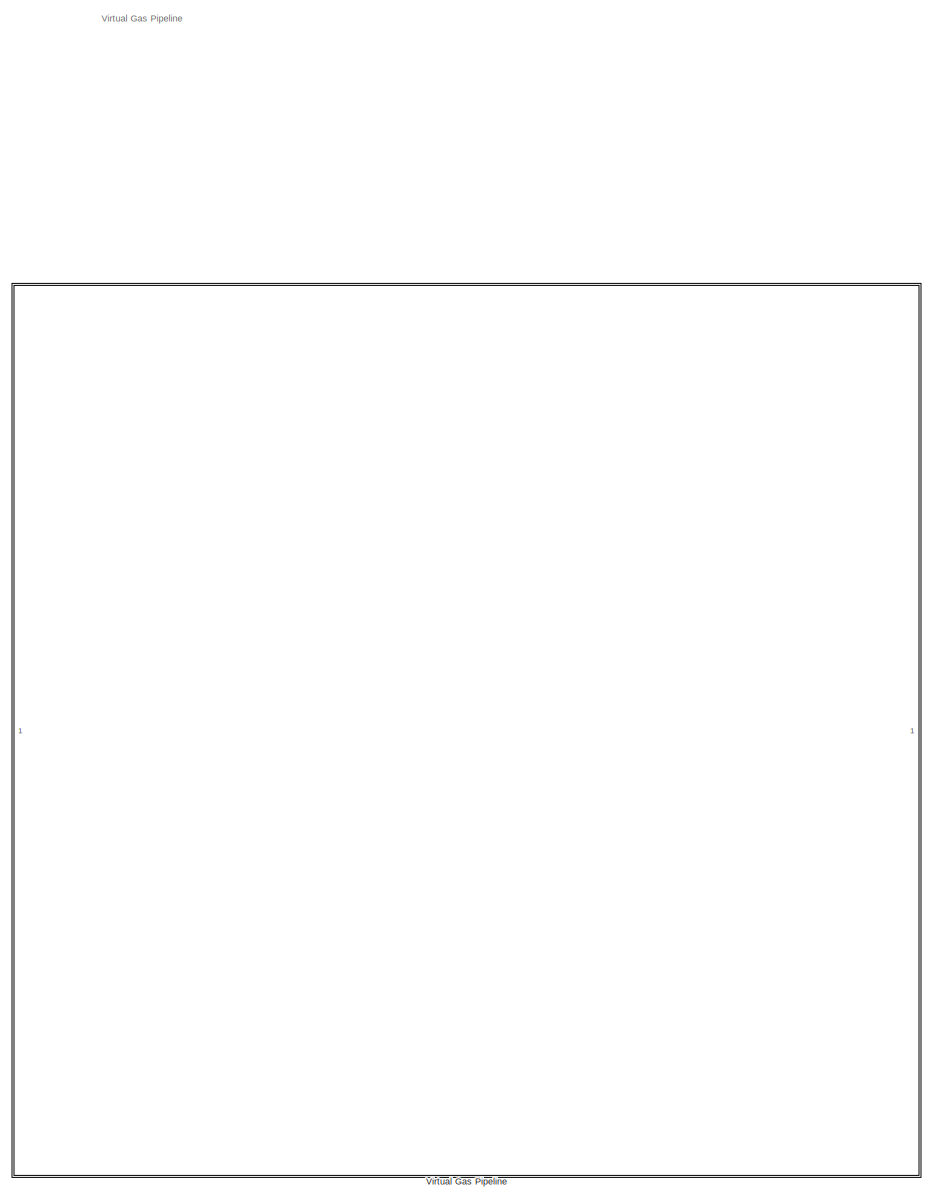
[diagram: root canvas - part 1/1, most of the canvas]
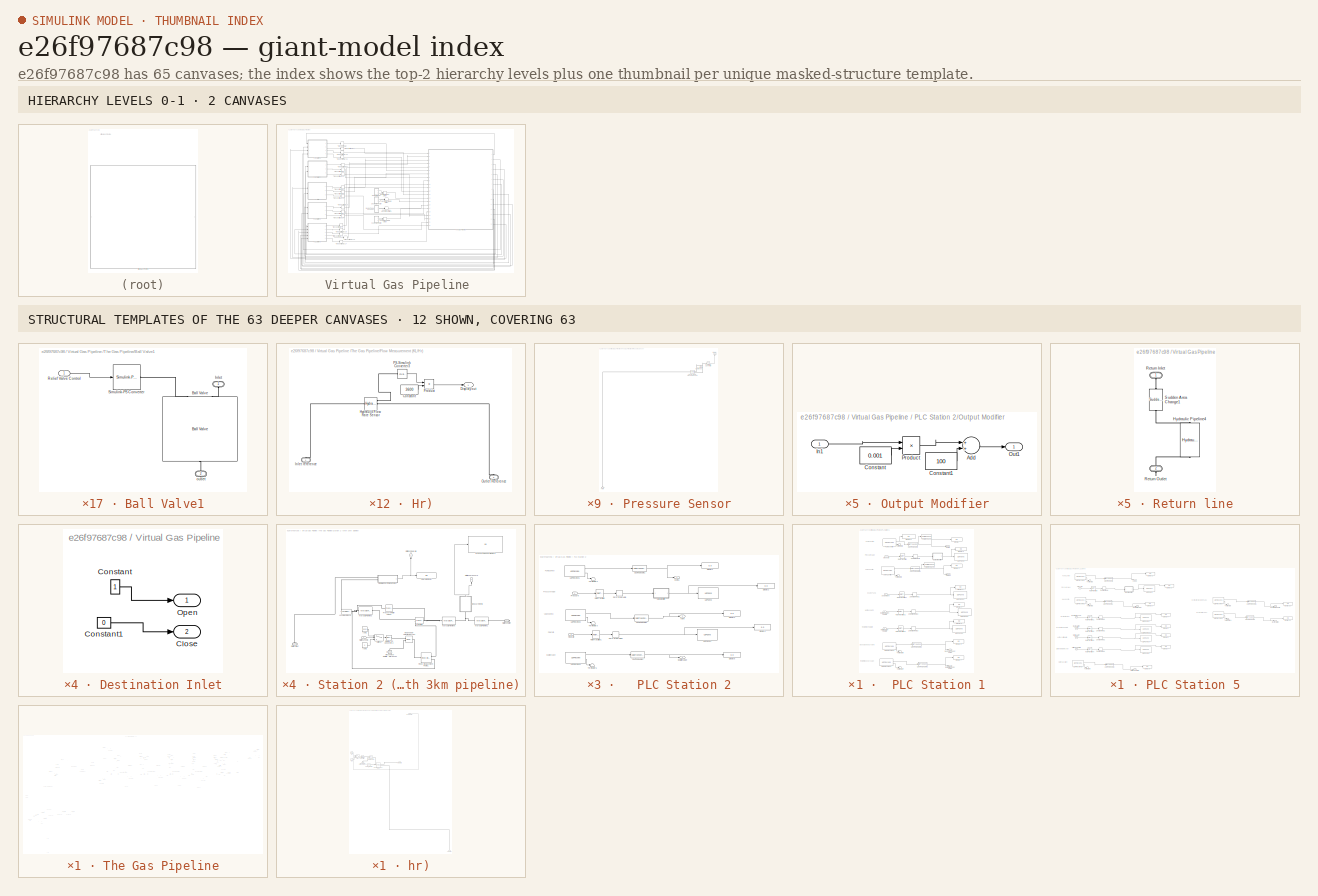
[diagram: thumbnail index - top-2 hierarchy levels (2 canvases) + 12 structural-template representatives of the remaining 63 canvases]
MODEL slx_e26f97687c98
KIND model
CONFIG AbsTol = auto
CONFIG EnableMultiTasking = on
CONFIG FixedStep = auto
CONFIG MaxStep = auto
CONFIG MinStep = auto
CONFIG RelTol = 1e-3
CONFIG SampleTimeConstraint = Unconstrained
CONFIG Solver = ode45
CONFIG SolverName = ode45
CONFIG StartTime = 0.0
CONFIG StopTime = inf
WORKSPACE source: mxarray member
WORKSPACE PLC_IP_Address = 'localhost'
BLOCK [SubSystem] Virtual Gas Pipeline 
  Ports = []
  RequestExecContextInheritance = off
BLOCK [SubSystem] Virtual Gas Pipeline /  PLC Station 2
  Ports = [2, 3]
  RequestExecContextInheritance = off
  TreatAsAtomicUnit = on
BLOCK [DataTypeConversion] Virtual Gas Pipeline /  PLC Station 2/Cast To Double1
  OutDataTypeStr = double
  RndMeth = Floor
  SaturateOnIntegerOverflow = off
BLOCK [DataTypeConversion] Virtual Gas Pipeline /  PLC Station 2/Cast To Double2
  OutDataTypeStr = double
  RndMeth = Floor
  SaturateOnIntegerOverflow = off
BLOCK [DataTypeConversion] Virtual Gas Pipeline /  PLC Station 2/Cast To Double3
  OutDataTypeStr = double
  RndMeth = Floor
  SaturateOnIntegerOverflow = off
BLOCK [Display] Virtual Gas Pipeline /  PLC Station 2/Display1
  Decimation = 1
  Ports = [1]
BLOCK [Display] Virtual Gas Pipeline /  PLC Station 2/Display2
  Decimation = 1
  Ports = [1]
BLOCK [Display] Virtual Gas Pipeline /  PLC Station 2/Display3
  Decimation = 1
  Ports = [1]
BLOCK [Display] Virtual Gas Pipeline /  PLC Station 2/Display4
  Decimation = 1
  Ports = [1]
BLOCK [Display] Virtual Gas Pipeline /  PLC Station 2/Display5
  Decimation = 1
  Ports = [1]
BLOCK [Inport] Virtual Gas Pipeline /  PLC Station 2/Flowrate
  IconDisplay = Port number
  Port = 2
BLOCK [Outport] Virtual Gas Pipeline /  PLC Station 2/Isolation Valve
  IconDisplay = Port number
  Port = 3
  PortDimensions = 1
  VarSizeSig = No
BLOCK [SubSystem] Virtual Gas Pipeline /  PLC Station 2/Output Modifier
  Ports = [1, 1]
  RequestExecContextInheritance = off
BLOCK [Sum] Virtual Gas Pipeline /  PLC Station 2/Output Modifier/Add
  InputSameDT = off
  OutDataTypeStr = Inherit: Inherit via internal rule
  Ports = [2, 1]
  SaturateOnIntegerOverflow = off
BLOCK [Constant] Virtual Gas Pipeline /  PLC Station 2/Output Modifier/Constant
  Value = 0.001
BLOCK [Constant] Virtual Gas Pipeline /  PLC Station 2/Output Modifier/Constant1
  Value = 100
BLOCK [Inport] Virtual Gas Pipeline /  PLC Station 2/Output Modifier/In1
  IconDisplay = Port number
BLOCK [Outport] Virtual Gas Pipeline /  PLC Station 2/Output Modifier/Out1
  IconDisplay = Port number
BLOCK [Product] Virtual Gas Pipeline /  PLC Station 2/Output Modifier/Product
  InputSameDT = off
  OutDataTypeStr = Inherit: Inherit via internal rule
  Ports = [2, 1]
  RndMeth = Floor
  SaturateOnIntegerOverflow = off
BLOCK [Inport] Virtual Gas Pipeline /  PLC Station 2/Pressure
  IconDisplay = Port number
BLOCK [RateTransition] Virtual Gas Pipeline /  PLC Station 2/Rate Transition
BLOCK [RateTransition] Virtual Gas Pipeline /  PLC Station 2/Rate Transition1
BLOCK [Terminator] Virtual Gas Pipeline /  PLC Station 2/Terminator2
BLOCK [Terminator] Virtual Gas Pipeline /  PLC Station 2/Terminator3
BLOCK [Terminator] Virtual Gas Pipeline /  PLC Station 2/Terminator5
BLOCK [Reference] Virtual Gas Pipeline /  PLC Station 2/UDP Receive 1  REF=dspnetwork/UDP Receive
  Ports = [0, 2]
  SourceBlock = dspnetwork/UDP Receive
  SourceProductBaseCode = SL
  SourceProductName = Simulink
  SourceType = UDP Receive
BLOCK [Reference] Virtual Gas Pipeline /  PLC Station 2/UDP Receive 2  REF=dspnetwork/UDP Receive
  Ports = [0, 2]
  SourceBlock = dspnetwork/UDP Receive
  SourceProductBaseCode = SL
  SourceProductName = Simulink
  SourceType = UDP Receive
BLOCK [Reference] Virtual Gas Pipeline /  PLC Station 2/UDP Receive 3  REF=dspnetwork/UDP Receive
  Ports = [0, 2]
  SourceBlock = dspnetwork/UDP Receive
  SourceProductBaseCode = SL
  SourceProductName = Simulink
  SourceType = UDP Receive
BLOCK [Reference] Virtual Gas Pipeline /  PLC Station 2/UDP Send  REF=dspnetwork/UDP Send
  Ports = [1]
  SourceBlock = dspnetwork/UDP Send
  SourceProductBaseCode = SL
  SourceProductName = Simulink
  SourceType = UDP Send
BLOCK [Reference] Virtual Gas Pipeline /  PLC Station 2/UDP Send1  REF=dspnetwork/UDP Send
  Ports = [1]
  SourceBlock = dspnetwork/UDP Send
  SourceProductBaseCode = SL
  SourceProductName = Simulink
  SourceType = UDP Send
BLOCK [ZeroOrderHold] Virtual Gas Pipeline /  PLC Station 2/Zero-Order Hold
  SampleTime = 0.1
BLOCK [ZeroOrderHold] Virtual Gas Pipeline /  PLC Station 2/Zero-Order Hold1
  SampleTime = 0.1
BLOCK [Outport] Virtual Gas Pipeline /  PLC Station 2/pump 1
  IconDisplay = Port number
  PortDimensions = 1
  VarSizeSig = No
BLOCK [Outport] Virtual Gas Pipeline /  PLC Station 2/valve
  IconDisplay = Port number
  Port = 2
  PortDimensions = 1
  VarSizeSig = No
BLOCK [SubSystem] Virtual Gas Pipeline / PLC Station 1
  Ports = [4, 4]
  RequestExecContextInheritance = off
  TreatAsAtomicUnit = on
BLOCK [DataTypeConversion] Virtual Gas Pipeline / PLC Station 1/Cast To Double
  OutDataTypeStr = double
  RndMeth = Floor
  SaturateOnIntegerOverflow = off
BLOCK [DataTypeConversion] Virtual Gas Pipeline / PLC Station 1/Cast To Double1
  OutDataTypeStr = double
  RndMeth = Floor
  SaturateOnIntegerOverflow = off
BLOCK [DataTypeConversion] Virtual Gas Pipeline / PLC Station 1/Cast To Double2
  OutDataTypeStr = double
  RndMeth = Floor
  SaturateOnIntegerOverflow = off
BLOCK [DataTypeConversion] Virtual Gas Pipeline / PLC Station 1/Cast To Double3
  OutDataTypeStr = double
  RndMeth = Floor
  SaturateOnIntegerOverflow = off
BLOCK [Outport] Virtual Gas Pipeline / PLC Station 1/Despatch body valve
  IconDisplay = Port number
  Port = 3
  PortDimensions = 1
  VarSizeSig = No
BLOCK [Display] Virtual Gas Pipeline / PLC Station 1/Display
  Decimation = 1
  Ports = [1]
BLOCK [Display] Virtual Gas Pipeline / PLC Station 1/Display1
  Decimation = 1
  Ports = [1]
BLOCK [Display] Virtual Gas Pipeline / PLC Station 1/Display2
  Decimation = 1
  Ports = [1]
BLOCK [Display] Virtual Gas Pipeline / PLC Station 1/Display3
  Decimation = 1
  Ports = [1]
BLOCK [Display] Virtual Gas Pipeline / PLC Station 1/Display4
  Decimation = 1
  Ports = [1]
BLOCK [Display] Virtual Gas Pipeline / PLC Station 1/Display5
  Decimation = 1
  Ports = [1]
BLOCK [Display] Virtual Gas Pipeline / PLC Station 1/Display6
  Decimation = 1
  Ports = [1]
BLOCK [Display] Virtual Gas Pipeline / PLC Station 1/Display7
  Decimation = 1
  Ports = [1]
BLOCK [Display] Virtual Gas Pipeline / PLC Station 1/Display8
  Decimation = 1
  Ports = [1]
BLOCK [Inport] Virtual Gas Pipeline / PLC Station 1/Net Despatch Flowrate
  IconDisplay = Port number
  Port = 3
BLOCK [Inport] Virtual Gas Pipeline / PLC Station 1/Net Receipt Flowrate
  IconDisplay = Port number
  Port = 4
BLOCK [SubSystem] Virtual Gas Pipeline / PLC Station 1/Output Modifier
  Ports = [1, 1]
  RequestExecContextInheritance = off
BLOCK [Sum] Virtual Gas Pipeline / PLC Station 1/Output Modifier/Add
  InputSameDT = off
  OutDataTypeStr = Inherit: Inherit via internal rule
  Ports = [2, 1]
  SaturateOnIntegerOverflow = off
BLOCK [Constant] Virtual Gas Pipeline / PLC Station 1/Output Modifier/Constant
  Value = 0.001
BLOCK [Constant] Virtual Gas Pipeline / PLC Station 1/Output Modifier/Constant1
  Value = 100
BLOCK [Inport] Virtual Gas Pipeline / PLC Station 1/Output Modifier/In1
  IconDisplay = Port number
BLOCK [Outport] Virtual Gas Pipeline / PLC Station 1/Output Modifier/Out1
  IconDisplay = Port number
BLOCK [Product] Virtual Gas Pipeline / PLC Station 1/Output Modifier/Product
  InputSameDT = off
  OutDataTypeStr = Inherit: Inherit via internal rule
  Ports = [2, 1]
  RndMeth = Floor
  SaturateOnIntegerOverflow = off
BLOCK [Reference] Virtual Gas Pipeline / PLC Station 1/Pump control  REF=dspnetwork/UDP Receive
  Ports = [0, 2]
  SourceBlock = dspnetwork/UDP Receive
  SourceProductBaseCode = SL
  SourceProductName = Simulink
  SourceType = UDP Receive
BLOCK [RateTransition] Virtual Gas Pipeline / PLC Station 1/Rate Transition
BLOCK [RateTransition] Virtual Gas Pipeline / PLC Station 1/Rate Transition1
BLOCK [RateTransition] Virtual Gas Pipeline / PLC Station 1/Rate Transition2
BLOCK [RateTransition] Virtual Gas Pipeline / PLC Station 1/Rate Transition3
BLOCK [Outport] Virtual Gas Pipeline / PLC Station 1/Returnline body valve
  IconDisplay = Port number
  Port = 4
  PortDimensions = 1
  VarSizeSig = No
BLOCK [Inport] Virtual Gas Pipeline / PLC Station 1/Source tank
  IconDisplay = Port number
  Port = 2
BLOCK [Terminator] Virtual Gas Pipeline / PLC Station 1/Terminator3
BLOCK [Terminator] Virtual Gas Pipeline / PLC Station 1/Terminator5
BLOCK [Terminator] Virtual Gas Pipeline / PLC Station 1/Terminator7
BLOCK [Terminator] Virtual Gas Pipeline / PLC Station 1/Terminator8
BLOCK [ToWorkspace] Virtual Gas Pipeline / PLC Station 1/To Workspace
  FixptAsFi = on
  MaxDataPoints = inf
  Ports = [1]
  SampleTime = -1
  SaveFormat = Timeseries
  VariableName = pumpControl_1
BLOCK [ToWorkspace] Virtual Gas Pipeline / PLC Station 1/To Workspace1
  FixptAsFi = on
  MaxDataPoints = inf
  Ports = [1]
  SampleTime = -1
  SaveFormat = Timeseries
  VariableName = valveControl_1
BLOCK [Reference] Virtual Gas Pipeline / PLC Station 1/UDP Receive 3  REF=dspnetwork/UDP Receive
  Ports = [0, 2]
  SourceBlock = dspnetwork/UDP Receive
  SourceProductBaseCode = SL
  SourceProductName = Simulink
  SourceType = UDP Receive
BLOCK [Reference] Virtual Gas Pipeline / PLC Station 1/UDP Receive 4  REF=dspnetwork/UDP Receive
  Ports = [0, 2]
  SourceBlock = dspnetwork/UDP Receive
  SourceProductBaseCode = SL
  SourceProductName = Simulink
  SourceType = UDP Receive
BLOCK [Reference] Virtual Gas Pipeline / PLC Station 1/UDP Send  REF=dspnetwork/UDP Send
  Ports = [1]
  SourceBlock = dspnetwork/UDP Send
  SourceProductBaseCode = SL
  SourceProductName = Simulink
  SourceType = UDP Send
BLOCK [Reference] Virtual Gas Pipeline / PLC Station 1/UDP Send1  REF=dspnetwork/UDP Send
  Ports = [1]
  SourceBlock = dspnetwork/UDP Send
  SourceProductBaseCode = SL
  SourceProductName = Simulink
  SourceType = UDP Send
BLOCK [Reference] Virtual Gas Pipeline / PLC Station 1/UDP Send2  REF=dspnetwork/UDP Send
  Ports = [1]
  SourceBlock = dspnetwork/UDP Send
  SourceProductBaseCode = SL
  SourceProductName = Simulink
  SourceType = UDP Send
BLOCK [Reference] Virtual Gas Pipeline / PLC Station 1/UDP Send3  REF=dspnetwork/UDP Send
  Ports = [1]
  SourceBlock = dspnetwork/UDP Send
  SourceProductBaseCode = SL
  SourceProductName = Simulink
  SourceType = UDP Send
BLOCK [Reference] Virtual Gas Pipeline / PLC Station 1/Valve Control  REF=dspnetwork/UDP Receive
  Ports = [0, 2]
  SourceBlock = dspnetwork/UDP Receive
  SourceProductBaseCode = SL
  SourceProductName = Simulink
  SourceType = UDP Receive
BLOCK [Outport] Virtual Gas Pipeline / PLC Station 1/Valve1
  IconDisplay = Port number
  PortDimensions = 1
  VarSizeSig = No
BLOCK [ZeroOrderHold] Virtual Gas Pipeline / PLC Station 1/Zero-Order Hold
  SampleTime = 0.1
BLOCK [ZeroOrderHold] Virtual Gas Pipeline / PLC Station 1/Zero-Order Hold1
  SampleTime = 0.1
BLOCK [ZeroOrderHold] Virtual Gas Pipeline / PLC Station 1/Zero-Order Hold2
  SampleTime = 0.1
BLOCK [ZeroOrderHold] Virtual Gas Pipeline / PLC Station 1/Zero-Order Hold3
  SampleTime = 0.1
BLOCK [Inport] Virtual Gas Pipeline / PLC Station 1/pressure
  IconDisplay = Port number
BLOCK [Outport] Virtual Gas Pipeline / PLC Station 1/pump 
  IconDisplay = Port number
  Port = 2
  PortDimensions = 1
  VarSizeSig = No
BLOCK [SubSystem] Virtual Gas Pipeline /Destination Inlet
  Ports = [0, 2]
  RequestExecContextInheritance = off
BLOCK [ManualSwitch] Virtual Gas Pipeline /Destination Inlet Switch
BLOCK [Outport] Virtual Gas Pipeline /Destination Inlet/Close 
  IconDisplay = Port number
  Port = 2
BLOCK [Constant] Virtual Gas Pipeline /Destination Inlet/Constant
BLOCK [Constant] Virtual Gas Pipeline /Destination Inlet/Constant1
  Value = 0
BLOCK [Outport] Virtual Gas Pipeline /Destination Inlet/Open
  IconDisplay = Port number
BLOCK [SubSystem] Virtual Gas Pipeline /Destination Return
  Ports = [0, 2]
  RequestExecContextInheritance = off
BLOCK [ManualSwitch] Virtual Gas Pipeline /Destination Return Switch
  CurrentSetting = 0
BLOCK [Outport] Virtual Gas Pipeline /Destination Return/Close
  IconDisplay = Port number
  Port = 2
BLOCK [Constant] Virtual Gas Pipeline /Destination Return/Constant
BLOCK [Constant] Virtual Gas Pipeline /Destination Return/Constant1
  Value = 0
BLOCK [Outport] Virtual Gas Pipeline /Destination Return/Open
  IconDisplay = Port number
BLOCK [SubSystem] Virtual Gas Pipeline /PLC Station 3
  Ports = [2, 3]
  RequestExecContextInheritance = off
  TreatAsAtomicUnit = on
BLOCK [DataTypeConversion] Virtual Gas Pipeline /PLC Station 3/Cast To Double
  OutDataTypeStr = double
  RndMeth = Floor
  SaturateOnIntegerOverflow = off
BLOCK [DataTypeConversion] Virtual Gas Pipeline /PLC Station 3/Cast To Double1
  OutDataTypeStr = double
  RndMeth = Floor
  SaturateOnIntegerOverflow = off
BLOCK [DataTypeConversion] Virtual Gas Pipeline /PLC Station 3/Cast To Double2
  OutDataTypeStr = double
  RndMeth = Floor
  SaturateOnIntegerOverflow = off
BLOCK [Display] Virtual Gas Pipeline /PLC Station 3/Display1
  Decimation = 1
  Ports = [1]
BLOCK [Display] Virtual Gas Pipeline /PLC Station 3/Display2
  Decimation = 1
  Ports = [1]
BLOCK [Display] Virtual Gas Pipeline /PLC Station 3/Display3
  Decimation = 1
  Ports = [1]
BLOCK [Display] Virtual Gas Pipeline /PLC Station 3/Display4
  Decimation = 1
  Ports = [1]
BLOCK [Display] Virtual Gas Pipeline /PLC Station 3/Display5
  Decimation = 1
  Ports = [1]
BLOCK [Inport] Virtual Gas Pipeline /PLC Station 3/Flowrate
  IconDisplay = Port number
  Port = 2
BLOCK [Outport] Virtual Gas Pipeline /PLC Station 3/Isolation Valve
  IconDisplay = Port number
  Port = 3
  PortDimensions = 1
  VarSizeSig = No
BLOCK [SubSystem] Virtual Gas Pipeline /PLC Station 3/Output Modifier
  Ports = [1, 1]
  RequestExecContextInheritance = off
BLOCK [Sum] Virtual Gas Pipeline /PLC Station 3/Output Modifier/Add
  InputSameDT = off
  OutDataTypeStr = Inherit: Inherit via internal rule
  Ports = [2, 1]
  SaturateOnIntegerOverflow = off
BLOCK [Constant] Virtual Gas Pipeline /PLC Station 3/Output Modifier/Constant
  Value = 0.001
BLOCK [Constant] Virtual Gas Pipeline /PLC Station 3/Output Modifier/Constant1
  Value = 100
BLOCK [Inport] Virtual Gas Pipeline /PLC Station 3/Output Modifier/In1
  IconDisplay = Port number
BLOCK [Outport] Virtual Gas Pipeline /PLC Station 3/Output Modifier/Out1
  IconDisplay = Port number
BLOCK [Product] Virtual Gas Pipeline /PLC Station 3/Output Modifier/Product
  InputSameDT = off
  OutDataTypeStr = Inherit: Inherit via internal rule
  Ports = [2, 1]
  RndMeth = Floor
  SaturateOnIntegerOverflow = off
BLOCK [Inport] Virtual Gas Pipeline /PLC Station 3/Pressure 
  IconDisplay = Port number
BLOCK [RateTransition] Virtual Gas Pipeline /PLC Station 3/Rate Transition
BLOCK [RateTransition] Virtual Gas Pipeline /PLC Station 3/Rate Transition1
BLOCK [Terminator] Virtual Gas Pipeline /PLC Station 3/Terminator2
BLOCK [Terminator] Virtual Gas Pipeline /PLC Station 3/Terminator3
BLOCK [Terminator] Virtual Gas Pipeline /PLC Station 3/Terminator5
BLOCK [Reference] Virtual Gas Pipeline /PLC Station 3/UDP Receive 1  REF=dspnetwork/UDP Receive
  Ports = [0, 2]
  SourceBlock = dspnetwork/UDP Receive
  SourceProductBaseCode = SL
  SourceProductName = Simulink
  SourceType = UDP Receive
BLOCK [Reference] Virtual Gas Pipeline /PLC Station 3/UDP Receive 2  REF=dspnetwork/UDP Receive
  Ports = [0, 2]
  SourceBlock = dspnetwork/UDP Receive
  SourceProductBaseCode = SL
  SourceProductName = Simulink
  SourceType = UDP Receive
BLOCK [Reference] Virtual Gas Pipeline /PLC Station 3/UDP Receive 3  REF=dspnetwork/UDP Receive
  Ports = [0, 2]
  SourceBlock = dspnetwork/UDP Receive
  SourceProductBaseCode = SL
  SourceProductName = Simulink
  SourceType = UDP Receive
BLOCK [Reference] Virtual Gas Pipeline /PLC Station 3/UDP Send  REF=dspnetwork/UDP Send
  Ports = [1]
  SourceBlock = dspnetwork/UDP Send
  SourceProductBaseCode = SL
  SourceProductName = Simulink
  SourceType = UDP Send
BLOCK [Reference] Virtual Gas Pipeline /PLC Station 3/UDP Send1  REF=dspnetwork/UDP Send
  Ports = [1]
  SourceBlock = dspnetwork/UDP Send
  SourceProductBaseCode = SL
  SourceProductName = Simulink
  SourceType = UDP Send
BLOCK [Outport] Virtual Gas Pipeline /PLC Station 3/Valve
  IconDisplay = Port number
  Port = 2
  PortDimensions = 1
  VarSizeSig = No
BLOCK [ZeroOrderHold] Virtual Gas Pipeline /PLC Station 3/Zero-Order Hold
  SampleTime = 0.1
BLOCK [ZeroOrderHold] Virtual Gas Pipeline /PLC Station 3/Zero-Order Hold1
  SampleTime = 0.1
BLOCK [Outport] Virtual Gas Pipeline /PLC Station 3/pump 1
  IconDisplay = Port number
  PortDimensions = 1
  VarSizeSig = No
BLOCK [SubSystem] Virtual Gas Pipeline /PLC Station 4
  Ports = [2, 3]
  RequestExecContextInheritance = off
  TreatAsAtomicUnit = on
BLOCK [DataTypeConversion] Virtual Gas Pipeline /PLC Station 4/Cast To Double
  OutDataTypeStr = double
  RndMeth = Floor
  SaturateOnIntegerOverflow = off
BLOCK [DataTypeConversion] Virtual Gas Pipeline /PLC Station 4/Cast To Double1
  OutDataTypeStr = double
  RndMeth = Floor
  SaturateOnIntegerOverflow = off
BLOCK [DataTypeConversion] Virtual Gas Pipeline /PLC Station 4/Cast To Double2
  OutDataTypeStr = double
  RndMeth = Floor
  SaturateOnIntegerOverflow = off
BLOCK [Display] Virtual Gas Pipeline /PLC Station 4/Display1
  Decimation = 1
  Ports = [1]
BLOCK [Display] Virtual Gas Pipeline /PLC Station 4/Display2
  Decimation = 1
  Ports = [1]
BLOCK [Display] Virtual Gas Pipeline /PLC Station 4/Display3
  Decimation = 1
  Ports = [1]
BLOCK [Display] Virtual Gas Pipeline /PLC Station 4/Display4
  Decimation = 1
  Ports = [1]
BLOCK [Display] Virtual Gas Pipeline /PLC Station 4/Display5
  Decimation = 1
  Ports = [1]
BLOCK [Inport] Virtual Gas Pipeline /PLC Station 4/Flowrate
  IconDisplay = Port number
  Port = 2
BLOCK [Outport] Virtual Gas Pipeline /PLC Station 4/Isolation Valve
  IconDisplay = Port number
  Port = 3
  PortDimensions = 1
  VarSizeSig = No
BLOCK [SubSystem] Virtual Gas Pipeline /PLC Station 4/Output Modifier
  Ports = [1, 1]
  RequestExecContextInheritance = off
BLOCK [Sum] Virtual Gas Pipeline /PLC Station 4/Output Modifier/Add
  InputSameDT = off
  OutDataTypeStr = Inherit: Inherit via internal rule
  Ports = [2, 1]
  SaturateOnIntegerOverflow = off
BLOCK [Constant] Virtual Gas Pipeline /PLC Station 4/Output Modifier/Constant
  Value = 0.001
BLOCK [Constant] Virtual Gas Pipeline /PLC Station 4/Output Modifier/Constant1
  Value = 100
BLOCK [Inport] Virtual Gas Pipeline /PLC Station 4/Output Modifier/In1
  IconDisplay = Port number
BLOCK [Outport] Virtual Gas Pipeline /PLC Station 4/Output Modifier/Out1
  IconDisplay = Port number
BLOCK [Product] Virtual Gas Pipeline /PLC Station 4/Output Modifier/Product
  InputSameDT = off
  OutDataTypeStr = Inherit: Inherit via internal rule
  Ports = [2, 1]
  RndMeth = Floor
  SaturateOnIntegerOverflow = off
BLOCK [Inport] Virtual Gas Pipeline /PLC Station 4/Pressure 
  IconDisplay = Port number
BLOCK [RateTransition] Virtual Gas Pipeline /PLC Station 4/Rate Transition
BLOCK [RateTransition] Virtual Gas Pipeline /PLC Station 4/Rate Transition1
BLOCK [Terminator] Virtual Gas Pipeline /PLC Station 4/Terminator2
BLOCK [Terminator] Virtual Gas Pipeline /PLC Station 4/Terminator3
BLOCK [Terminator] Virtual Gas Pipeline /PLC Station 4/Terminator5
BLOCK [Reference] Virtual Gas Pipeline /PLC Station 4/UDP Receive 1  REF=dspnetwork/UDP Receive
  Ports = [0, 2]
  SourceBlock = dspnetwork/UDP Receive
  SourceProductBaseCode = SL
  SourceProductName = Simulink
  SourceType = UDP Receive
BLOCK [Reference] Virtual Gas Pipeline /PLC Station 4/UDP Receive 2  REF=dspnetwork/UDP Receive
  Ports = [0, 2]
  SourceBlock = dspnetwork/UDP Receive
  SourceProductBaseCode = SL
  SourceProductName = Simulink
  SourceType = UDP Receive
BLOCK [Reference] Virtual Gas Pipeline /PLC Station 4/UDP Receive 3  REF=dspnetwork/UDP Receive
  Ports = [0, 2]
  SourceBlock = dspnetwork/UDP Receive
  SourceProductBaseCode = SL
  SourceProductName = Simulink
  SourceType = UDP Receive
BLOCK [Reference] Virtual Gas Pipeline /PLC Station 4/UDP Send  REF=dspnetwork/UDP Send
  Ports = [1]
  SourceBlock = dspnetwork/UDP Send
  SourceProductBaseCode = SL
  SourceProductName = Simulink
  SourceType = UDP Send
BLOCK [Reference] Virtual Gas Pipeline /PLC Station 4/UDP Send1  REF=dspnetwork/UDP Send
  Ports = [1]
  SourceBlock = dspnetwork/UDP Send
  SourceProductBaseCode = SL
  SourceProductName = Simulink
  SourceType = UDP Send
BLOCK [Outport] Virtual Gas Pipeline /PLC Station 4/Valve
  IconDisplay = Port number
  Port = 2
  PortDimensions = 1
  VarSizeSig = No
BLOCK [ZeroOrderHold] Virtual Gas Pipeline /PLC Station 4/Zero-Order Hold
  SampleTime = 0.1
BLOCK [ZeroOrderHold] Virtual Gas Pipeline /PLC Station 4/Zero-Order Hold1
  SampleTime = 0.1
BLOCK [Outport] Virtual Gas Pipeline /PLC Station 4/pump 1
  IconDisplay = Port number
  PortDimensions = 1
  VarSizeSig = No
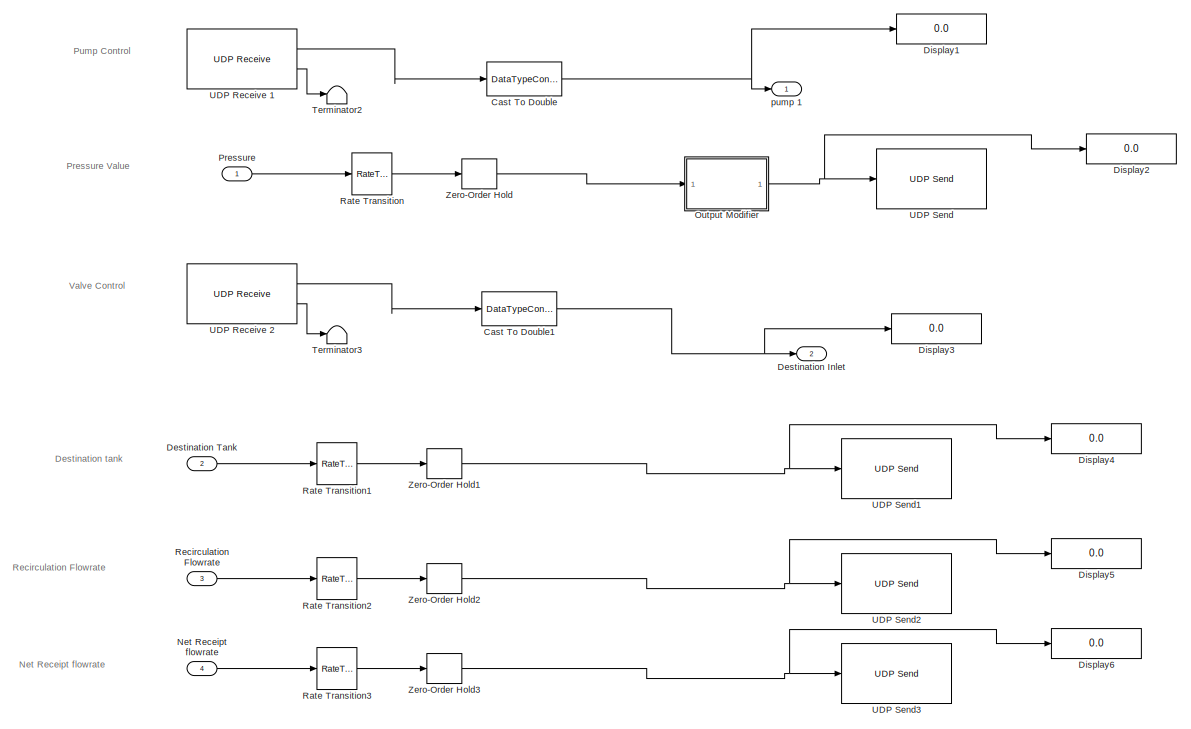
[diagram: Virtual Gas Pipeline /PLC Station 5 - part 1/3, middle left region]
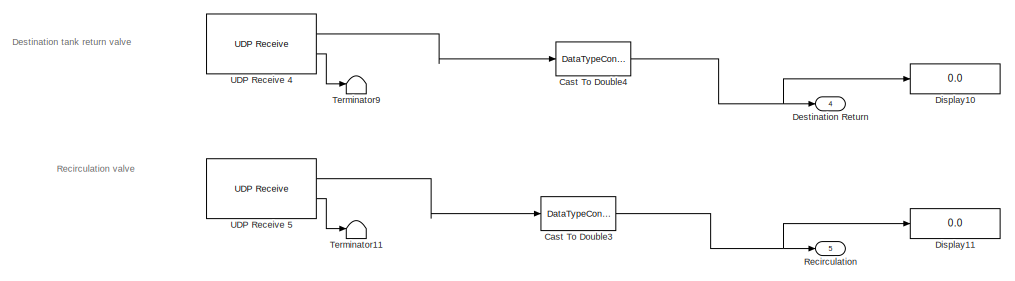
[diagram: Virtual Gas Pipeline /PLC Station 5 - part 2/3, middle right region]
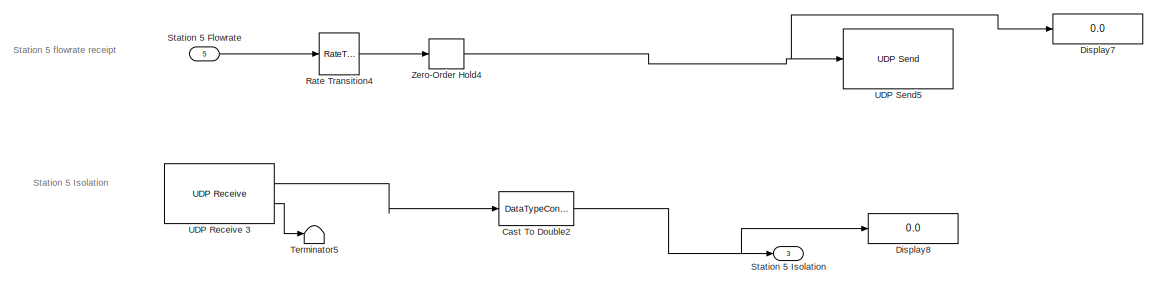
[diagram: Virtual Gas Pipeline /PLC Station 5 - part 3/3, bottom left region]
BLOCK [SubSystem] Virtual Gas Pipeline /PLC Station 5
  Ports = [5, 5]
  RequestExecContextInheritance = off
  TreatAsAtomicUnit = on
BLOCK [DataTypeConversion] Virtual Gas Pipeline /PLC Station 5/Cast To Double
  OutDataTypeStr = double
  RndMeth = Floor
  SaturateOnIntegerOverflow = off
BLOCK [DataTypeConversion] Virtual Gas Pipeline /PLC Station 5/Cast To Double1
  OutDataTypeStr = double
  RndMeth = Floor
  SaturateOnIntegerOverflow = off
BLOCK [DataTypeConversion] Virtual Gas Pipeline /PLC Station 5/Cast To Double2
  OutDataTypeStr = double
  RndMeth = Floor
  SaturateOnIntegerOverflow = off
BLOCK [DataTypeConversion] Virtual Gas Pipeline /PLC Station 5/Cast To Double3
  OutDataTypeStr = double
  RndMeth = Floor
  SaturateOnIntegerOverflow = off
BLOCK [DataTypeConversion] Virtual Gas Pipeline /PLC Station 5/Cast To Double4
  OutDataTypeStr = double
  RndMeth = Floor
  SaturateOnIntegerOverflow = off
BLOCK [Outport] Virtual Gas Pipeline /PLC Station 5/Destination Inlet
  IconDisplay = Port number
  Port = 2
  PortDimensions = 1
  VarSizeSig = No
BLOCK [Outport] Virtual Gas Pipeline /PLC Station 5/Destination Return
  IconDisplay = Port number
  Port = 4
  PortDimensions = 1
  VarSizeSig = No
BLOCK [Inport] Virtual Gas Pipeline /PLC Station 5/Destination Tank
  IconDisplay = Port number
  Port = 2
BLOCK [Display] Virtual Gas Pipeline /PLC Station 5/Display1
  Decimation = 1
  Ports = [1]
BLOCK [Display] Virtual Gas Pipeline /PLC Station 5/Display10
  Decimation = 1
  Ports = [1]
BLOCK [Display] Virtual Gas Pipeline /PLC Station 5/Display11
  Decimation = 1
  Ports = [1]
BLOCK [Display] Virtual Gas Pipeline /PLC Station 5/Display2
  Decimation = 1
  Ports = [1]
BLOCK [Display] Virtual Gas Pipeline /PLC Station 5/Display3
  Decimation = 1
  Ports = [1]
BLOCK [Display] Virtual Gas Pipeline /PLC Station 5/Display4
  Decimation = 1
  Ports = [1]
BLOCK [Display] Virtual Gas Pipeline /PLC Station 5/Display5
  Decimation = 1
  Ports = [1]
BLOCK [Display] Virtual Gas Pipeline /PLC Station 5/Display6
  Decimation = 1
  Ports = [1]
BLOCK [Display] Virtual Gas Pipeline /PLC Station 5/Display7
  Decimation = 1
  Ports = [1]
BLOCK [Display] Virtual Gas Pipeline /PLC Station 5/Display8
  Decimation = 1
  Ports = [1]
BLOCK [Inport] Virtual Gas Pipeline /PLC Station 5/Net Receipt flowrate
  IconDisplay = Port number
  Port = 4
BLOCK [SubSystem] Virtual Gas Pipeline /PLC Station 5/Output Modifier
  Ports = [1, 1]
  RequestExecContextInheritance = off
BLOCK [Sum] Virtual Gas Pipeline /PLC Station 5/Output Modifier/Add
  InputSameDT = off
  OutDataTypeStr = Inherit: Inherit via internal rule
  Ports = [2, 1]
  SaturateOnIntegerOverflow = off
BLOCK [Constant] Virtual Gas Pipeline /PLC Station 5/Output Modifier/Constant
  Value = 0.001
BLOCK [Constant] Virtual Gas Pipeline /PLC Station 5/Output Modifier/Constant1
  Value = 100
BLOCK [Inport] Virtual Gas Pipeline /PLC Station 5/Output Modifier/In1
  IconDisplay = Port number
BLOCK [Outport] Virtual Gas Pipeline /PLC Station 5/Output Modifier/Out1
  IconDisplay = Port number
BLOCK [Product] Virtual Gas Pipeline /PLC Station 5/Output Modifier/Product
  InputSameDT = off
  OutDataTypeStr = Inherit: Inherit via internal rule
  Ports = [2, 1]
  RndMeth = Floor
  SaturateOnIntegerOverflow = off
BLOCK [Inport] Virtual Gas Pipeline /PLC Station 5/Pressure 
  IconDisplay = Port number
BLOCK [RateTransition] Virtual Gas Pipeline /PLC Station 5/Rate Transition
BLOCK [RateTransition] Virtual Gas Pipeline /PLC Station 5/Rate Transition1
BLOCK [RateTransition] Virtual Gas Pipeline /PLC Station 5/Rate Transition2
BLOCK [RateTransition] Virtual Gas Pipeline /PLC Station 5/Rate Transition3
BLOCK [RateTransition] Virtual Gas Pipeline /PLC Station 5/Rate Transition4
BLOCK [Outport] Virtual Gas Pipeline /PLC Station 5/Recirculation
  IconDisplay = Port number
  Port = 5
  PortDimensions = 1
  VarSizeSig = No
BLOCK [Inport] Virtual Gas Pipeline /PLC Station 5/Recirculation Flowrate
  IconDisplay = Port number
  Port = 3
BLOCK [Inport] Virtual Gas Pipeline /PLC Station 5/Station 5 Flowrate
  IconDisplay = Port number
  Port = 5
BLOCK [Outport] Virtual Gas Pipeline /PLC Station 5/Station 5 Isolation
  IconDisplay = Port number
  Port = 3
  PortDimensions = 1
  VarSizeSig = No
BLOCK [Terminator] Virtual Gas Pipeline /PLC Station 5/Terminator11
BLOCK [Terminator] Virtual Gas Pipeline /PLC Station 5/Terminator2
BLOCK [Terminator] Virtual Gas Pipeline /PLC Station 5/Terminator3
BLOCK [Terminator] Virtual Gas Pipeline /PLC Station 5/Terminator5
BLOCK [Terminator] Virtual Gas Pipeline /PLC Station 5/Terminator9
BLOCK [Reference] Virtual Gas Pipeline /PLC Station 5/UDP Receive 1  REF=dspnetwork/UDP Receive
  Ports = [0, 2]
  SourceBlock = dspnetwork/UDP Receive
  SourceProductBaseCode = SL
  SourceProductName = Simulink
  SourceType = UDP Receive
BLOCK [Reference] Virtual Gas Pipeline /PLC Station 5/UDP Receive 2  REF=dspnetwork/UDP Receive
  Ports = [0, 2]
  SourceBlock = dspnetwork/UDP Receive
  SourceProductBaseCode = SL
  SourceProductName = Simulink
  SourceType = UDP Receive
BLOCK [Reference] Virtual Gas Pipeline /PLC Station 5/UDP Receive 3  REF=dspnetwork/UDP Receive
  Ports = [0, 2]
  SourceBlock = dspnetwork/UDP Receive
  SourceProductBaseCode = SL
  SourceProductName = Simulink
  SourceType = UDP Receive
BLOCK [Reference] Virtual Gas Pipeline /PLC Station 5/UDP Receive 4  REF=dspnetwork/UDP Receive
  Ports = [0, 2]
  SourceBlock = dspnetwork/UDP Receive
  SourceProductBaseCode = SL
  SourceProductName = Simulink
  SourceType = UDP Receive
BLOCK [Reference] Virtual Gas Pipeline /PLC Station 5/UDP Receive 5  REF=dspnetwork/UDP Receive
  Ports = [0, 2]
  SourceBlock = dspnetwork/UDP Receive
  SourceProductBaseCode = SL
  SourceProductName = Simulink
  SourceType = UDP Receive
BLOCK [Reference] Virtual Gas Pipeline /PLC Station 5/UDP Send  REF=dspnetwork/UDP Send
  Ports = [1]
  SourceBlock = dspnetwork/UDP Send
  SourceProductBaseCode = SL
  SourceProductName = Simulink
  SourceType = UDP Send
BLOCK [Reference] Virtual Gas Pipeline /PLC Station 5/UDP Send1  REF=dspnetwork/UDP Send
  Ports = [1]
  SourceBlock = dspnetwork/UDP Send
  SourceProductBaseCode = SL
  SourceProductName = Simulink
  SourceType = UDP Send
BLOCK [Reference] Virtual Gas Pipeline /PLC Station 5/UDP Send2  REF=dspnetwork/UDP Send
  Ports = [1]
  SourceBlock = dspnetwork/UDP Send
  SourceProductBaseCode = SL
  SourceProductName = Simulink
  SourceType = UDP Send
BLOCK [Reference] Virtual Gas Pipeline /PLC Station 5/UDP Send3  REF=dspnetwork/UDP Send
  Ports = [1]
  SourceBlock = dspnetwork/UDP Send
  SourceProductBaseCode = SL
  SourceProductName = Simulink
  SourceType = UDP Send
BLOCK [Reference] Virtual Gas Pipeline /PLC Station 5/UDP Send5  REF=dspnetwork/UDP Send
  Ports = [1]
  SourceBlock = dspnetwork/UDP Send
  SourceProductBaseCode = SL
  SourceProductName = Simulink
  SourceType = UDP Send
BLOCK [ZeroOrderHold] Virtual Gas Pipeline /PLC Station 5/Zero-Order Hold
  SampleTime = 0.1
BLOCK [ZeroOrderHold] Virtual Gas Pipeline /PLC Station 5/Zero-Order Hold1
  SampleTime = 0.1
BLOCK [ZeroOrderHold] Virtual Gas Pipeline /PLC Station 5/Zero-Order Hold2
  SampleTime = 0.1
BLOCK [ZeroOrderHold] Virtual Gas Pipeline /PLC Station 5/Zero-Order Hold3
  SampleTime = 0.1
BLOCK [ZeroOrderHold] Virtual Gas Pipeline /PLC Station 5/Zero-Order Hold4
  SampleTime = 0.1
BLOCK [Outport] Virtual Gas Pipeline /PLC Station 5/pump 1
  IconDisplay = Port number
  PortDimensions = 1
  VarSizeSig = No
BLOCK [SubSystem] Virtual Gas Pipeline /Source Tank despatch
  Ports = [0, 2]
  RequestExecContextInheritance = off
BLOCK [ManualSwitch] Virtual Gas Pipeline /Source Tank despatch switch
BLOCK [Outport] Virtual Gas Pipeline /Source Tank despatch/Close
  IconDisplay = Port number
  Port = 2
BLOCK [Constant] Virtual Gas Pipeline /Source Tank despatch/Constant
BLOCK [Constant] Virtual Gas Pipeline /Source Tank despatch/Constant1
  Value = 0
BLOCK [Outport] Virtual Gas Pipeline /Source Tank despatch/Open
  IconDisplay = Port number
BLOCK [SubSystem] Virtual Gas Pipeline /Source tank return 
  Ports = [0, 2]
  RequestExecContextInheritance = off
BLOCK [Outport] Virtual Gas Pipeline /Source tank return /Close
  IconDisplay = Port number
  Port = 2
BLOCK [Constant] Virtual Gas Pipeline /Source tank return /Constant
BLOCK [Constant] Virtual Gas Pipeline /Source tank return /Constant1
  Value = 0
BLOCK [Outport] Virtual Gas Pipeline /Source tank return /Open
  IconDisplay = Port number
BLOCK [ManualSwitch] Virtual Gas Pipeline /Source tank return switch
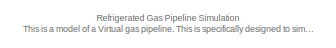
[diagram: Virtual Gas Pipeline /The Gas Pipeline - part 1/10, top center region]
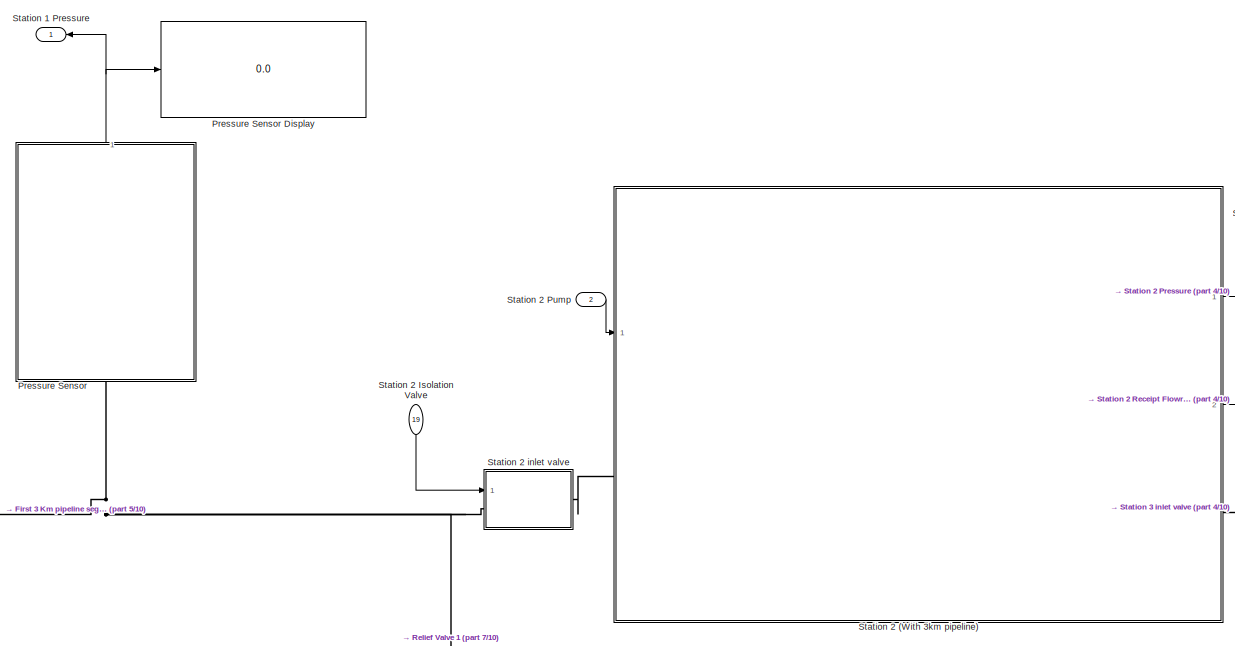
[diagram: Virtual Gas Pipeline /The Gas Pipeline - part 2/10, top center region]
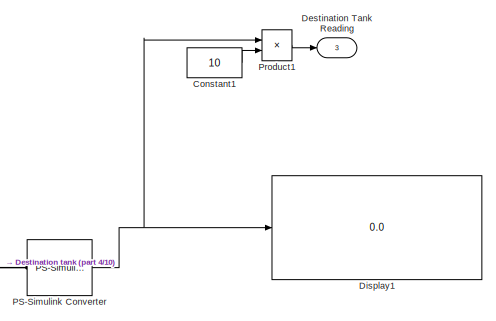
[diagram: Virtual Gas Pipeline /The Gas Pipeline - part 3/10, top right region]
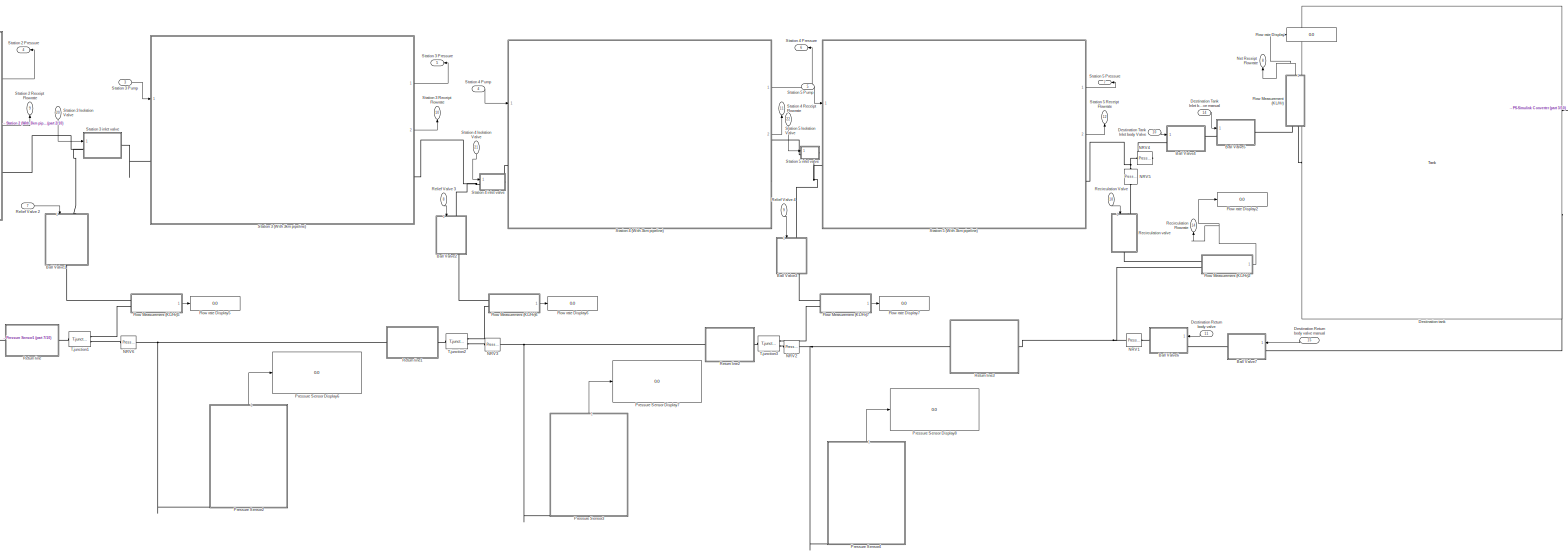
[diagram: Virtual Gas Pipeline /The Gas Pipeline - part 4/10, top right region]
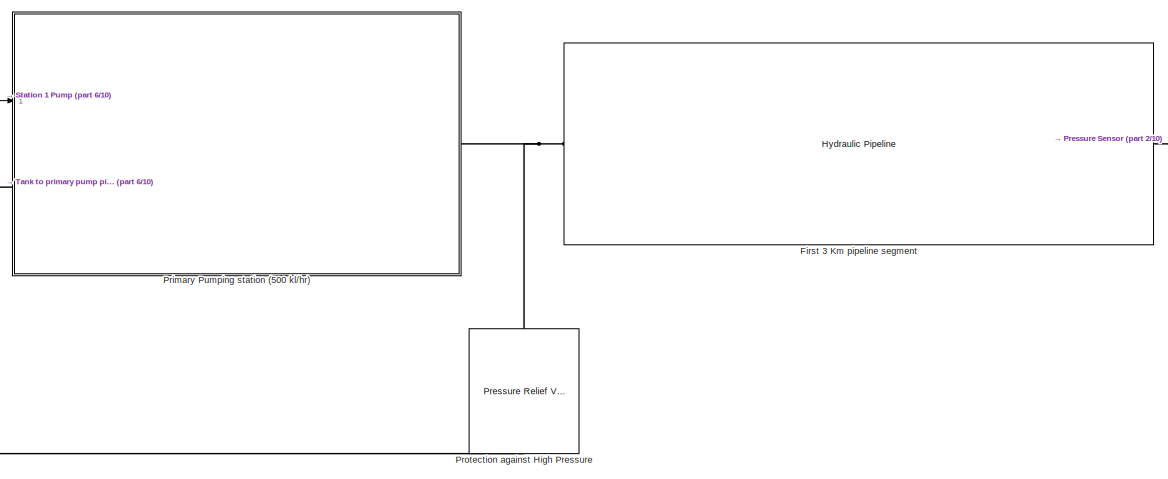
[diagram: Virtual Gas Pipeline /The Gas Pipeline - part 5/10, top left region]
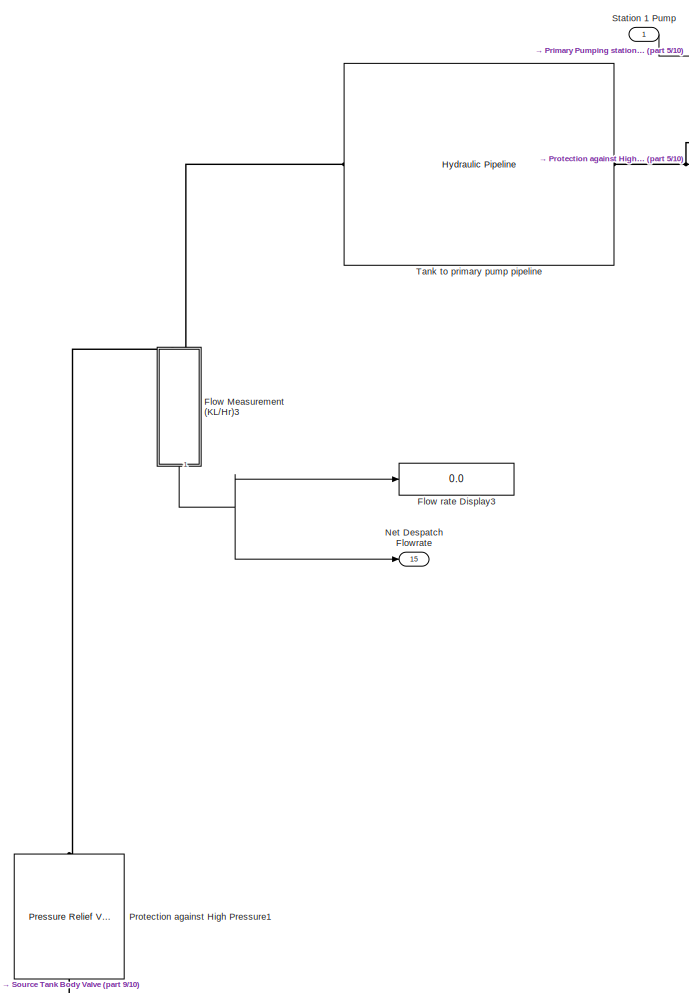
[diagram: Virtual Gas Pipeline /The Gas Pipeline - part 6/10, top left region]
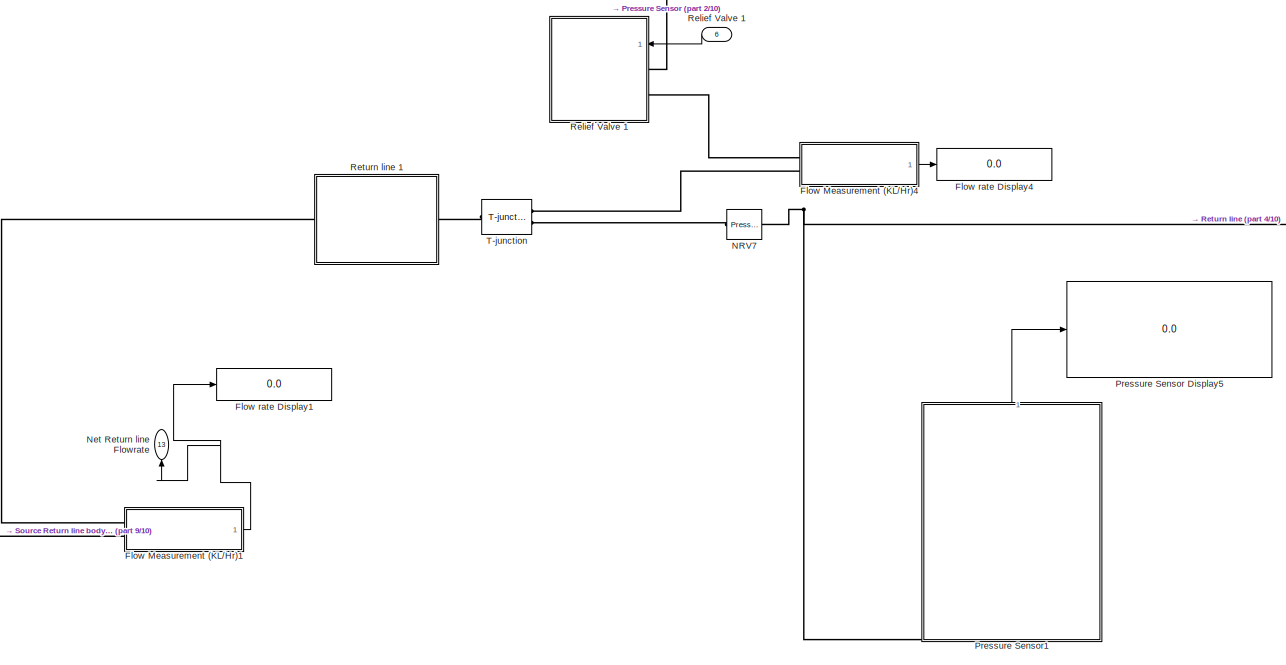
[diagram: Virtual Gas Pipeline /The Gas Pipeline - part 7/10, central region]
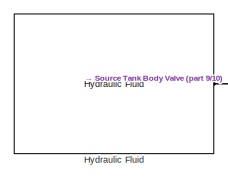
[diagram: Virtual Gas Pipeline /The Gas Pipeline - part 8/10, middle left region]
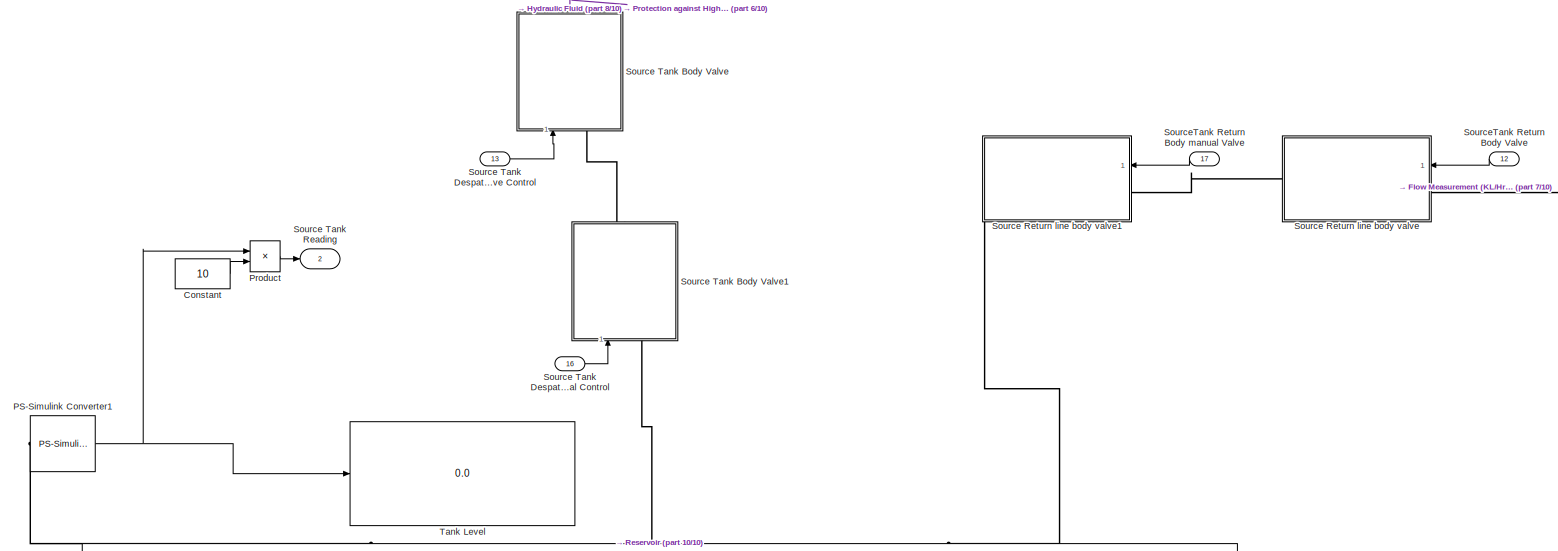
[diagram: Virtual Gas Pipeline /The Gas Pipeline - part 9/10, bottom left region]
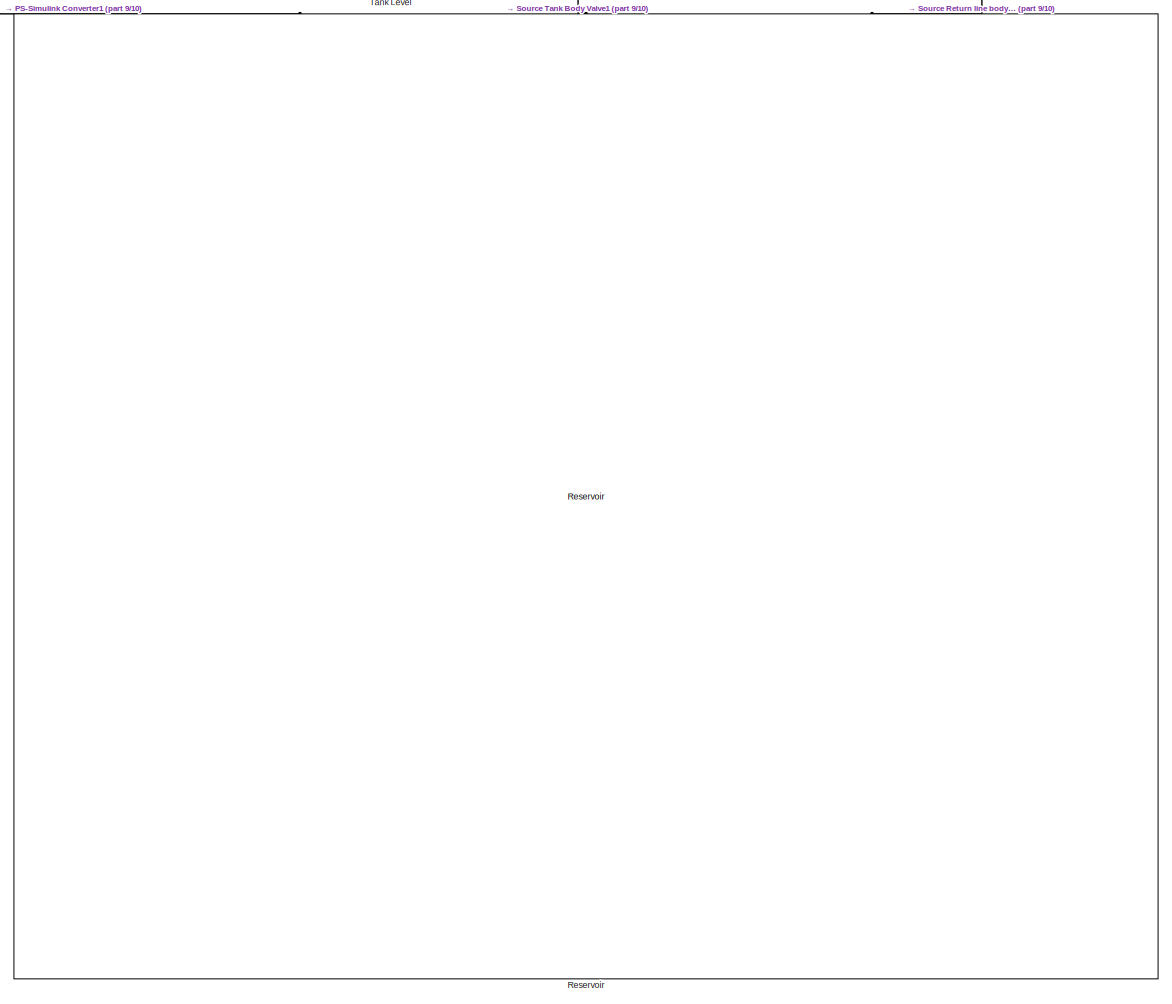
[diagram: Virtual Gas Pipeline /The Gas Pipeline - part 10/10, bottom left region]
BLOCK [SubSystem] Virtual Gas Pipeline /The Gas Pipeline
  Ports = [22, 15]
  RequestExecContextInheritance = off
BLOCK [SubSystem] Virtual Gas Pipeline /The Gas Pipeline/Ball Valve1
  Ports = [1, 0, 0, 0, 0, 1, 1]
  RequestExecContextInheritance = off
BLOCK [Reference] Virtual Gas Pipeline /The Gas Pipeline/Ball Valve1/Ball Valve  REF=sh_lib/Valves/Flow Control Valves/Ball Valve
  Ports = [0, 0, 0, 0, 0, 2, 1]
  SourceBlock = sh_lib/Valves/Flow Control Valves/Ball Valve
  SourceProductBaseCode = SH
  SourceProductName = Simscape Fluids
  SourceType = Ball Valve
BLOCK [PMIOPort] Virtual Gas Pipeline /The Gas Pipeline/Ball Valve1/Inlet
  Side = Left
BLOCK [Inport] Virtual Gas Pipeline /The Gas Pipeline/Ball Valve1/Relief Valve Control
  IconDisplay = Port number
BLOCK [Reference] Virtual Gas Pipeline /The Gas Pipeline/Ball Valve1/Simulink-PS Converter  REF=nesl_utility/Simulink-PS
Converter
  Ports = [1, 0, 0, 0, 0, 0, 1]
  SourceBlock = nesl_utility/Simulink-PS\nConverter
  SourceProductBaseCode = SS
  SourceProductName = Simscape
  SourceType = Simulink-PS\nConverter
BLOCK [PMIOPort] Virtual Gas Pipeline /The Gas Pipeline/Ball Valve1/outlet
  Port = 2
  Side = Right
BLOCK [SubSystem] Virtual Gas Pipeline /The Gas Pipeline/Ball Valve2
  Ports = [1, 0, 0, 0, 0, 1, 1]
  RequestExecContextInheritance = off
BLOCK [Reference] Virtual Gas Pipeline /The Gas Pipeline/Ball Valve2/Ball Valve  REF=sh_lib/Valves/Flow Control Valves/Ball Valve
  Ports = [0, 0, 0, 0, 0, 2, 1]
  SourceBlock = sh_lib/Valves/Flow Control Valves/Ball Valve
  SourceProductBaseCode = SH
  SourceProductName = Simscape Fluids
  SourceType = Ball Valve
BLOCK [PMIOPort] Virtual Gas Pipeline /The Gas Pipeline/Ball Valve2/Inlet
  Side = Left
BLOCK [Inport] Virtual Gas Pipeline /The Gas Pipeline/Ball Valve2/Relief Valve Control
  IconDisplay = Port number
BLOCK [Reference] Virtual Gas Pipeline /The Gas Pipeline/Ball Valve2/Simulink-PS Converter  REF=nesl_utility/Simulink-PS
Converter
  Ports = [1, 0, 0, 0, 0, 0, 1]
  SourceBlock = nesl_utility/Simulink-PS\nConverter
  SourceProductBaseCode = SS
  SourceProductName = Simscape
  SourceType = Simulink-PS\nConverter
BLOCK [PMIOPort] Virtual Gas Pipeline /The Gas Pipeline/Ball Valve2/outlet
  Port = 2
  Side = Right
BLOCK [SubSystem] Virtual Gas Pipeline /The Gas Pipeline/Ball Valve3
  Ports = [1, 0, 0, 0, 0, 1, 1]
  RequestExecContextInheritance = off
BLOCK [Reference] Virtual Gas Pipeline /The Gas Pipeline/Ball Valve3/Ball Valve  REF=sh_lib/Valves/Flow Control Valves/Ball Valve
  Ports = [0, 0, 0, 0, 0, 2, 1]
  SourceBlock = sh_lib/Valves/Flow Control Valves/Ball Valve
  SourceProductBaseCode = SH
  SourceProductName = Simscape Fluids
  SourceType = Ball Valve
BLOCK [PMIOPort] Virtual Gas Pipeline /The Gas Pipeline/Ball Valve3/Inlet
  Side = Left
BLOCK [Inport] Virtual Gas Pipeline /The Gas Pipeline/Ball Valve3/Relief Valve Control
  IconDisplay = Port number
BLOCK [Reference] Virtual Gas Pipeline /The Gas Pipeline/Ball Valve3/Simulink-PS Converter  REF=nesl_utility/Simulink-PS
Converter
  Ports = [1, 0, 0, 0, 0, 0, 1]
  SourceBlock = nesl_utility/Simulink-PS\nConverter
  SourceProductBaseCode = SS
  SourceProductName = Simscape
  SourceType = Simulink-PS\nConverter
BLOCK [PMIOPort] Virtual Gas Pipeline /The Gas Pipeline/Ball Valve3/outlet
  Port = 2
  Side = Right
BLOCK [SubSystem] Virtual Gas Pipeline /The Gas Pipeline/Ball Valve4
  Ports = [1, 0, 0, 0, 0, 1, 1]
  RequestExecContextInheritance = off
BLOCK [Reference] Virtual Gas Pipeline /The Gas Pipeline/Ball Valve4/Ball Valve  REF=sh_lib/Valves/Flow Control Valves/Ball Valve
  Ports = [0, 0, 0, 0, 0, 2, 1]
  SourceBlock = sh_lib/Valves/Flow Control Valves/Ball Valve
  SourceProductBaseCode = SH
  SourceProductName = Simscape Fluids
  SourceType = Ball Valve
BLOCK [PMIOPort] Virtual Gas Pipeline /The Gas Pipeline/Ball Valve4/Inlet
  Side = Left
BLOCK [Reference] Virtual Gas Pipeline /The Gas Pipeline/Ball Valve4/Simulink-PS Converter  REF=nesl_utility/Simulink-PS
Converter
  Ports = [1, 0, 0, 0, 0, 0, 1]
  SourceBlock = nesl_utility/Simulink-PS\nConverter
  SourceProductBaseCode = SS
  SourceProductName = Simscape
  SourceType = Simulink-PS\nConverter
BLOCK [PMIOPort] Virtual Gas Pipeline /The Gas Pipeline/Ball Valve4/outlet
  Port = 2
  Side = Right
BLOCK [Inport] Virtual Gas Pipeline /The Gas Pipeline/Ball Valve4/valve
  IconDisplay = Port number
BLOCK [SubSystem] Virtual Gas Pipeline /The Gas Pipeline/Ball Valve5
  Ports = [1, 0, 0, 0, 0, 1, 1]
  RequestExecContextInheritance = off
BLOCK [Reference] Virtual Gas Pipeline /The Gas Pipeline/Ball Valve5/Ball Valve  REF=sh_lib/Valves/Flow Control Valves/Ball Valve
  Ports = [0, 0, 0, 0, 0, 2, 1]
  SourceBlock = sh_lib/Valves/Flow Control Valves/Ball Valve
  SourceProductBaseCode = SH
  SourceProductName = Simscape Fluids
  SourceType = Ball Valve
BLOCK [PMIOPort] Virtual Gas Pipeline /The Gas Pipeline/Ball Valve5/Inlet
  Side = Left
BLOCK [Reference] Virtual Gas Pipeline /The Gas Pipeline/Ball Valve5/Simulink-PS Converter  REF=nesl_utility/Simulink-PS
Converter
  Ports = [1, 0, 0, 0, 0, 0, 1]
  SourceBlock = nesl_utility/Simulink-PS\nConverter
  SourceProductBaseCode = SS
  SourceProductName = Simscape
  SourceType = Simulink-PS\nConverter
BLOCK [PMIOPort] Virtual Gas Pipeline /The Gas Pipeline/Ball Valve5/outlet
  Port = 2
  Side = Right
BLOCK [Inport] Virtual Gas Pipeline /The Gas Pipeline/Ball Valve5/valve
  IconDisplay = Port number
BLOCK [SubSystem] Virtual Gas Pipeline /The Gas Pipeline/Ball Valve6
  Ports = [1, 0, 0, 0, 0, 1, 1]
  RequestExecContextInheritance = off
BLOCK [Reference] Virtual Gas Pipeline /The Gas Pipeline/Ball Valve6/Ball Valve  REF=sh_lib/Valves/Flow Control Valves/Ball Valve
  Ports = [0, 0, 0, 0, 0, 2, 1]
  SourceBlock = sh_lib/Valves/Flow Control Valves/Ball Valve
  SourceProductBaseCode = SH
  SourceProductName = Simscape Fluids
  SourceType = Ball Valve
BLOCK [PMIOPort] Virtual Gas Pipeline /The Gas Pipeline/Ball Valve6/Inlet
  Side = Left
BLOCK [Reference] Virtual Gas Pipeline /The Gas Pipeline/Ball Valve6/Simulink-PS Converter  REF=nesl_utility/Simulink-PS
Converter
  Ports = [1, 0, 0, 0, 0, 0, 1]
  SourceBlock = nesl_utility/Simulink-PS\nConverter
  SourceProductBaseCode = SS
  SourceProductName = Simscape
  SourceType = Simulink-PS\nConverter
BLOCK [PMIOPort] Virtual Gas Pipeline /The Gas Pipeline/Ball Valve6/outlet
  Port = 2
  Side = Right
BLOCK [Inport] Virtual Gas Pipeline /The Gas Pipeline/Ball Valve6/valve
  IconDisplay = Port number
BLOCK [SubSystem] Virtual Gas Pipeline /The Gas Pipeline/Ball Valve7
  Ports = [1, 0, 0, 0, 0, 1, 1]
  RequestExecContextInheritance = off
BLOCK [Reference] Virtual Gas Pipeline /The Gas Pipeline/Ball Valve7/Ball Valve  REF=sh_lib/Valves/Flow Control Valves/Ball Valve
  Ports = [0, 0, 0, 0, 0, 2, 1]
  SourceBlock = sh_lib/Valves/Flow Control Valves/Ball Valve
  SourceProductBaseCode = SH
  SourceProductName = Simscape Fluids
  SourceType = Ball Valve
BLOCK [PMIOPort] Virtual Gas Pipeline /The Gas Pipeline/Ball Valve7/Inlet
  Side = Left
BLOCK [Reference] Virtual Gas Pipeline /The Gas Pipeline/Ball Valve7/Simulink-PS Converter  REF=nesl_utility/Simulink-PS
Converter
  Ports = [1, 0, 0, 0, 0, 0, 1]
  SourceBlock = nesl_utility/Simulink-PS\nConverter
  SourceProductBaseCode = SS
  SourceProductName = Simscape
  SourceType = Simulink-PS\nConverter
BLOCK [PMIOPort] Virtual Gas Pipeline /The Gas Pipeline/Ball Valve7/outlet
  Port = 2
  Side = Right
BLOCK [Inport] Virtual Gas Pipeline /The Gas Pipeline/Ball Valve7/valve
  IconDisplay = Port number
BLOCK [Constant] Virtual Gas Pipeline /The Gas Pipeline/Constant
  Value = 10
BLOCK [Constant] Virtual Gas Pipeline /The Gas Pipeline/Constant1
  Value = 10
BLOCK [Inport] Virtual Gas Pipeline /The Gas Pipeline/Destination Return body valve
  IconDisplay = Port number
  Port = 11
BLOCK [Inport] Virtual Gas Pipeline /The Gas Pipeline/Destination Return body valve manual
  IconDisplay = Port number
  Port = 15
BLOCK [Inport] Virtual Gas Pipeline /The Gas Pipeline/Destination Tank Inlet body Valve
  IconDisplay = Port number
  Port = 10
BLOCK [Inport] Virtual Gas Pipeline /The Gas Pipeline/Destination Tank Inlet body Valve manual
  IconDisplay = Port number
  Port = 14
BLOCK [Outport] Virtual Gas Pipeline /The Gas Pipeline/Destination Tank Reading
  IconDisplay = Port number
  Port = 3
BLOCK [Reference] Virtual Gas Pipeline /The Gas Pipeline/Destination tank   REF=sh_lib/Low-Pressure Blocks/Tank
  Ports = [0, 0, 0, 0, 0, 1, 2]
  SourceBlock = sh_lib/Low-Pressure Blocks/Tank
  SourceProductBaseCode = SH
  SourceProductName = Simscape Fluids
  SourceType = Tank
BLOCK [Display] Virtual Gas Pipeline /The Gas Pipeline/Display1
  Decimation = 1
  Ports = [1]
BLOCK [Reference] Virtual Gas Pipeline /The Gas Pipeline/First 3 Km pipeline segment  REF=sh_lib/Pipelines/Hydraulic Pipeline
  Ports = [0, 0, 0, 0, 0, 1, 1]
  SourceBlock = sh_lib/Pipelines/Hydraulic Pipeline
  SourceProductBaseCode = SH
  SourceProductName = Simscape Fluids
  SourceType = Hydraulic Pipeline
BLOCK [SubSystem] Virtual Gas Pipeline /The Gas Pipeline/Flow Measurement (KL//Hr)
  Ports = [0, 1, 0, 0, 0, 2]
  RequestExecContextInheritance = off
BLOCK [PMIOPort] Virtual Gas Pipeline /The Gas Pipeline/Flow Measurement (KL//Hr)/ Outlet Reference
  Port = 2
  Side = Left
BLOCK [Constant] Virtual Gas Pipeline /The Gas Pipeline/Flow Measurement (KL//Hr)/Constant
  Value = 3600
BLOCK [Outport] Virtual Gas Pipeline /The Gas Pipeline/Flow Measurement (KL//Hr)/Display out
  IconDisplay = Port number
BLOCK [Reference] Virtual Gas Pipeline /The Gas Pipeline/Flow Measurement (KL//Hr)/Hydraulic Flow Rate Sensor  REF=fl_lib/Hydraulic/Hydraulic Sensors/Hydraulic Flow Rate
Sensor
  Ports = [0, 0, 0, 0, 0, 1, 3]
  SourceBlock = fl_lib/Hydraulic/Hydraulic Sensors/Hydraulic Flow Rate\nSensor
  SourceProductBaseCode = SS
  SourceProductName = Simscape
  SourceType = Hydraulic Flow Rate\nSensor
BLOCK [PMIOPort] Virtual Gas Pipeline /The Gas Pipeline/Flow Measurement (KL//Hr)/Inlet reference
  Side = Left
BLOCK [Reference] Virtual Gas Pipeline /The Gas Pipeline/Flow Measurement (KL//Hr)/PS-Simulink Converter3  REF=nesl_utility/PS-Simulink
Converter
  Ports = [0, 1, 0, 0, 0, 1]
  SourceBlock = nesl_utility/PS-Simulink\nConverter
  SourceProductBaseCode = SS
  SourceProductName = Simscape
  SourceType = PS-Simulink\nConverter
BLOCK [Product] Virtual Gas Pipeline /The Gas Pipeline/Flow Measurement (KL//Hr)/Product
  InputSameDT = off
  OutDataTypeStr = Inherit: Inherit via internal rule
  Ports = [2, 1]
  RndMeth = Floor
  SaturateOnIntegerOverflow = off
BLOCK [SubSystem] Virtual Gas Pipeline /The Gas Pipeline/Flow Measurement (KL//Hr)1
  Ports = [0, 1, 0, 0, 0, 2]
  RequestExecContextInheritance = off
BLOCK [PMIOPort] Virtual Gas Pipeline /The Gas Pipeline/Flow Measurement (KL//Hr)1/ Outlet Reference
  Port = 2
  Side = Left
BLOCK [Constant] Virtual Gas Pipeline /The Gas Pipeline/Flow Measurement (KL//Hr)1/Constant
  Value = 3600
BLOCK [Outport] Virtual Gas Pipeline /The Gas Pipeline/Flow Measurement (KL//Hr)1/Display out
  IconDisplay = Port number
BLOCK [Reference] Virtual Gas Pipeline /The Gas Pipeline/Flow Measurement (KL//Hr)1/Hydraulic Flow Rate Sensor  REF=fl_lib/Hydraulic/Hydraulic Sensors/Hydraulic Flow Rate
Sensor
  Ports = [0, 0, 0, 0, 0, 1, 3]
  SourceBlock = fl_lib/Hydraulic/Hydraulic Sensors/Hydraulic Flow Rate\nSensor
  SourceProductBaseCode = SS
  SourceProductName = Simscape
  SourceType = Hydraulic Flow Rate\nSensor
BLOCK [PMIOPort] Virtual Gas Pipeline /The Gas Pipeline/Flow Measurement (KL//Hr)1/Inlet reference
  Side = Left
BLOCK [Reference] Virtual Gas Pipeline /The Gas Pipeline/Flow Measurement (KL//Hr)1/PS-Simulink Converter3  REF=nesl_utility/PS-Simulink
Converter
  Ports = [0, 1, 0, 0, 0, 1]
  SourceBlock = nesl_utility/PS-Simulink\nConverter
  SourceProductBaseCode = SS
  SourceProductName = Simscape
  SourceType = PS-Simulink\nConverter
BLOCK [Product] Virtual Gas Pipeline /The Gas Pipeline/Flow Measurement (KL//Hr)1/Product
  InputSameDT = off
  OutDataTypeStr = Inherit: Inherit via internal rule
  Ports = [2, 1]
  RndMeth = Floor
  SaturateOnIntegerOverflow = off
BLOCK [SubSystem] Virtual Gas Pipeline /The Gas Pipeline/Flow Measurement (KL//Hr)2
  Ports = [0, 1, 0, 0, 0, 2]
  RequestExecContextInheritance = off
BLOCK [PMIOPort] Virtual Gas Pipeline /The Gas Pipeline/Flow Measurement (KL//Hr)2/ Outlet Reference
  Port = 2
  Side = Left
BLOCK [Constant] Virtual Gas Pipeline /The Gas Pipeline/Flow Measurement (KL//Hr)2/Constant
  Value = 3600
BLOCK [Outport] Virtual Gas Pipeline /The Gas Pipeline/Flow Measurement (KL//Hr)2/Display out
  IconDisplay = Port number
BLOCK [Reference] Virtual Gas Pipeline /The Gas Pipeline/Flow Measurement (KL//Hr)2/Hydraulic Flow Rate Sensor  REF=fl_lib/Hydraulic/Hydraulic Sensors/Hydraulic Flow Rate
Sensor
  Ports = [0, 0, 0, 0, 0, 1, 3]
  SourceBlock = fl_lib/Hydraulic/Hydraulic Sensors/Hydraulic Flow Rate\nSensor
  SourceProductBaseCode = SS
  SourceProductName = Simscape
  SourceType = Hydraulic Flow Rate\nSensor
BLOCK [PMIOPort] Virtual Gas Pipeline /The Gas Pipeline/Flow Measurement (KL//Hr)2/Inlet reference
  Side = Left
BLOCK [Reference] Virtual Gas Pipeline /The Gas Pipeline/Flow Measurement (KL//Hr)2/PS-Simulink Converter3  REF=nesl_utility/PS-Simulink
Converter
  Ports = [0, 1, 0, 0, 0, 1]
  SourceBlock = nesl_utility/PS-Simulink\nConverter
  SourceProductBaseCode = SS
  SourceProductName = Simscape
  SourceType = PS-Simulink\nConverter
BLOCK [Product] Virtual Gas Pipeline /The Gas Pipeline/Flow Measurement (KL//Hr)2/Product
  InputSameDT = off
  OutDataTypeStr = Inherit: Inherit via internal rule
  Ports = [2, 1]
  RndMeth = Floor
  SaturateOnIntegerOverflow = off
BLOCK [SubSystem] Virtual Gas Pipeline /The Gas Pipeline/Flow Measurement (KL//Hr)3
  Ports = [0, 1, 0, 0, 0, 2]
  RequestExecContextInheritance = off
BLOCK [PMIOPort] Virtual Gas Pipeline /The Gas Pipeline/Flow Measurement (KL//Hr)3/ Outlet Reference
  Port = 2
  Side = Left
BLOCK [Constant] Virtual Gas Pipeline /The Gas Pipeline/Flow Measurement (KL//Hr)3/Constant
  Value = 3600
BLOCK [Outport] Virtual Gas Pipeline /The Gas Pipeline/Flow Measurement (KL//Hr)3/Display out
  IconDisplay = Port number
BLOCK [Reference] Virtual Gas Pipeline /The Gas Pipeline/Flow Measurement (KL//Hr)3/Hydraulic Flow Rate Sensor  REF=fl_lib/Hydraulic/Hydraulic Sensors/Hydraulic Flow Rate
Sensor
  Ports = [0, 0, 0, 0, 0, 1, 3]
  SourceBlock = fl_lib/Hydraulic/Hydraulic Sensors/Hydraulic Flow Rate\nSensor
  SourceProductBaseCode = SS
  SourceProductName = Simscape
  SourceType = Hydraulic Flow Rate\nSensor
BLOCK [PMIOPort] Virtual Gas Pipeline /The Gas Pipeline/Flow Measurement (KL//Hr)3/Inlet reference
  Side = Left
BLOCK [Reference] Virtual Gas Pipeline /The Gas Pipeline/Flow Measurement (KL//Hr)3/PS-Simulink Converter3  REF=nesl_utility/PS-Simulink
Converter
  Ports = [0, 1, 0, 0, 0, 1]
  SourceBlock = nesl_utility/PS-Simulink\nConverter
  SourceProductBaseCode = SS
  SourceProductName = Simscape
  SourceType = PS-Simulink\nConverter
BLOCK [Product] Virtual Gas Pipeline /The Gas Pipeline/Flow Measurement (KL//Hr)3/Product
  InputSameDT = off
  OutDataTypeStr = Inherit: Inherit via internal rule
  Ports = [2, 1]
  RndMeth = Floor
  SaturateOnIntegerOverflow = off
BLOCK [SubSystem] Virtual Gas Pipeline /The Gas Pipeline/Flow Measurement (KL//Hr)4
  Ports = [0, 1, 0, 0, 0, 2]
  RequestExecContextInheritance = off
BLOCK [PMIOPort] Virtual Gas Pipeline /The Gas Pipeline/Flow Measurement (KL//Hr)4/ Outlet Reference
  Port = 2
  Side = Left
BLOCK [Constant] Virtual Gas Pipeline /The Gas Pipeline/Flow Measurement (KL//Hr)4/Constant
  Value = 3600
BLOCK [Outport] Virtual Gas Pipeline /The Gas Pipeline/Flow Measurement (KL//Hr)4/Display out
  IconDisplay = Port number
BLOCK [Reference] Virtual Gas Pipeline /The Gas Pipeline/Flow Measurement (KL//Hr)4/Hydraulic Flow Rate Sensor  REF=fl_lib/Hydraulic/Hydraulic Sensors/Hydraulic Flow Rate
Sensor
  Ports = [0, 0, 0, 0, 0, 1, 3]
  SourceBlock = fl_lib/Hydraulic/Hydraulic Sensors/Hydraulic Flow Rate\nSensor
  SourceProductBaseCode = SS
  SourceProductName = Simscape
  SourceType = Hydraulic Flow Rate\nSensor
BLOCK [PMIOPort] Virtual Gas Pipeline /The Gas Pipeline/Flow Measurement (KL//Hr)4/Inlet reference
  Side = Left
BLOCK [Reference] Virtual Gas Pipeline /The Gas Pipeline/Flow Measurement (KL//Hr)4/PS-Simulink Converter3  REF=nesl_utility/PS-Simulink
Converter
  Ports = [0, 1, 0, 0, 0, 1]
  SourceBlock = nesl_utility/PS-Simulink\nConverter
  SourceProductBaseCode = SS
  SourceProductName = Simscape
  SourceType = PS-Simulink\nConverter
BLOCK [Product] Virtual Gas Pipeline /The Gas Pipeline/Flow Measurement (KL//Hr)4/Product
  InputSameDT = off
  OutDataTypeStr = Inherit: Inherit via internal rule
  Ports = [2, 1]
  RndMeth = Floor
  SaturateOnIntegerOverflow = off
BLOCK [SubSystem] Virtual Gas Pipeline /The Gas Pipeline/Flow Measurement (KL//Hr)5
  Ports = [0, 1, 0, 0, 0, 2]
  RequestExecContextInheritance = off
BLOCK [PMIOPort] Virtual Gas Pipeline /The Gas Pipeline/Flow Measurement (KL//Hr)5/ Outlet Reference
  Port = 2
  Side = Left
BLOCK [Constant] Virtual Gas Pipeline /The Gas Pipeline/Flow Measurement (KL//Hr)5/Constant
  Value = 3600
BLOCK [Outport] Virtual Gas Pipeline /The Gas Pipeline/Flow Measurement (KL//Hr)5/Display out
  IconDisplay = Port number
BLOCK [Reference] Virtual Gas Pipeline /The Gas Pipeline/Flow Measurement (KL//Hr)5/Hydraulic Flow Rate Sensor  REF=fl_lib/Hydraulic/Hydraulic Sensors/Hydraulic Flow Rate
Sensor
  Ports = [0, 0, 0, 0, 0, 1, 3]
  SourceBlock = fl_lib/Hydraulic/Hydraulic Sensors/Hydraulic Flow Rate\nSensor
  SourceProductBaseCode = SS
  SourceProductName = Simscape
  SourceType = Hydraulic Flow Rate\nSensor
BLOCK [PMIOPort] Virtual Gas Pipeline /The Gas Pipeline/Flow Measurement (KL//Hr)5/Inlet reference
  Side = Left
BLOCK [Reference] Virtual Gas Pipeline /The Gas Pipeline/Flow Measurement (KL//Hr)5/PS-Simulink Converter3  REF=nesl_utility/PS-Simulink
Converter
  Ports = [0, 1, 0, 0, 0, 1]
  SourceBlock = nesl_utility/PS-Simulink\nConverter
  SourceProductBaseCode = SS
  SourceProductName = Simscape
  SourceType = PS-Simulink\nConverter
BLOCK [Product] Virtual Gas Pipeline /The Gas Pipeline/Flow Measurement (KL//Hr)5/Product
  InputSameDT = off
  OutDataTypeStr = Inherit: Inherit via internal rule
  Ports = [2, 1]
  RndMeth = Floor
  SaturateOnIntegerOverflow = off
BLOCK [SubSystem] Virtual Gas Pipeline /The Gas Pipeline/Flow Measurement (KL//Hr)6
  Ports = [0, 1, 0, 0, 0, 2]
  RequestExecContextInheritance = off
BLOCK [PMIOPort] Virtual Gas Pipeline /The Gas Pipeline/Flow Measurement (KL//Hr)6/ Outlet Reference
  Port = 2
  Side = Left
BLOCK [Constant] Virtual Gas Pipeline /The Gas Pipeline/Flow Measurement (KL//Hr)6/Constant
  Value = 3600
BLOCK [Outport] Virtual Gas Pipeline /The Gas Pipeline/Flow Measurement (KL//Hr)6/Display out
  IconDisplay = Port number
BLOCK [Reference] Virtual Gas Pipeline /The Gas Pipeline/Flow Measurement (KL//Hr)6/Hydraulic Flow Rate Sensor  REF=fl_lib/Hydraulic/Hydraulic Sensors/Hydraulic Flow Rate
Sensor
  Ports = [0, 0, 0, 0, 0, 1, 3]
  SourceBlock = fl_lib/Hydraulic/Hydraulic Sensors/Hydraulic Flow Rate\nSensor
  SourceProductBaseCode = SS
  SourceProductName = Simscape
  SourceType = Hydraulic Flow Rate\nSensor
BLOCK [PMIOPort] Virtual Gas Pipeline /The Gas Pipeline/Flow Measurement (KL//Hr)6/Inlet reference
  Side = Left
BLOCK [Reference] Virtual Gas Pipeline /The Gas Pipeline/Flow Measurement (KL//Hr)6/PS-Simulink Converter3  REF=nesl_utility/PS-Simulink
Converter
  Ports = [0, 1, 0, 0, 0, 1]
  SourceBlock = nesl_utility/PS-Simulink\nConverter
  SourceProductBaseCode = SS
  SourceProductName = Simscape
  SourceType = PS-Simulink\nConverter
BLOCK [Product] Virtual Gas Pipeline /The Gas Pipeline/Flow Measurement (KL//Hr)6/Product
  InputSameDT = off
  OutDataTypeStr = Inherit: Inherit via internal rule
  Ports = [2, 1]
  RndMeth = Floor
  SaturateOnIntegerOverflow = off
BLOCK [SubSystem] Virtual Gas Pipeline /The Gas Pipeline/Flow Measurement (KL//Hr)7
  Ports = [0, 1, 0, 0, 0, 2]
  RequestExecContextInheritance = off
BLOCK [PMIOPort] Virtual Gas Pipeline /The Gas Pipeline/Flow Measurement (KL//Hr)7/ Outlet Reference
  Port = 2
  Side = Left
BLOCK [Constant] Virtual Gas Pipeline /The Gas Pipeline/Flow Measurement (KL//Hr)7/Constant
  Value = 3600
BLOCK [Outport] Virtual Gas Pipeline /The Gas Pipeline/Flow Measurement (KL//Hr)7/Display out
  IconDisplay = Port number
BLOCK [Reference] Virtual Gas Pipeline /The Gas Pipeline/Flow Measurement (KL//Hr)7/Hydraulic Flow Rate Sensor  REF=fl_lib/Hydraulic/Hydraulic Sensors/Hydraulic Flow Rate
Sensor
  Ports = [0, 0, 0, 0, 0, 1, 3]
  SourceBlock = fl_lib/Hydraulic/Hydraulic Sensors/Hydraulic Flow Rate\nSensor
  SourceProductBaseCode = SS
  SourceProductName = Simscape
  SourceType = Hydraulic Flow Rate\nSensor
BLOCK [PMIOPort] Virtual Gas Pipeline /The Gas Pipeline/Flow Measurement (KL//Hr)7/Inlet reference
  Side = Left
BLOCK [Reference] Virtual Gas Pipeline /The Gas Pipeline/Flow Measurement (KL//Hr)7/PS-Simulink Converter3  REF=nesl_utility/PS-Simulink
Converter
  Ports = [0, 1, 0, 0, 0, 1]
  SourceBlock = nesl_utility/PS-Simulink\nConverter
  SourceProductBaseCode = SS
  SourceProductName = Simscape
  SourceType = PS-Simulink\nConverter
BLOCK [Product] Virtual Gas Pipeline /The Gas Pipeline/Flow Measurement (KL//Hr)7/Product
  InputSameDT = off
  OutDataTypeStr = Inherit: Inherit via internal rule
  Ports = [2, 1]
  RndMeth = Floor
  SaturateOnIntegerOverflow = off
BLOCK [Display] Virtual Gas Pipeline /The Gas Pipeline/Flow rate Display
  Decimation = 1
  Ports = [1]
BLOCK [Display] Virtual Gas Pipeline /The Gas Pipeline/Flow rate Display1
  Decimation = 1
  Ports = [1]
BLOCK [Display] Virtual Gas Pipeline /The Gas Pipeline/Flow rate Display2
  Decimation = 1
  Ports = [1]
BLOCK [Display] Virtual Gas Pipeline /The Gas Pipeline/Flow rate Display3
  Decimation = 1
  Ports = [1]
BLOCK [Display] Virtual Gas Pipeline /The Gas Pipeline/Flow rate Display4
  Decimation = 1
  Ports = [1]
BLOCK [Display] Virtual Gas Pipeline /The Gas Pipeline/Flow rate Display5
  Decimation = 1
  Ports = [1]
BLOCK [Display] Virtual Gas Pipeline /The Gas Pipeline/Flow rate Display6
  Decimation = 1
  Ports = [1]
BLOCK [Display] Virtual Gas Pipeline /The Gas Pipeline/Flow rate Display7
  Decimation = 1
  Ports = [1]
BLOCK [Reference] Virtual Gas Pipeline /The Gas Pipeline/Hydraulic Fluid  REF=sh_lib/Hydraulic Utilities/Hydraulic Fluid
  Ports = [0, 0, 0, 0, 0, 0, 1]
  SourceBlock = sh_lib/Hydraulic Utilities/Hydraulic Fluid
  SourceProductBaseCode = SH
  SourceProductName = Simscape Fluids
  SourceType = Hydraulic Fluid
BLOCK [Reference] Virtual Gas Pipeline /The Gas Pipeline/NRV1  REF=sh_lib/Valves/Pressure Control
Valves/Pressure Relief
Valve
  Ports = [0, 0, 0, 0, 0, 1, 1]
  SourceBlock = sh_lib/Valves/Pressure Control\nValves/Pressure Relief\nValve
  SourceProductBaseCode = SH
  SourceProductName = Simscape Fluids
  SourceType = Pressure Relief\nValve
BLOCK [Reference] Virtual Gas Pipeline /The Gas Pipeline/NRV2  REF=sh_lib/Valves/Pressure Control
Valves/Pressure Relief
Valve
  Ports = [0, 0, 0, 0, 0, 1, 1]
  SourceBlock = sh_lib/Valves/Pressure Control\nValves/Pressure Relief\nValve
  SourceProductBaseCode = SH
  SourceProductName = Simscape Fluids
  SourceType = Pressure Relief\nValve
BLOCK [Reference] Virtual Gas Pipeline /The Gas Pipeline/NRV3  REF=sh_lib/Valves/Pressure Control
Valves/Pressure Relief
Valve
  Ports = [0, 0, 0, 0, 0, 1, 1]
  SourceBlock = sh_lib/Valves/Pressure Control\nValves/Pressure Relief\nValve
  SourceProductBaseCode = SH
  SourceProductName = Simscape Fluids
  SourceType = Pressure Relief\nValve
BLOCK [Reference] Virtual Gas Pipeline /The Gas Pipeline/NRV4  REF=sh_lib/Valves/Pressure Control
Valves/Pressure Relief
Valve
  Ports = [0, 0, 0, 0, 0, 1, 1]
  SourceBlock = sh_lib/Valves/Pressure Control\nValves/Pressure Relief\nValve
  SourceProductBaseCode = SH
  SourceProductName = Simscape Fluids
  SourceType = Pressure Relief\nValve
BLOCK [Reference] Virtual Gas Pipeline /The Gas Pipeline/NRV5  REF=sh_lib/Valves/Pressure Control
Valves/Pressure Relief
Valve
  Ports = [0, 0, 0, 0, 0, 1, 1]
  SourceBlock = sh_lib/Valves/Pressure Control\nValves/Pressure Relief\nValve
  SourceProductBaseCode = SH
  SourceProductName = Simscape Fluids
  SourceType = Pressure Relief\nValve
BLOCK [Reference] Virtual Gas Pipeline /The Gas Pipeline/NRV6  REF=sh_lib/Valves/Pressure Control
Valves/Pressure Relief
Valve
  Ports = [0, 0, 0, 0, 0, 1, 1]
  SourceBlock = sh_lib/Valves/Pressure Control\nValves/Pressure Relief\nValve
  SourceProductBaseCode = SH
  SourceProductName = Simscape Fluids
  SourceType = Pressure Relief\nValve
BLOCK [Reference] Virtual Gas Pipeline /The Gas Pipeline/NRV7  REF=sh_lib/Valves/Pressure Control
Valves/Pressure Relief
Valve
  Ports = [0, 0, 0, 0, 0, 1, 1]
  SourceBlock = sh_lib/Valves/Pressure Control\nValves/Pressure Relief\nValve
  SourceProductBaseCode = SH
  SourceProductName = Simscape Fluids
  SourceType = Pressure Relief\nValve
BLOCK [Outport] Virtual Gas Pipeline /The Gas Pipeline/Net Despatch Flowrate
  IconDisplay = Port number
  Port = 15
BLOCK [Outport] Virtual Gas Pipeline /The Gas Pipeline/Net Receipt Flowrate
  IconDisplay = Port number
  Port = 8
BLOCK [Outport] Virtual Gas Pipeline /The Gas Pipeline/Net Return line Flowrate
  IconDisplay = Port number
  Port = 13
BLOCK [Reference] Virtual Gas Pipeline /The Gas Pipeline/PS-Simulink Converter  REF=nesl_utility/PS-Simulink
Converter
  Ports = [0, 1, 0, 0, 0, 1]
  SourceBlock = nesl_utility/PS-Simulink\nConverter
  SourceProductBaseCode = SS
  SourceProductName = Simscape
  SourceType = PS-Simulink\nConverter
BLOCK [Reference] Virtual Gas Pipeline /The Gas Pipeline/PS-Simulink Converter1  REF=nesl_utility/PS-Simulink
Converter
  Ports = [0, 1, 0, 0, 0, 1]
  SourceBlock = nesl_utility/PS-Simulink\nConverter
  SourceProductBaseCode = SS
  SourceProductName = Simscape
  SourceType = PS-Simulink\nConverter
BLOCK [SubSystem] Virtual Gas Pipeline /The Gas Pipeline/Pressure Sensor
  Ports = [0, 1, 0, 0, 0, 1]
  RequestExecContextInheritance = off
BLOCK [Display] Virtual Gas Pipeline /The Gas Pipeline/Pressure Sensor Display
  Decimation = 1
  Ports = [1]
BLOCK [Display] Virtual Gas Pipeline /The Gas Pipeline/Pressure Sensor Display5
  Decimation = 1
  Ports = [1]
BLOCK [Display] Virtual Gas Pipeline /The Gas Pipeline/Pressure Sensor Display6
  Decimation = 1
  Ports = [1]
BLOCK [Display] Virtual Gas Pipeline /The Gas Pipeline/Pressure Sensor Display7
  Decimation = 1
  Ports = [1]
BLOCK [Display] Virtual Gas Pipeline /The Gas Pipeline/Pressure Sensor Display8
  Decimation = 1
  Ports = [1]
BLOCK [Outport] Virtual Gas Pipeline /The Gas Pipeline/Pressure Sensor/ Display
  IconDisplay = Port number
BLOCK [Reference] Virtual Gas Pipeline /The Gas Pipeline/Pressure Sensor/Hydraulic Reference3  REF=fl_lib/Hydraulic/Hydraulic Elements/Hydraulic Reference
  Ports = [0, 0, 0, 0, 0, 1]
  SourceBlock = fl_lib/Hydraulic/Hydraulic Elements/Hydraulic Reference
  SourceProductBaseCode = SS
  SourceProductName = Simscape
  SourceType = Hydraulic Reference
BLOCK [Reference] Virtual Gas Pipeline /The Gas Pipeline/Pressure Sensor/Ideal Hydraulic Pressure Sensor3  REF=fl_lib/Hydraulic/Hydraulic Sensors/Hydraulic Pressure
Sensor
  Ports = [0, 0, 0, 0, 0, 1, 2]
  SourceBlock = fl_lib/Hydraulic/Hydraulic Sensors/Hydraulic Pressure\nSensor
  SourceProductBaseCode = SS
  SourceProductName = Simscape
  SourceType = Hydraulic Pressure\nSensor
BLOCK [Reference] Virtual Gas Pipeline /The Gas Pipeline/Pressure Sensor/PS-Simulink Converter3  REF=nesl_utility/PS-Simulink
Converter
  Ports = [0, 1, 0, 0, 0, 1]
  SourceBlock = nesl_utility/PS-Simulink\nConverter
  SourceProductBaseCode = SS
  SourceProductName = Simscape
  SourceType = PS-Simulink\nConverter
BLOCK [PMIOPort] Virtual Gas Pipeline /The Gas Pipeline/Pressure Sensor/Point
  Side = Left
BLOCK [SubSystem] Virtual Gas Pipeline /The Gas Pipeline/Pressure Sensor1
  Ports = [0, 1, 0, 0, 0, 1]
  RequestExecContextInheritance = off
BLOCK [Outport] Virtual Gas Pipeline /The Gas Pipeline/Pressure Sensor1/ Display
  IconDisplay = Port number
BLOCK [Reference] Virtual Gas Pipeline /The Gas Pipeline/Pressure Sensor1/Hydraulic Reference3  REF=fl_lib/Hydraulic/Hydraulic Elements/Hydraulic Reference
  Ports = [0, 0, 0, 0, 0, 1]
  SourceBlock = fl_lib/Hydraulic/Hydraulic Elements/Hydraulic Reference
  SourceProductBaseCode = SS
  SourceProductName = Simscape
  SourceType = Hydraulic Reference
BLOCK [Reference] Virtual Gas Pipeline /The Gas Pipeline/Pressure Sensor1/Ideal Hydraulic Pressure Sensor3  REF=fl_lib/Hydraulic/Hydraulic Sensors/Hydraulic Pressure
Sensor
  Ports = [0, 0, 0, 0, 0, 1, 2]
  SourceBlock = fl_lib/Hydraulic/Hydraulic Sensors/Hydraulic Pressure\nSensor
  SourceProductBaseCode = SS
  SourceProductName = Simscape
  SourceType = Hydraulic Pressure\nSensor
BLOCK [Reference] Virtual Gas Pipeline /The Gas Pipeline/Pressure Sensor1/PS-Simulink Converter3  REF=nesl_utility/PS-Simulink
Converter
  Ports = [0, 1, 0, 0, 0, 1]
  SourceBlock = nesl_utility/PS-Simulink\nConverter
  SourceProductBaseCode = SS
  SourceProductName = Simscape
  SourceType = PS-Simulink\nConverter
BLOCK [PMIOPort] Virtual Gas Pipeline /The Gas Pipeline/Pressure Sensor1/Point
  Side = Left
BLOCK [SubSystem] Virtual Gas Pipeline /The Gas Pipeline/Pressure Sensor2
  Ports = [0, 1, 0, 0, 0, 1]
  RequestExecContextInheritance = off
BLOCK [Outport] Virtual Gas Pipeline /The Gas Pipeline/Pressure Sensor2/ Display
  IconDisplay = Port number
BLOCK [Reference] Virtual Gas Pipeline /The Gas Pipeline/Pressure Sensor2/Hydraulic Reference3  REF=fl_lib/Hydraulic/Hydraulic Elements/Hydraulic Reference
  Ports = [0, 0, 0, 0, 0, 1]
  SourceBlock = fl_lib/Hydraulic/Hydraulic Elements/Hydraulic Reference
  SourceProductBaseCode = SS
  SourceProductName = Simscape
  SourceType = Hydraulic Reference
BLOCK [Reference] Virtual Gas Pipeline /The Gas Pipeline/Pressure Sensor2/Ideal Hydraulic Pressure Sensor3  REF=fl_lib/Hydraulic/Hydraulic Sensors/Hydraulic Pressure
Sensor
  Ports = [0, 0, 0, 0, 0, 1, 2]
  SourceBlock = fl_lib/Hydraulic/Hydraulic Sensors/Hydraulic Pressure\nSensor
  SourceProductBaseCode = SS
  SourceProductName = Simscape
  SourceType = Hydraulic Pressure\nSensor
BLOCK [Reference] Virtual Gas Pipeline /The Gas Pipeline/Pressure Sensor2/PS-Simulink Converter3  REF=nesl_utility/PS-Simulink
Converter
  Ports = [0, 1, 0, 0, 0, 1]
  SourceBlock = nesl_utility/PS-Simulink\nConverter
  SourceProductBaseCode = SS
  SourceProductName = Simscape
  SourceType = PS-Simulink\nConverter
BLOCK [PMIOPort] Virtual Gas Pipeline /The Gas Pipeline/Pressure Sensor2/Point
  Side = Left
BLOCK [SubSystem] Virtual Gas Pipeline /The Gas Pipeline/Pressure Sensor3
  Ports = [0, 1, 0, 0, 0, 1]
  RequestExecContextInheritance = off
BLOCK [Outport] Virtual Gas Pipeline /The Gas Pipeline/Pressure Sensor3/ Display
  IconDisplay = Port number
BLOCK [Reference] Virtual Gas Pipeline /The Gas Pipeline/Pressure Sensor3/Hydraulic Reference3  REF=fl_lib/Hydraulic/Hydraulic Elements/Hydraulic Reference
  Ports = [0, 0, 0, 0, 0, 1]
  SourceBlock = fl_lib/Hydraulic/Hydraulic Elements/Hydraulic Reference
  SourceProductBaseCode = SS
  SourceProductName = Simscape
  SourceType = Hydraulic Reference
BLOCK [Reference] Virtual Gas Pipeline /The Gas Pipeline/Pressure Sensor3/Ideal Hydraulic Pressure Sensor3  REF=fl_lib/Hydraulic/Hydraulic Sensors/Hydraulic Pressure
Sensor
  Ports = [0, 0, 0, 0, 0, 1, 2]
  SourceBlock = fl_lib/Hydraulic/Hydraulic Sensors/Hydraulic Pressure\nSensor
  SourceProductBaseCode = SS
  SourceProductName = Simscape
  SourceType = Hydraulic Pressure\nSensor
BLOCK [Reference] Virtual Gas Pipeline /The Gas Pipeline/Pressure Sensor3/PS-Simulink Converter3  REF=nesl_utility/PS-Simulink
Converter
  Ports = [0, 1, 0, 0, 0, 1]
  SourceBlock = nesl_utility/PS-Simulink\nConverter
  SourceProductBaseCode = SS
  SourceProductName = Simscape
  SourceType = PS-Simulink\nConverter
BLOCK [PMIOPort] Virtual Gas Pipeline /The Gas Pipeline/Pressure Sensor3/Point
  Side = Left
BLOCK [SubSystem] Virtual Gas Pipeline /The Gas Pipeline/Pressure Sensor4
  Ports = [0, 1, 0, 0, 0, 1]
  RequestExecContextInheritance = off
BLOCK [Outport] Virtual Gas Pipeline /The Gas Pipeline/Pressure Sensor4/ Display
  IconDisplay = Port number
BLOCK [Reference] Virtual Gas Pipeline /The Gas Pipeline/Pressure Sensor4/Hydraulic Reference3  REF=fl_lib/Hydraulic/Hydraulic Elements/Hydraulic Reference
  Ports = [0, 0, 0, 0, 0, 1]
  SourceBlock = fl_lib/Hydraulic/Hydraulic Elements/Hydraulic Reference
  SourceProductBaseCode = SS
  SourceProductName = Simscape
  SourceType = Hydraulic Reference
BLOCK [Reference] Virtual Gas Pipeline /The Gas Pipeline/Pressure Sensor4/Ideal Hydraulic Pressure Sensor3  REF=fl_lib/Hydraulic/Hydraulic Sensors/Hydraulic Pressure
Sensor
  Ports = [0, 0, 0, 0, 0, 1, 2]
  SourceBlock = fl_lib/Hydraulic/Hydraulic Sensors/Hydraulic Pressure\nSensor
  SourceProductBaseCode = SS
  SourceProductName = Simscape
  SourceType = Hydraulic Pressure\nSensor
BLOCK [Reference] Virtual Gas Pipeline /The Gas Pipeline/Pressure Sensor4/PS-Simulink Converter3  REF=nesl_utility/PS-Simulink
Converter
  Ports = [0, 1, 0, 0, 0, 1]
  SourceBlock = nesl_utility/PS-Simulink\nConverter
  SourceProductBaseCode = SS
  SourceProductName = Simscape
  SourceType = PS-Simulink\nConverter
BLOCK [PMIOPort] Virtual Gas Pipeline /The Gas Pipeline/Pressure Sensor4/Point
  Side = Left
BLOCK [SubSystem] Virtual Gas Pipeline /The Gas Pipeline/Primary Pumping station (500 kl//hr)
  Ports = [1, 0, 0, 0, 0, 1, 1]
  RequestExecContextInheritance = off
BLOCK [Reference] Virtual Gas Pipeline /The Gas Pipeline/Primary Pumping station (500 kl//hr)/Fixed-Displacement Pump  REF=sh_lib/Pumps and Motors/Fixed-Displacement
Pump
  Ports = [0, 0, 0, 0, 0, 1, 2]
  SourceBlock = sh_lib/Pumps and Motors/Fixed-Displacement\nPump
  SourceProductBaseCode = SH
  SourceProductName = Simscape Fluids
  SourceType = Fixed-Displacement\nPump
BLOCK [Reference] Virtual Gas Pipeline /The Gas Pipeline/Primary Pumping station (500 kl//hr)/Ideal Angular Velocity Source  REF=fl_lib/Mechanical/Mechanical Sources/Ideal Angular
Velocity Source
  Ports = [0, 0, 0, 0, 0, 1, 2]
  SourceBlock = fl_lib/Mechanical/Mechanical Sources/Ideal Angular\nVelocity Source
  SourceProductBaseCode = SS
  SourceProductName = Simscape
  SourceType = Ideal Angular\nVelocity Source
BLOCK [Reference] Virtual Gas Pipeline /The Gas Pipeline/Primary Pumping station (500 kl//hr)/Mechanical Rotational Reference  REF=fl_lib/Mechanical/Rotational Elements/Mechanical
Rotational Reference
  Ports = [0, 0, 0, 0, 0, 1]
  SourceBlock = fl_lib/Mechanical/Rotational Elements/Mechanical\nRotational Reference
  SourceProductBaseCode = SS
  SourceProductName = Simscape
  SourceType = Mechanical\nRotational Reference
BLOCK [Inport] Virtual Gas Pipeline /The Gas Pipeline/Primary Pumping station (500 kl//hr)/Pump 1 Control
  IconDisplay = Port number
BLOCK [PMIOPort] Virtual Gas Pipeline /The Gas Pipeline/Primary Pumping station (500 kl//hr)/Pump Inlet
  Port = 2
  Side = Left
BLOCK [PMIOPort] Virtual Gas Pipeline /The Gas Pipeline/Primary Pumping station (500 kl//hr)/Pump Outlet
  Side = Right
BLOCK [Reference] Virtual Gas Pipeline /The Gas Pipeline/Primary Pumping station (500 kl//hr)/Simulink-PS Converter  REF=nesl_utility/Simulink-PS
Converter
  Ports = [1, 0, 0, 0, 0, 0, 1]
  SourceBlock = nesl_utility/Simulink-PS\nConverter
  SourceProductBaseCode = SS
  SourceProductName = Simscape
  SourceType = Simulink-PS\nConverter
BLOCK [Reference] Virtual Gas Pipeline /The Gas Pipeline/Primary Pumping station (500 kl//hr)/Solver Configuration  REF=nesl_utility/Solver
Configuration
  Ports = [0, 0, 0, 0, 0, 0, 1]
  SourceBlock = nesl_utility/Solver\nConfiguration
  SourceProductBaseCode = SS
  SourceProductName = Simscape
  SourceType = Solver\nConfiguration
BLOCK [Switch] Virtual Gas Pipeline /The Gas Pipeline/Primary Pumping station (500 kl//hr)/Switch1
  InputSameDT = off
  SaturateOnIntegerOverflow = off
  Threshold = 1
BLOCK [Constant] Virtual Gas Pipeline /The Gas Pipeline/Primary Pumping station (500 kl//hr)/rpm
  Value = 3000
BLOCK [Constant] Virtual Gas Pipeline /The Gas Pipeline/Primary Pumping station (500 kl//hr)/rpm1
  Value = 0
BLOCK [Product] Virtual Gas Pipeline /The Gas Pipeline/Product
  InputSameDT = off
  OutDataTypeStr = Inherit: Inherit via internal rule
  Ports = [2, 1]
  RndMeth = Floor
  SaturateOnIntegerOverflow = off
BLOCK [Product] Virtual Gas Pipeline /The Gas Pipeline/Product1
  InputSameDT = off
  OutDataTypeStr = Inherit: Inherit via internal rule
  Ports = [2, 1]
  RndMeth = Floor
  SaturateOnIntegerOverflow = off
BLOCK [Reference] Virtual Gas Pipeline /The Gas Pipeline/Protection against High Pressure  REF=sh_lib/Valves/Pressure Control
Valves/Pressure Relief
Valve
  Ports = [0, 0, 0, 0, 0, 1, 1]
  SourceBlock = sh_lib/Valves/Pressure Control\nValves/Pressure Relief\nValve
  SourceProductBaseCode = SH
  SourceProductName = Simscape Fluids
  SourceType = Pressure Relief\nValve
BLOCK [Reference] Virtual Gas Pipeline /The Gas Pipeline/Protection against High Pressure1  REF=sh_lib/Valves/Pressure Control
Valves/Pressure Relief
Valve
  Ports = [0, 0, 0, 0, 0, 1, 1]
  SourceBlock = sh_lib/Valves/Pressure Control\nValves/Pressure Relief\nValve
  SourceProductBaseCode = SH
  SourceProductName = Simscape Fluids
  SourceType = Pressure Relief\nValve
BLOCK [Outport] Virtual Gas Pipeline /The Gas Pipeline/Recirculation Flowrate
  IconDisplay = Port number
  Port = 14
BLOCK [Inport] Virtual Gas Pipeline /The Gas Pipeline/Recirculation Valve
  IconDisplay = Port number
  Port = 18
BLOCK [SubSystem] Virtual Gas Pipeline /The Gas Pipeline/Recirculation valve
  Ports = [1, 0, 0, 0, 0, 1, 1]
  RequestExecContextInheritance = off
BLOCK [Reference] Virtual Gas Pipeline /The Gas Pipeline/Recirculation valve/Ball Valve  REF=sh_lib/Valves/Flow Control Valves/Ball Valve
  Ports = [0, 0, 0, 0, 0, 2, 1]
  SourceBlock = sh_lib/Valves/Flow Control Valves/Ball Valve
  SourceProductBaseCode = SH
  SourceProductName = Simscape Fluids
  SourceType = Ball Valve
BLOCK [PMIOPort] Virtual Gas Pipeline /The Gas Pipeline/Recirculation valve/Inlet
  Side = Left
BLOCK [Reference] Virtual Gas Pipeline /The Gas Pipeline/Recirculation valve/Simulink-PS Converter  REF=nesl_utility/Simulink-PS
Converter
  Ports = [1, 0, 0, 0, 0, 0, 1]
  SourceBlock = nesl_utility/Simulink-PS\nConverter
  SourceProductBaseCode = SS
  SourceProductName = Simscape
  SourceType = Simulink-PS\nConverter
BLOCK [PMIOPort] Virtual Gas Pipeline /The Gas Pipeline/Recirculation valve/outlet
  Port = 2
  Side = Right
BLOCK [Inport] Virtual Gas Pipeline /The Gas Pipeline/Recirculation valve/valve
  IconDisplay = Port number
BLOCK [Inport] Virtual Gas Pipeline /The Gas Pipeline/Relief Valve 1
  IconDisplay = Port number
  Port = 6
BLOCK [SubSystem] Virtual Gas Pipeline /The Gas Pipeline/Relief Valve 1 
  Ports = [1, 0, 0, 0, 0, 2]
  RequestExecContextInheritance = off
BLOCK [PMIOPort] Virtual Gas Pipeline /The Gas Pipeline/Relief Valve 1 /Inlet
  Side = Left
BLOCK [PMIOPort] Virtual Gas Pipeline /The Gas Pipeline/Relief Valve 1 /Outlet
  Port = 2
  Side = Left
BLOCK [Reference] Virtual Gas Pipeline /The Gas Pipeline/Relief Valve 1 /Relief Valve 1  REF=sh_lib/Valves/Flow Control Valves/Ball Valve
  Ports = [0, 0, 0, 0, 0, 2, 1]
  SourceBlock = sh_lib/Valves/Flow Control Valves/Ball Valve
  SourceProductBaseCode = SH
  SourceProductName = Simscape Fluids
  SourceType = Ball Valve
BLOCK [Inport] Virtual Gas Pipeline /The Gas Pipeline/Relief Valve 1 /Relief Valve 1 Control
  IconDisplay = Port number
BLOCK [Reference] Virtual Gas Pipeline /The Gas Pipeline/Relief Valve 1 /Simulink-PS Converter1  REF=nesl_utility/Simulink-PS
Converter
  Ports = [1, 0, 0, 0, 0, 0, 1]
  SourceBlock = nesl_utility/Simulink-PS\nConverter
  SourceProductBaseCode = SS
  SourceProductName = Simscape
  SourceType = Simulink-PS\nConverter
BLOCK [Inport] Virtual Gas Pipeline /The Gas Pipeline/Relief Valve 2
  IconDisplay = Port number
  Port = 7
BLOCK [Inport] Virtual Gas Pipeline /The Gas Pipeline/Relief Valve 3
  IconDisplay = Port number
  Port = 8
BLOCK [Inport] Virtual Gas Pipeline /The Gas Pipeline/Relief Valve 4
  IconDisplay = Port number
  Port = 9
BLOCK [Reference] Virtual Gas Pipeline /The Gas Pipeline/Reservoir  REF=sh_lib/Hydraulic Utilities/Reservoir
  Ports = [0, 0, 0, 0, 0, 3]
  SourceBlock = sh_lib/Hydraulic Utilities/Reservoir
  SourceProductBaseCode = SH
  SourceProductName = Simscape Fluids
  SourceType = Reservoir
BLOCK [SubSystem] Virtual Gas Pipeline /The Gas Pipeline/Return line
  Ports = [0, 0, 0, 0, 0, 1, 1]
  RequestExecContextInheritance = off
BLOCK [SubSystem] Virtual Gas Pipeline /The Gas Pipeline/Return line 1 
  Ports = [0, 0, 0, 0, 0, 1, 1]
  RequestExecContextInheritance = off
BLOCK [Reference] Virtual Gas Pipeline /The Gas Pipeline/Return line 1 /Hydraulic Pipeline4  REF=sh_lib/Pipelines/Hydraulic Pipeline
  Ports = [0, 0, 0, 0, 0, 1, 1]
  SourceBlock = sh_lib/Pipelines/Hydraulic Pipeline
  SourceProductBaseCode = SH
  SourceProductName = Simscape Fluids
  SourceType = Hydraulic Pipeline
BLOCK [PMIOPort] Virtual Gas Pipeline /The Gas Pipeline/Return line 1 /Return Inlet
  Side = Left
BLOCK [PMIOPort] Virtual Gas Pipeline /The Gas Pipeline/Return line 1 /Return Outlet
  Port = 2
  Side = Right
BLOCK [Reference] Virtual Gas Pipeline /The Gas Pipeline/Return line 1 /Sudden Area Change1  REF=sh_lib/Local Hydraulic
Resistances/Sudden Area Change
  Ports = [0, 0, 0, 0, 0, 1, 1]
  SourceBlock = sh_lib/Local Hydraulic\nResistances/Sudden Area Change
  SourceProductBaseCode = SH
  SourceProductName = Simscape Fluids
  SourceType = Sudden Area Change
BLOCK [Reference] Virtual Gas Pipeline /The Gas Pipeline/Return line/Hydraulic Pipeline4  REF=sh_lib/Pipelines/Hydraulic Pipeline
  Ports = [0, 0, 0, 0, 0, 1, 1]
  SourceBlock = sh_lib/Pipelines/Hydraulic Pipeline
  SourceProductBaseCode = SH
  SourceProductName = Simscape Fluids
  SourceType = Hydraulic Pipeline
BLOCK [PMIOPort] Virtual Gas Pipeline /The Gas Pipeline/Return line/Return Inlet
  Side = Left
BLOCK [PMIOPort] Virtual Gas Pipeline /The Gas Pipeline/Return line/Return Outlet
  Port = 2
  Side = Right
BLOCK [Reference] Virtual Gas Pipeline /The Gas Pipeline/Return line/Sudden Area Change1  REF=sh_lib/Local Hydraulic
Resistances/Sudden Area Change
  Ports = [0, 0, 0, 0, 0, 1, 1]
  SourceBlock = sh_lib/Local Hydraulic\nResistances/Sudden Area Change
  SourceProductBaseCode = SH
  SourceProductName = Simscape Fluids
  SourceType = Sudden Area Change
BLOCK [SubSystem] Virtual Gas Pipeline /The Gas Pipeline/Return line1
  Ports = [0, 0, 0, 0, 0, 1, 1]
  RequestExecContextInheritance = off
BLOCK [Reference] Virtual Gas Pipeline /The Gas Pipeline/Return line1/Hydraulic Pipeline4  REF=sh_lib/Pipelines/Hydraulic Pipeline
  Ports = [0, 0, 0, 0, 0, 1, 1]
  SourceBlock = sh_lib/Pipelines/Hydraulic Pipeline
  SourceProductBaseCode = SH
  SourceProductName = Simscape Fluids
  SourceType = Hydraulic Pipeline
BLOCK [PMIOPort] Virtual Gas Pipeline /The Gas Pipeline/Return line1/Return Inlet
  Side = Left
BLOCK [PMIOPort] Virtual Gas Pipeline /The Gas Pipeline/Return line1/Return Outlet
  Port = 2
  Side = Right
BLOCK [Reference] Virtual Gas Pipeline /The Gas Pipeline/Return line1/Sudden Area Change1  REF=sh_lib/Local Hydraulic
Resistances/Sudden Area Change
  Ports = [0, 0, 0, 0, 0, 1, 1]
  SourceBlock = sh_lib/Local Hydraulic\nResistances/Sudden Area Change
  SourceProductBaseCode = SH
  SourceProductName = Simscape Fluids
  SourceType = Sudden Area Change
BLOCK [SubSystem] Virtual Gas Pipeline /The Gas Pipeline/Return line2
  Ports = [0, 0, 0, 0, 0, 1, 1]
  RequestExecContextInheritance = off
BLOCK [Reference] Virtual Gas Pipeline /The Gas Pipeline/Return line2/Hydraulic Pipeline4  REF=sh_lib/Pipelines/Hydraulic Pipeline
  Ports = [0, 0, 0, 0, 0, 1, 1]
  SourceBlock = sh_lib/Pipelines/Hydraulic Pipeline
  SourceProductBaseCode = SH
  SourceProductName = Simscape Fluids
  SourceType = Hydraulic Pipeline
BLOCK [PMIOPort] Virtual Gas Pipeline /The Gas Pipeline/Return line2/Return Inlet
  Side = Left
BLOCK [PMIOPort] Virtual Gas Pipeline /The Gas Pipeline/Return line2/Return Outlet
  Port = 2
  Side = Right
BLOCK [Reference] Virtual Gas Pipeline /The Gas Pipeline/Return line2/Sudden Area Change1  REF=sh_lib/Local Hydraulic
Resistances/Sudden Area Change
  Ports = [0, 0, 0, 0, 0, 1, 1]
  SourceBlock = sh_lib/Local Hydraulic\nResistances/Sudden Area Change
  SourceProductBaseCode = SH
  SourceProductName = Simscape Fluids
  SourceType = Sudden Area Change
BLOCK [SubSystem] Virtual Gas Pipeline /The Gas Pipeline/Return line3
  Ports = [0, 0, 0, 0, 0, 1, 1]
  RequestExecContextInheritance = off
BLOCK [Reference] Virtual Gas Pipeline /The Gas Pipeline/Return line3/Hydraulic Pipeline4  REF=sh_lib/Pipelines/Hydraulic Pipeline
  Ports = [0, 0, 0, 0, 0, 1, 1]
  SourceBlock = sh_lib/Pipelines/Hydraulic Pipeline
  SourceProductBaseCode = SH
  SourceProductName = Simscape Fluids
  SourceType = Hydraulic Pipeline
BLOCK [PMIOPort] Virtual Gas Pipeline /The Gas Pipeline/Return line3/Return Inlet
  Side = Left
BLOCK [PMIOPort] Virtual Gas Pipeline /The Gas Pipeline/Return line3/Return Outlet
  Port = 2
  Side = Right
BLOCK [Reference] Virtual Gas Pipeline /The Gas Pipeline/Return line3/Sudden Area Change1  REF=sh_lib/Local Hydraulic
Resistances/Sudden Area Change
  Ports = [0, 0, 0, 0, 0, 1, 1]
  SourceBlock = sh_lib/Local Hydraulic\nResistances/Sudden Area Change
  SourceProductBaseCode = SH
  SourceProductName = Simscape Fluids
  SourceType = Sudden Area Change
BLOCK [SubSystem] Virtual Gas Pipeline /The Gas Pipeline/Source Return line body valve
  Ports = [1, 0, 0, 0, 0, 1, 1]
  RequestExecContextInheritance = off
BLOCK [Reference] Virtual Gas Pipeline /The Gas Pipeline/Source Return line body valve/Ball Valve  REF=sh_lib/Valves/Flow Control Valves/Ball Valve
  Ports = [0, 0, 0, 0, 0, 2, 1]
  SourceBlock = sh_lib/Valves/Flow Control Valves/Ball Valve
  SourceProductBaseCode = SH
  SourceProductName = Simscape Fluids
  SourceType = Ball Valve
BLOCK [PMIOPort] Virtual Gas Pipeline /The Gas Pipeline/Source Return line body valve/Inlet
  Side = Left
BLOCK [Reference] Virtual Gas Pipeline /The Gas Pipeline/Source Return line body valve/Simulink-PS Converter  REF=nesl_utility/Simulink-PS
Converter
  Ports = [1, 0, 0, 0, 0, 0, 1]
  SourceBlock = nesl_utility/Simulink-PS\nConverter
  SourceProductBaseCode = SS
  SourceProductName = Simscape
  SourceType = Simulink-PS\nConverter
BLOCK [PMIOPort] Virtual Gas Pipeline /The Gas Pipeline/Source Return line body valve/outlet
  Port = 2
  Side = Right
BLOCK [Inport] Virtual Gas Pipeline /The Gas Pipeline/Source Return line body valve/valve
  IconDisplay = Port number
BLOCK [SubSystem] Virtual Gas Pipeline /The Gas Pipeline/Source Return line body valve1
  Ports = [1, 0, 0, 0, 0, 1, 1]
  RequestExecContextInheritance = off
BLOCK [Reference] Virtual Gas Pipeline /The Gas Pipeline/Source Return line body valve1/Ball Valve  REF=sh_lib/Valves/Flow Control Valves/Ball Valve
  Ports = [0, 0, 0, 0, 0, 2, 1]
  SourceBlock = sh_lib/Valves/Flow Control Valves/Ball Valve
  SourceProductBaseCode = SH
  SourceProductName = Simscape Fluids
  SourceType = Ball Valve
BLOCK [PMIOPort] Virtual Gas Pipeline /The Gas Pipeline/Source Return line body valve1/Inlet
  Side = Left
BLOCK [Reference] Virtual Gas Pipeline /The Gas Pipeline/Source Return line body valve1/Simulink-PS Converter  REF=nesl_utility/Simulink-PS
Converter
  Ports = [1, 0, 0, 0, 0, 0, 1]
  SourceBlock = nesl_utility/Simulink-PS\nConverter
  SourceProductBaseCode = SS
  SourceProductName = Simscape
  SourceType = Simulink-PS\nConverter
BLOCK [PMIOPort] Virtual Gas Pipeline /The Gas Pipeline/Source Return line body valve1/outlet
  Port = 2
  Side = Right
BLOCK [Inport] Virtual Gas Pipeline /The Gas Pipeline/Source Return line body valve1/valve
  IconDisplay = Port number
BLOCK [SubSystem] Virtual Gas Pipeline /The Gas Pipeline/Source Tank Body Valve
  Ports = [1, 0, 0, 0, 0, 1, 1]
  RequestExecContextInheritance = off
BLOCK [Reference] Virtual Gas Pipeline /The Gas Pipeline/Source Tank Body Valve/Ball Valve  REF=sh_lib/Valves/Flow Control Valves/Ball Valve
  Ports = [0, 0, 0, 0, 0, 2, 1]
  SourceBlock = sh_lib/Valves/Flow Control Valves/Ball Valve
  SourceProductBaseCode = SH
  SourceProductName = Simscape Fluids
  SourceType = Ball Valve
BLOCK [PMIOPort] Virtual Gas Pipeline /The Gas Pipeline/Source Tank Body Valve/Inlet
  Side = Left
BLOCK [Reference] Virtual Gas Pipeline /The Gas Pipeline/Source Tank Body Valve/Simulink-PS Converter  REF=nesl_utility/Simulink-PS
Converter
  Ports = [1, 0, 0, 0, 0, 0, 1]
  SourceBlock = nesl_utility/Simulink-PS\nConverter
  SourceProductBaseCode = SS
  SourceProductName = Simscape
  SourceType = Simulink-PS\nConverter
BLOCK [PMIOPort] Virtual Gas Pipeline /The Gas Pipeline/Source Tank Body Valve/outlet
  Port = 2
  Side = Right
BLOCK [Inport] Virtual Gas Pipeline /The Gas Pipeline/Source Tank Body Valve/valve
  IconDisplay = Port number
BLOCK [SubSystem] Virtual Gas Pipeline /The Gas Pipeline/Source Tank Body Valve1
  Ports = [1, 0, 0, 0, 0, 1, 1]
  RequestExecContextInheritance = off
BLOCK [Reference] Virtual Gas Pipeline /The Gas Pipeline/Source Tank Body Valve1/Ball Valve  REF=sh_lib/Valves/Flow Control Valves/Ball Valve
  Ports = [0, 0, 0, 0, 0, 2, 1]
  SourceBlock = sh_lib/Valves/Flow Control Valves/Ball Valve
  SourceProductBaseCode = SH
  SourceProductName = Simscape Fluids
  SourceType = Ball Valve
BLOCK [PMIOPort] Virtual Gas Pipeline /The Gas Pipeline/Source Tank Body Valve1/Inlet
  Side = Left
BLOCK [Reference] Virtual Gas Pipeline /The Gas Pipeline/Source Tank Body Valve1/Simulink-PS Converter  REF=nesl_utility/Simulink-PS
Converter
  Ports = [1, 0, 0, 0, 0, 0, 1]
  SourceBlock = nesl_utility/Simulink-PS\nConverter
  SourceProductBaseCode = SS
  SourceProductName = Simscape
  SourceType = Simulink-PS\nConverter
BLOCK [PMIOPort] Virtual Gas Pipeline /The Gas Pipeline/Source Tank Body Valve1/outlet
  Port = 2
  Side = Right
BLOCK [Inport] Virtual Gas Pipeline /The Gas Pipeline/Source Tank Body Valve1/valve
  IconDisplay = Port number
BLOCK [Inport] Virtual Gas Pipeline /The Gas Pipeline/Source Tank Despatch Body Valve Control
  IconDisplay = Port number
  Port = 13
BLOCK [Inport] Virtual Gas Pipeline /The Gas Pipeline/Source Tank Despatch Body Valve manual Control
  IconDisplay = Port number
  Port = 16
BLOCK [Outport] Virtual Gas Pipeline /The Gas Pipeline/Source Tank Reading
  IconDisplay = Port number
  Port = 2
BLOCK [Inport] Virtual Gas Pipeline /The Gas Pipeline/SourceTank Return Body Valve
  IconDisplay = Port number
  Port = 12
BLOCK [Inport] Virtual Gas Pipeline /The Gas Pipeline/SourceTank Return Body manual Valve
  IconDisplay = Port number
  Port = 17
BLOCK [Outport] Virtual Gas Pipeline /The Gas Pipeline/Station 1 Pressure
  IconDisplay = Port number
BLOCK [Inport] Virtual Gas Pipeline /The Gas Pipeline/Station 1 Pump
  IconDisplay = Port number
BLOCK [SubSystem] Virtual Gas Pipeline /The Gas Pipeline/Station 2 (With 3km pipeline)
  Ports = [1, 2, 0, 0, 0, 1, 1]
  RequestExecContextInheritance = off
BLOCK [Reference] Virtual Gas Pipeline /The Gas Pipeline/Station 2 (With 3km pipeline)/Fixed-Displacement Pump1  REF=sh_lib/Pumps and Motors/Fixed-Displacement
Pump
  Ports = [0, 0, 0, 0, 0, 1, 2]
  SourceBlock = sh_lib/Pumps and Motors/Fixed-Displacement\nPump
  SourceProductBaseCode = SH
  SourceProductName = Simscape Fluids
  SourceType = Fixed-Displacement\nPump
BLOCK [SubSystem] Virtual Gas Pipeline /The Gas Pipeline/Station 2 (With 3km pipeline)/Flow Measurement (KL//Hr)
  Ports = [0, 1, 0, 0, 0, 2]
  RequestExecContextInheritance = off
BLOCK [PMIOPort] Virtual Gas Pipeline /The Gas Pipeline/Station 2 (With 3km pipeline)/Flow Measurement (KL//Hr)/ Outlet Reference
  Port = 2
  Side = Left
BLOCK [Constant] Virtual Gas Pipeline /The Gas Pipeline/Station 2 (With 3km pipeline)/Flow Measurement (KL//Hr)/Constant
  Value = 3600
BLOCK [Outport] Virtual Gas Pipeline /The Gas Pipeline/Station 2 (With 3km pipeline)/Flow Measurement (KL//Hr)/Display out
  IconDisplay = Port number
BLOCK [Reference] Virtual Gas Pipeline /The Gas Pipeline/Station 2 (With 3km pipeline)/Flow Measurement (KL//Hr)/Hydraulic Flow Rate Sensor  REF=fl_lib/Hydraulic/Hydraulic Sensors/Hydraulic Flow Rate
Sensor
  Ports = [0, 0, 0, 0, 0, 1, 3]
  SourceBlock = fl_lib/Hydraulic/Hydraulic Sensors/Hydraulic Flow Rate\nSensor
  SourceProductBaseCode = SS
  SourceProductName = Simscape
  SourceType = Hydraulic Flow Rate\nSensor
BLOCK [PMIOPort] Virtual Gas Pipeline /The Gas Pipeline/Station 2 (With 3km pipeline)/Flow Measurement (KL//Hr)/Inlet reference
  Side = Left
BLOCK [Reference] Virtual Gas Pipeline /The Gas Pipeline/Station 2 (With 3km pipeline)/Flow Measurement (KL//Hr)/PS-Simulink Converter3  REF=nesl_utility/PS-Simulink
Converter
  Ports = [0, 1, 0, 0, 0, 1]
  SourceBlock = nesl_utility/PS-Simulink\nConverter
  SourceProductBaseCode = SS
  SourceProductName = Simscape
  SourceType = PS-Simulink\nConverter
BLOCK [Product] Virtual Gas Pipeline /The Gas Pipeline/Station 2 (With 3km pipeline)/Flow Measurement (KL//Hr)/Product
  InputSameDT = off
  OutDataTypeStr = Inherit: Inherit via internal rule
  Ports = [2, 1]
  RndMeth = Floor
  SaturateOnIntegerOverflow = off
BLOCK [Display] Virtual Gas Pipeline /The Gas Pipeline/Station 2 (With 3km pipeline)/Flow rate Display
  Decimation = 1
  Ports = [1]
BLOCK [Reference] Virtual Gas Pipeline /The Gas Pipeline/Station 2 (With 3km pipeline)/Hydraulic Pipeline1  REF=sh_lib/Pipelines/Hydraulic Pipeline
  Ports = [0, 0, 0, 0, 0, 1, 1]
  SourceBlock = sh_lib/Pipelines/Hydraulic Pipeline
  SourceProductBaseCode = SH
  SourceProductName = Simscape Fluids
  SourceType = Hydraulic Pipeline
BLOCK [Reference] Virtual Gas Pipeline /The Gas Pipeline/Station 2 (With 3km pipeline)/Hydraulic Pipeline3  REF=sh_lib/Pipelines/Hydraulic Pipeline
  Ports = [0, 0, 0, 0, 0, 1, 1]
  SourceBlock = sh_lib/Pipelines/Hydraulic Pipeline
  SourceProductBaseCode = SH
  SourceProductName = Simscape Fluids
  SourceType = Hydraulic Pipeline
BLOCK [Reference] Virtual Gas Pipeline /The Gas Pipeline/Station 2 (With 3km pipeline)/Hydraulic Pipeline5  REF=sh_lib/Pipelines/Hydraulic Pipeline
  Ports = [0, 0, 0, 0, 0, 1, 1]
  SourceBlock = sh_lib/Pipelines/Hydraulic Pipeline
  SourceProductBaseCode = SH
  SourceProductName = Simscape Fluids
  SourceType = Hydraulic Pipeline
BLOCK [Reference] Virtual Gas Pipeline /The Gas Pipeline/Station 2 (With 3km pipeline)/Ideal Angular Velocity Source1  REF=fl_lib/Mechanical/Mechanical Sources/Ideal Angular
Velocity Source
  Ports = [0, 0, 0, 0, 0, 1, 2]
  SourceBlock = fl_lib/Mechanical/Mechanical Sources/Ideal Angular\nVelocity Source
  SourceProductBaseCode = SS
  SourceProductName = Simscape
  SourceType = Ideal Angular\nVelocity Source
BLOCK [Reference] Virtual Gas Pipeline /The Gas Pipeline/Station 2 (With 3km pipeline)/Local Resistance  REF=sh_lib/Local Hydraulic
Resistances/Local Resistance
  Ports = [0, 0, 0, 0, 0, 1, 1]
  SourceBlock = sh_lib/Local Hydraulic\nResistances/Local Resistance
  SourceProductBaseCode = SH
  SourceProductName = Simscape Fluids
  SourceType = Local Resistance
BLOCK [SubSystem] Virtual Gas Pipeline /The Gas Pipeline/Station 2 (With 3km pipeline)/Measurement3
  Ports = [0, 1, 0, 0, 0, 1]
  RequestExecContextInheritance = off
BLOCK [Outport] Virtual Gas Pipeline /The Gas Pipeline/Station 2 (With 3km pipeline)/Measurement3/Display
  IconDisplay = Port number
BLOCK [Reference] Virtual Gas Pipeline /The Gas Pipeline/Station 2 (With 3km pipeline)/Measurement3/Hydraulic Reference3  REF=fl_lib/Hydraulic/Hydraulic Elements/Hydraulic Reference
  Ports = [0, 0, 0, 0, 0, 1]
  SourceBlock = fl_lib/Hydraulic/Hydraulic Elements/Hydraulic Reference
  SourceProductBaseCode = SS
  SourceProductName = Simscape
  SourceType = Hydraulic Reference
BLOCK [Reference] Virtual Gas Pipeline /The Gas Pipeline/Station 2 (With 3km pipeline)/Measurement3/Ideal Hydraulic Pressure Sensor3  REF=fl_lib/Hydraulic/Hydraulic Sensors/Hydraulic Pressure
Sensor
  Ports = [0, 0, 0, 0, 0, 1, 2]
  SourceBlock = fl_lib/Hydraulic/Hydraulic Sensors/Hydraulic Pressure\nSensor
  SourceProductBaseCode = SS
  SourceProductName = Simscape
  SourceType = Hydraulic Pressure\nSensor
BLOCK [Reference] Virtual Gas Pipeline /The Gas Pipeline/Station 2 (With 3km pipeline)/Measurement3/PS-Simulink Converter3  REF=nesl_utility/PS-Simulink
Converter
  Ports = [0, 1, 0, 0, 0, 1]
  SourceBlock = nesl_utility/PS-Simulink\nConverter
  SourceProductBaseCode = SS
  SourceProductName = Simscape
  SourceType = PS-Simulink\nConverter
BLOCK [PMIOPort] Virtual Gas Pipeline /The Gas Pipeline/Station 2 (With 3km pipeline)/Measurement3/Port
  Side = Left
BLOCK [Reference] Virtual Gas Pipeline /The Gas Pipeline/Station 2 (With 3km pipeline)/Mechanical Rotational Reference1  REF=fl_lib/Mechanical/Rotational Elements/Mechanical
Rotational Reference
  Ports = [0, 0, 0, 0, 0, 1]
  SourceBlock = fl_lib/Mechanical/Rotational Elements/Mechanical\nRotational Reference
  SourceProductBaseCode = SS
  SourceProductName = Simscape
  SourceType = Mechanical\nRotational Reference
BLOCK [Reference] Virtual Gas Pipeline /The Gas Pipeline/Station 2 (With 3km pipeline)/Pressure Relief Valve1  REF=sh_lib/Valves/Pressure Control
Valves/Pressure Relief
Valve
  Ports = [0, 0, 0, 0, 0, 1, 1]
  SourceBlock = sh_lib/Valves/Pressure Control\nValves/Pressure Relief\nValve
  SourceProductBaseCode = SH
  SourceProductName = Simscape Fluids
  SourceType = Pressure Relief\nValve
BLOCK [Display] Virtual Gas Pipeline /The Gas Pipeline/Station 2 (With 3km pipeline)/Pressure Sensor Display2
  Decimation = 1
  Ports = [1]
BLOCK [Reference] Virtual Gas Pipeline /The Gas Pipeline/Station 2 (With 3km pipeline)/Simulink-PS Converter2  REF=nesl_utility/Simulink-PS
Converter
  Ports = [1, 0, 0, 0, 0, 0, 1]
  SourceBlock = nesl_utility/Simulink-PS\nConverter
  SourceProductBaseCode = SS
  SourceProductName = Simscape
  SourceType = Simulink-PS\nConverter
BLOCK [Outport] Virtual Gas Pipeline /The Gas Pipeline/Station 2 (With 3km pipeline)/Station 2 Flowrate
  IconDisplay = Port number
  Port = 2
BLOCK [PMIOPort] Virtual Gas Pipeline /The Gas Pipeline/Station 2 (With 3km pipeline)/Station 2 Inlet
  Port = 2
  Side = Left
BLOCK [PMIOPort] Virtual Gas Pipeline /The Gas Pipeline/Station 2 (With 3km pipeline)/Station 2 Outlet
  Side = Right
BLOCK [Outport] Virtual Gas Pipeline /The Gas Pipeline/Station 2 (With 3km pipeline)/Station 2 Pressure
  IconDisplay = Port number
BLOCK [Inport] Virtual Gas Pipeline /The Gas Pipeline/Station 2 (With 3km pipeline)/Station 2 Pump
  IconDisplay = Port number
BLOCK [Switch] Virtual Gas Pipeline /The Gas Pipeline/Station 2 (With 3km pipeline)/Switch2
  InputSameDT = off
  SaturateOnIntegerOverflow = off
  Threshold = 1
BLOCK [Reference] Virtual Gas Pipeline /The Gas Pipeline/Station 2 (With 3km pipeline)/T-junction  REF=sh_lib/Local Hydraulic
Resistances/T-junction
  Ports = [0, 0, 0, 0, 0, 2, 1]
  SourceBlock = sh_lib/Local Hydraulic\nResistances/T-junction
  SourceProductBaseCode = SH
  SourceProductName = Simscape Fluids
  SourceType = T-junction
BLOCK [Constant] Virtual Gas Pipeline /The Gas Pipeline/Station 2 (With 3km pipeline)/rpm2
  Value = 3000
BLOCK [Constant] Virtual Gas Pipeline /The Gas Pipeline/Station 2 (With 3km pipeline)/rpm3
  Value = 0
BLOCK [Inport] Virtual Gas Pipeline /The Gas Pipeline/Station 2 Isolation Valve
  IconDisplay = Port number
  Port = 19
BLOCK [Outport] Virtual Gas Pipeline /The Gas Pipeline/Station 2 Pressure
  IconDisplay = Port number
  Port = 4
BLOCK [Inport] Virtual Gas Pipeline /The Gas Pipeline/Station 2 Pump 
  IconDisplay = Port number
  Port = 2
BLOCK [Outport] Virtual Gas Pipeline /The Gas Pipeline/Station 2 Receipt Flowrate
  IconDisplay = Port number
  Port = 9
BLOCK [SubSystem] Virtual Gas Pipeline /The Gas Pipeline/Station 2 inlet valve
  Ports = [1, 0, 0, 0, 0, 1, 1]
  RequestExecContextInheritance = off
BLOCK [Reference] Virtual Gas Pipeline /The Gas Pipeline/Station 2 inlet valve/Ball Valve  REF=sh_lib/Valves/Flow Control Valves/Ball Valve
  Ports = [0, 0, 0, 0, 0, 2, 1]
  SourceBlock = sh_lib/Valves/Flow Control Valves/Ball Valve
  SourceProductBaseCode = SH
  SourceProductName = Simscape Fluids
  SourceType = Ball Valve
BLOCK [PMIOPort] Virtual Gas Pipeline /The Gas Pipeline/Station 2 inlet valve/Inlet
  Side = Left
BLOCK [Reference] Virtual Gas Pipeline /The Gas Pipeline/Station 2 inlet valve/Simulink-PS Converter  REF=nesl_utility/Simulink-PS
Converter
  Ports = [1, 0, 0, 0, 0, 0, 1]
  SourceBlock = nesl_utility/Simulink-PS\nConverter
  SourceProductBaseCode = SS
  SourceProductName = Simscape
  SourceType = Simulink-PS\nConverter
BLOCK [PMIOPort] Virtual Gas Pipeline /The Gas Pipeline/Station 2 inlet valve/outlet
  Port = 2
  Side = Right
BLOCK [Inport] Virtual Gas Pipeline /The Gas Pipeline/Station 2 inlet valve/valve
  IconDisplay = Port number
BLOCK [SubSystem] Virtual Gas Pipeline /The Gas Pipeline/Station 3 (With 3km pipeline)
  Ports = [1, 2, 0, 0, 0, 1, 1]
  RequestExecContextInheritance = off
BLOCK [Reference] Virtual Gas Pipeline /The Gas Pipeline/Station 3 (With 3km pipeline)/Fixed-Displacement Pump2  REF=sh_lib/Pumps and Motors/Fixed-Displacement
Pump
  Ports = [0, 0, 0, 0, 0, 1, 2]
  SourceBlock = sh_lib/Pumps and Motors/Fixed-Displacement\nPump
  SourceProductBaseCode = SH
  SourceProductName = Simscape Fluids
  SourceType = Fixed-Displacement\nPump
BLOCK [SubSystem] Virtual Gas Pipeline /The Gas Pipeline/Station 3 (With 3km pipeline)/Flow Measurement (KL//Hr)
  Ports = [0, 1, 0, 0, 0, 2]
  RequestExecContextInheritance = off
BLOCK [PMIOPort] Virtual Gas Pipeline /The Gas Pipeline/Station 3 (With 3km pipeline)/Flow Measurement (KL//Hr)/ Outlet Reference
  Port = 2
  Side = Left
BLOCK [Constant] Virtual Gas Pipeline /The Gas Pipeline/Station 3 (With 3km pipeline)/Flow Measurement (KL//Hr)/Constant
  Value = 3600
BLOCK [Outport] Virtual Gas Pipeline /The Gas Pipeline/Station 3 (With 3km pipeline)/Flow Measurement (KL//Hr)/Display out
  IconDisplay = Port number
BLOCK [Reference] Virtual Gas Pipeline /The Gas Pipeline/Station 3 (With 3km pipeline)/Flow Measurement (KL//Hr)/Hydraulic Flow Rate Sensor  REF=fl_lib/Hydraulic/Hydraulic Sensors/Hydraulic Flow Rate
Sensor
  Ports = [0, 0, 0, 0, 0, 1, 3]
  SourceBlock = fl_lib/Hydraulic/Hydraulic Sensors/Hydraulic Flow Rate\nSensor
  SourceProductBaseCode = SS
  SourceProductName = Simscape
  SourceType = Hydraulic Flow Rate\nSensor
BLOCK [PMIOPort] Virtual Gas Pipeline /The Gas Pipeline/Station 3 (With 3km pipeline)/Flow Measurement (KL//Hr)/Inlet reference
  Side = Left
BLOCK [Reference] Virtual Gas Pipeline /The Gas Pipeline/Station 3 (With 3km pipeline)/Flow Measurement (KL//Hr)/PS-Simulink Converter3  REF=nesl_utility/PS-Simulink
Converter
  Ports = [0, 1, 0, 0, 0, 1]
  SourceBlock = nesl_utility/PS-Simulink\nConverter
  SourceProductBaseCode = SS
  SourceProductName = Simscape
  SourceType = PS-Simulink\nConverter
BLOCK [Product] Virtual Gas Pipeline /The Gas Pipeline/Station 3 (With 3km pipeline)/Flow Measurement (KL//Hr)/Product
  InputSameDT = off
  OutDataTypeStr = Inherit: Inherit via internal rule
  Ports = [2, 1]
  RndMeth = Floor
  SaturateOnIntegerOverflow = off
BLOCK [Display] Virtual Gas Pipeline /The Gas Pipeline/Station 3 (With 3km pipeline)/Flow rate Display
  Decimation = 1
  Ports = [1]
BLOCK [Reference] Virtual Gas Pipeline /The Gas Pipeline/Station 3 (With 3km pipeline)/Hydraulic Pipeline1  REF=sh_lib/Pipelines/Hydraulic Pipeline
  Ports = [0, 0, 0, 0, 0, 1, 1]
  SourceBlock = sh_lib/Pipelines/Hydraulic Pipeline
  SourceProductBaseCode = SH
  SourceProductName = Simscape Fluids
  SourceType = Hydraulic Pipeline
BLOCK [Reference] Virtual Gas Pipeline /The Gas Pipeline/Station 3 (With 3km pipeline)/Hydraulic Pipeline2  REF=sh_lib/Pipelines/Hydraulic Pipeline
  Ports = [0, 0, 0, 0, 0, 1, 1]
  SourceBlock = sh_lib/Pipelines/Hydraulic Pipeline
  SourceProductBaseCode = SH
  SourceProductName = Simscape Fluids
  SourceType = Hydraulic Pipeline
BLOCK [Reference] Virtual Gas Pipeline /The Gas Pipeline/Station 3 (With 3km pipeline)/Hydraulic Pipeline4  REF=sh_lib/Pipelines/Hydraulic Pipeline
  Ports = [0, 0, 0, 0, 0, 1, 1]
  SourceBlock = sh_lib/Pipelines/Hydraulic Pipeline
  SourceProductBaseCode = SH
  SourceProductName = Simscape Fluids
  SourceType = Hydraulic Pipeline
BLOCK [Reference] Virtual Gas Pipeline /The Gas Pipeline/Station 3 (With 3km pipeline)/Ideal Angular Velocity Source2  REF=fl_lib/Mechanical/Mechanical Sources/Ideal Angular
Velocity Source
  Ports = [0, 0, 0, 0, 0, 1, 2]
  SourceBlock = fl_lib/Mechanical/Mechanical Sources/Ideal Angular\nVelocity Source
  SourceProductBaseCode = SS
  SourceProductName = Simscape
  SourceType = Ideal Angular\nVelocity Source
BLOCK [Reference] Virtual Gas Pipeline /The Gas Pipeline/Station 3 (With 3km pipeline)/Local Resistance1  REF=sh_lib/Local Hydraulic
Resistances/Local Resistance
  Ports = [0, 0, 0, 0, 0, 1, 1]
  SourceBlock = sh_lib/Local Hydraulic\nResistances/Local Resistance
  SourceProductBaseCode = SH
  SourceProductName = Simscape Fluids
  SourceType = Local Resistance
BLOCK [SubSystem] Virtual Gas Pipeline /The Gas Pipeline/Station 3 (With 3km pipeline)/Measurement2
  Ports = [0, 1, 0, 0, 0, 1]
  RequestExecContextInheritance = off
BLOCK [Reference] Virtual Gas Pipeline /The Gas Pipeline/Station 3 (With 3km pipeline)/Measurement2/Hydraulic Reference3  REF=fl_lib/Hydraulic/Hydraulic Elements/Hydraulic Reference
  Ports = [0, 0, 0, 0, 0, 1]
  SourceBlock = fl_lib/Hydraulic/Hydraulic Elements/Hydraulic Reference
  SourceProductBaseCode = SS
  SourceProductName = Simscape
  SourceType = Hydraulic Reference
BLOCK [Reference] Virtual Gas Pipeline /The Gas Pipeline/Station 3 (With 3km pipeline)/Measurement2/Ideal Hydraulic Pressure Sensor3  REF=fl_lib/Hydraulic/Hydraulic Sensors/Hydraulic Pressure
Sensor
  Ports = [0, 0, 0, 0, 0, 1, 2]
  SourceBlock = fl_lib/Hydraulic/Hydraulic Sensors/Hydraulic Pressure\nSensor
  SourceProductBaseCode = SS
  SourceProductName = Simscape
  SourceType = Hydraulic Pressure\nSensor
BLOCK [PMIOPort] Virtual Gas Pipeline /The Gas Pipeline/Station 3 (With 3km pipeline)/Measurement2/Inlet
  Side = Left
BLOCK [Outport] Virtual Gas Pipeline /The Gas Pipeline/Station 3 (With 3km pipeline)/Measurement2/Outlet
  IconDisplay = Port number
BLOCK [Reference] Virtual Gas Pipeline /The Gas Pipeline/Station 3 (With 3km pipeline)/Measurement2/PS-Simulink Converter3  REF=nesl_utility/PS-Simulink
Converter
  Ports = [0, 1, 0, 0, 0, 1]
  SourceBlock = nesl_utility/PS-Simulink\nConverter
  SourceProductBaseCode = SS
  SourceProductName = Simscape
  SourceType = PS-Simulink\nConverter
BLOCK [Reference] Virtual Gas Pipeline /The Gas Pipeline/Station 3 (With 3km pipeline)/Mechanical Rotational Reference2  REF=fl_lib/Mechanical/Rotational Elements/Mechanical
Rotational Reference
  Ports = [0, 0, 0, 0, 0, 1]
  SourceBlock = fl_lib/Mechanical/Rotational Elements/Mechanical\nRotational Reference
  SourceProductBaseCode = SS
  SourceProductName = Simscape
  SourceType = Mechanical\nRotational Reference
BLOCK [Reference] Virtual Gas Pipeline /The Gas Pipeline/Station 3 (With 3km pipeline)/Pressure Relief Valve2  REF=sh_lib/Valves/Pressure Control
Valves/Pressure Relief
Valve
  Ports = [0, 0, 0, 0, 0, 1, 1]
  SourceBlock = sh_lib/Valves/Pressure Control\nValves/Pressure Relief\nValve
  SourceProductBaseCode = SH
  SourceProductName = Simscape Fluids
  SourceType = Pressure Relief\nValve
BLOCK [Display] Virtual Gas Pipeline /The Gas Pipeline/Station 3 (With 3km pipeline)/Pressure Sensor Display1
  Decimation = 1
  Ports = [1]
BLOCK [Reference] Virtual Gas Pipeline /The Gas Pipeline/Station 3 (With 3km pipeline)/Simulink-PS Converter3  REF=nesl_utility/Simulink-PS
Converter
  Ports = [1, 0, 0, 0, 0, 0, 1]
  SourceBlock = nesl_utility/Simulink-PS\nConverter
  SourceProductBaseCode = SS
  SourceProductName = Simscape
  SourceType = Simulink-PS\nConverter
BLOCK [Outport] Virtual Gas Pipeline /The Gas Pipeline/Station 3 (With 3km pipeline)/Station 3 Flowrate
  IconDisplay = Port number
  Port = 2
BLOCK [PMIOPort] Virtual Gas Pipeline /The Gas Pipeline/Station 3 (With 3km pipeline)/Station 3 Inlet
  Port = 2
  Side = Left
BLOCK [PMIOPort] Virtual Gas Pipeline /The Gas Pipeline/Station 3 (With 3km pipeline)/Station 3 Outlet
  Side = Right
BLOCK [Outport] Virtual Gas Pipeline /The Gas Pipeline/Station 3 (With 3km pipeline)/Station 3 Pressure
  IconDisplay = Port number
BLOCK [Inport] Virtual Gas Pipeline /The Gas Pipeline/Station 3 (With 3km pipeline)/Station 3 Pump
  IconDisplay = Port number
BLOCK [Switch] Virtual Gas Pipeline /The Gas Pipeline/Station 3 (With 3km pipeline)/Switch3
  InputSameDT = off
  SaturateOnIntegerOverflow = off
  Threshold = 1
BLOCK [Reference] Virtual Gas Pipeline /The Gas Pipeline/Station 3 (With 3km pipeline)/T-junction1  REF=sh_lib/Local Hydraulic
Resistances/T-junction
  Ports = [0, 0, 0, 0, 0, 2, 1]
  SourceBlock = sh_lib/Local Hydraulic\nResistances/T-junction
  SourceProductBaseCode = SH
  SourceProductName = Simscape Fluids
  SourceType = T-junction
BLOCK [Constant] Virtual Gas Pipeline /The Gas Pipeline/Station 3 (With 3km pipeline)/rpm4
  Value = 3000
BLOCK [Constant] Virtual Gas Pipeline /The Gas Pipeline/Station 3 (With 3km pipeline)/rpm5
  Value = 0
BLOCK [Inport] Virtual Gas Pipeline /The Gas Pipeline/Station 3 Isolation Valve
  IconDisplay = Port number
  Port = 20
BLOCK [Outport] Virtual Gas Pipeline /The Gas Pipeline/Station 3 Pressure
  IconDisplay = Port number
  Port = 5
BLOCK [Inport] Virtual Gas Pipeline /The Gas Pipeline/Station 3 Pump 
  IconDisplay = Port number
  Port = 3
BLOCK [Outport] Virtual Gas Pipeline /The Gas Pipeline/Station 3 Receipt Flowrate
  IconDisplay = Port number
  Port = 10
BLOCK [SubSystem] Virtual Gas Pipeline /The Gas Pipeline/Station 3 inlet valve
  Ports = [1, 0, 0, 0, 0, 1, 1]
  RequestExecContextInheritance = off
BLOCK [Reference] Virtual Gas Pipeline /The Gas Pipeline/Station 3 inlet valve/Ball Valve  REF=sh_lib/Valves/Flow Control Valves/Ball Valve
  Ports = [0, 0, 0, 0, 0, 2, 1]
  SourceBlock = sh_lib/Valves/Flow Control Valves/Ball Valve
  SourceProductBaseCode = SH
  SourceProductName = Simscape Fluids
  SourceType = Ball Valve
BLOCK [PMIOPort] Virtual Gas Pipeline /The Gas Pipeline/Station 3 inlet valve/Inlet
  Side = Left
BLOCK [Reference] Virtual Gas Pipeline /The Gas Pipeline/Station 3 inlet valve/Simulink-PS Converter  REF=nesl_utility/Simulink-PS
Converter
  Ports = [1, 0, 0, 0, 0, 0, 1]
  SourceBlock = nesl_utility/Simulink-PS\nConverter
  SourceProductBaseCode = SS
  SourceProductName = Simscape
  SourceType = Simulink-PS\nConverter
BLOCK [PMIOPort] Virtual Gas Pipeline /The Gas Pipeline/Station 3 inlet valve/outlet
  Port = 2
  Side = Right
BLOCK [Inport] Virtual Gas Pipeline /The Gas Pipeline/Station 3 inlet valve/valve
  IconDisplay = Port number
BLOCK [SubSystem] Virtual Gas Pipeline /The Gas Pipeline/Station 4 (With 3km pipeline)
  Ports = [1, 2, 0, 0, 0, 1, 1]
  RequestExecContextInheritance = off
BLOCK [Reference] Virtual Gas Pipeline /The Gas Pipeline/Station 4 (With 3km pipeline)/Fixed-Displacement Pump3  REF=sh_lib/Pumps and Motors/Fixed-Displacement
Pump
  Ports = [0, 0, 0, 0, 0, 1, 2]
  SourceBlock = sh_lib/Pumps and Motors/Fixed-Displacement\nPump
  SourceProductBaseCode = SH
  SourceProductName = Simscape Fluids
  SourceType = Fixed-Displacement\nPump
BLOCK [SubSystem] Virtual Gas Pipeline /The Gas Pipeline/Station 4 (With 3km pipeline)/Flow Measurement (KL//Hr)
  Ports = [0, 1, 0, 0, 0, 2]
  RequestExecContextInheritance = off
BLOCK [PMIOPort] Virtual Gas Pipeline /The Gas Pipeline/Station 4 (With 3km pipeline)/Flow Measurement (KL//Hr)/ Outlet Reference
  Port = 2
  Side = Left
BLOCK [Constant] Virtual Gas Pipeline /The Gas Pipeline/Station 4 (With 3km pipeline)/Flow Measurement (KL//Hr)/Constant
  Value = 3600
BLOCK [Outport] Virtual Gas Pipeline /The Gas Pipeline/Station 4 (With 3km pipeline)/Flow Measurement (KL//Hr)/Display out
  IconDisplay = Port number
BLOCK [Reference] Virtual Gas Pipeline /The Gas Pipeline/Station 4 (With 3km pipeline)/Flow Measurement (KL//Hr)/Hydraulic Flow Rate Sensor  REF=fl_lib/Hydraulic/Hydraulic Sensors/Hydraulic Flow Rate
Sensor
  Ports = [0, 0, 0, 0, 0, 1, 3]
  SourceBlock = fl_lib/Hydraulic/Hydraulic Sensors/Hydraulic Flow Rate\nSensor
  SourceProductBaseCode = SS
  SourceProductName = Simscape
  SourceType = Hydraulic Flow Rate\nSensor
BLOCK [PMIOPort] Virtual Gas Pipeline /The Gas Pipeline/Station 4 (With 3km pipeline)/Flow Measurement (KL//Hr)/Inlet reference
  Side = Left
BLOCK [Reference] Virtual Gas Pipeline /The Gas Pipeline/Station 4 (With 3km pipeline)/Flow Measurement (KL//Hr)/PS-Simulink Converter3  REF=nesl_utility/PS-Simulink
Converter
  Ports = [0, 1, 0, 0, 0, 1]
  SourceBlock = nesl_utility/PS-Simulink\nConverter
  SourceProductBaseCode = SS
  SourceProductName = Simscape
  SourceType = PS-Simulink\nConverter
BLOCK [Product] Virtual Gas Pipeline /The Gas Pipeline/Station 4 (With 3km pipeline)/Flow Measurement (KL//Hr)/Product
  InputSameDT = off
  OutDataTypeStr = Inherit: Inherit via internal rule
  Ports = [2, 1]
  RndMeth = Floor
  SaturateOnIntegerOverflow = off
BLOCK [Display] Virtual Gas Pipeline /The Gas Pipeline/Station 4 (With 3km pipeline)/Flow rate Display
  Decimation = 1
  Ports = [1]
BLOCK [Reference] Virtual Gas Pipeline /The Gas Pipeline/Station 4 (With 3km pipeline)/Hydraulic Pipeline1  REF=sh_lib/Pipelines/Hydraulic Pipeline
  Ports = [0, 0, 0, 0, 0, 1, 1]
  SourceBlock = sh_lib/Pipelines/Hydraulic Pipeline
  SourceProductBaseCode = SH
  SourceProductName = Simscape Fluids
  SourceType = Hydraulic Pipeline
BLOCK [Reference] Virtual Gas Pipeline /The Gas Pipeline/Station 4 (With 3km pipeline)/Hydraulic Pipeline6  REF=sh_lib/Pipelines/Hydraulic Pipeline
  Ports = [0, 0, 0, 0, 0, 1, 1]
  SourceBlock = sh_lib/Pipelines/Hydraulic Pipeline
  SourceProductBaseCode = SH
  SourceProductName = Simscape Fluids
  SourceType = Hydraulic Pipeline
BLOCK [Reference] Virtual Gas Pipeline /The Gas Pipeline/Station 4 (With 3km pipeline)/Hydraulic Pipeline7  REF=sh_lib/Pipelines/Hydraulic Pipeline
  Ports = [0, 0, 0, 0, 0, 1, 1]
  SourceBlock = sh_lib/Pipelines/Hydraulic Pipeline
  SourceProductBaseCode = SH
  SourceProductName = Simscape Fluids
  SourceType = Hydraulic Pipeline
BLOCK [Reference] Virtual Gas Pipeline /The Gas Pipeline/Station 4 (With 3km pipeline)/Ideal Angular Velocity Source3  REF=fl_lib/Mechanical/Mechanical Sources/Ideal Angular
Velocity Source
  Ports = [0, 0, 0, 0, 0, 1, 2]
  SourceBlock = fl_lib/Mechanical/Mechanical Sources/Ideal Angular\nVelocity Source
  SourceProductBaseCode = SS
  SourceProductName = Simscape
  SourceType = Ideal Angular\nVelocity Source
BLOCK [Reference] Virtual Gas Pipeline /The Gas Pipeline/Station 4 (With 3km pipeline)/Local Resistance2  REF=sh_lib/Local Hydraulic
Resistances/Local Resistance
  Ports = [0, 0, 0, 0, 0, 1, 1]
  SourceBlock = sh_lib/Local Hydraulic\nResistances/Local Resistance
  SourceProductBaseCode = SH
  SourceProductName = Simscape Fluids
  SourceType = Local Resistance
BLOCK [SubSystem] Virtual Gas Pipeline /The Gas Pipeline/Station 4 (With 3km pipeline)/Measurement1
  Ports = [0, 1, 0, 0, 0, 1]
  RequestExecContextInheritance = off
BLOCK [Outport] Virtual Gas Pipeline /The Gas Pipeline/Station 4 (With 3km pipeline)/Measurement1/Display
  IconDisplay = Port number
BLOCK [Reference] Virtual Gas Pipeline /The Gas Pipeline/Station 4 (With 3km pipeline)/Measurement1/Hydraulic Reference3  REF=fl_lib/Hydraulic/Hydraulic Elements/Hydraulic Reference
  Ports = [0, 0, 0, 0, 0, 1]
  SourceBlock = fl_lib/Hydraulic/Hydraulic Elements/Hydraulic Reference
  SourceProductBaseCode = SS
  SourceProductName = Simscape
  SourceType = Hydraulic Reference
BLOCK [Reference] Virtual Gas Pipeline /The Gas Pipeline/Station 4 (With 3km pipeline)/Measurement1/Ideal Hydraulic Pressure Sensor3  REF=fl_lib/Hydraulic/Hydraulic Sensors/Hydraulic Pressure
Sensor
  Ports = [0, 0, 0, 0, 0, 1, 2]
  SourceBlock = fl_lib/Hydraulic/Hydraulic Sensors/Hydraulic Pressure\nSensor
  SourceProductBaseCode = SS
  SourceProductName = Simscape
  SourceType = Hydraulic Pressure\nSensor
BLOCK [Reference] Virtual Gas Pipeline /The Gas Pipeline/Station 4 (With 3km pipeline)/Measurement1/PS-Simulink Converter3  REF=nesl_utility/PS-Simulink
Converter
  Ports = [0, 1, 0, 0, 0, 1]
  SourceBlock = nesl_utility/PS-Simulink\nConverter
  SourceProductBaseCode = SS
  SourceProductName = Simscape
  SourceType = PS-Simulink\nConverter
BLOCK [PMIOPort] Virtual Gas Pipeline /The Gas Pipeline/Station 4 (With 3km pipeline)/Measurement1/Port
  Side = Left
BLOCK [Reference] Virtual Gas Pipeline /The Gas Pipeline/Station 4 (With 3km pipeline)/Mechanical Rotational Reference3  REF=fl_lib/Mechanical/Rotational Elements/Mechanical
Rotational Reference
  Ports = [0, 0, 0, 0, 0, 1]
  SourceBlock = fl_lib/Mechanical/Rotational Elements/Mechanical\nRotational Reference
  SourceProductBaseCode = SS
  SourceProductName = Simscape
  SourceType = Mechanical\nRotational Reference
BLOCK [Reference] Virtual Gas Pipeline /The Gas Pipeline/Station 4 (With 3km pipeline)/Pressure Relief Valve3  REF=sh_lib/Valves/Pressure Control
Valves/Pressure Relief
Valve
  Ports = [0, 0, 0, 0, 0, 1, 1]
  SourceBlock = sh_lib/Valves/Pressure Control\nValves/Pressure Relief\nValve
  SourceProductBaseCode = SH
  SourceProductName = Simscape Fluids
  SourceType = Pressure Relief\nValve
BLOCK [Display] Virtual Gas Pipeline /The Gas Pipeline/Station 4 (With 3km pipeline)/Pressure Sensor Display3
  Decimation = 1
  Ports = [1]
BLOCK [Reference] Virtual Gas Pipeline /The Gas Pipeline/Station 4 (With 3km pipeline)/Simulink-PS Converter4  REF=nesl_utility/Simulink-PS
Converter
  Ports = [1, 0, 0, 0, 0, 0, 1]
  SourceBlock = nesl_utility/Simulink-PS\nConverter
  SourceProductBaseCode = SS
  SourceProductName = Simscape
  SourceType = Simulink-PS\nConverter
BLOCK [Outport] Virtual Gas Pipeline /The Gas Pipeline/Station 4 (With 3km pipeline)/Station 4 Flowrate
  IconDisplay = Port number
  Port = 2
BLOCK [Outport] Virtual Gas Pipeline /The Gas Pipeline/Station 4 (With 3km pipeline)/Station 4 Pressure
  IconDisplay = Port number
BLOCK [Inport] Virtual Gas Pipeline /The Gas Pipeline/Station 4 (With 3km pipeline)/Station 4 Pump 
  IconDisplay = Port number
BLOCK [PMIOPort] Virtual Gas Pipeline /The Gas Pipeline/Station 4 (With 3km pipeline)/Station 4 inlet
  Port = 2
  Side = Left
BLOCK [PMIOPort] Virtual Gas Pipeline /The Gas Pipeline/Station 4 (With 3km pipeline)/Station 4 outlet
  Side = Right
BLOCK [Switch] Virtual Gas Pipeline /The Gas Pipeline/Station 4 (With 3km pipeline)/Switch4
  InputSameDT = off
  SaturateOnIntegerOverflow = off
  Threshold = 1
BLOCK [Reference] Virtual Gas Pipeline /The Gas Pipeline/Station 4 (With 3km pipeline)/T-junction2  REF=sh_lib/Local Hydraulic
Resistances/T-junction
  Ports = [0, 0, 0, 0, 0, 2, 1]
  SourceBlock = sh_lib/Local Hydraulic\nResistances/T-junction
  SourceProductBaseCode = SH
  SourceProductName = Simscape Fluids
  SourceType = T-junction
BLOCK [Constant] Virtual Gas Pipeline /The Gas Pipeline/Station 4 (With 3km pipeline)/rpm6
  Value = 3000
BLOCK [Constant] Virtual Gas Pipeline /The Gas Pipeline/Station 4 (With 3km pipeline)/rpm7
  Value = 0
BLOCK [Inport] Virtual Gas Pipeline /The Gas Pipeline/Station 4 Isolation Valve
  IconDisplay = Port number
  Port = 21
BLOCK [Outport] Virtual Gas Pipeline /The Gas Pipeline/Station 4 Pressure
  IconDisplay = Port number
  Port = 6
BLOCK [Inport] Virtual Gas Pipeline /The Gas Pipeline/Station 4 Pump 
  IconDisplay = Port number
  Port = 4
BLOCK [Outport] Virtual Gas Pipeline /The Gas Pipeline/Station 4 Receipt Flowrate
  IconDisplay = Port number
  Port = 11
BLOCK [SubSystem] Virtual Gas Pipeline /The Gas Pipeline/Station 4 inlet valve
  Ports = [1, 0, 0, 0, 0, 1, 1]
  RequestExecContextInheritance = off
BLOCK [Reference] Virtual Gas Pipeline /The Gas Pipeline/Station 4 inlet valve/Ball Valve  REF=sh_lib/Valves/Flow Control Valves/Ball Valve
  Ports = [0, 0, 0, 0, 0, 2, 1]
  SourceBlock = sh_lib/Valves/Flow Control Valves/Ball Valve
  SourceProductBaseCode = SH
  SourceProductName = Simscape Fluids
  SourceType = Ball Valve
BLOCK [PMIOPort] Virtual Gas Pipeline /The Gas Pipeline/Station 4 inlet valve/Inlet
  Side = Left
BLOCK [Reference] Virtual Gas Pipeline /The Gas Pipeline/Station 4 inlet valve/Simulink-PS Converter  REF=nesl_utility/Simulink-PS
Converter
  Ports = [1, 0, 0, 0, 0, 0, 1]
  SourceBlock = nesl_utility/Simulink-PS\nConverter
  SourceProductBaseCode = SS
  SourceProductName = Simscape
  SourceType = Simulink-PS\nConverter
BLOCK [PMIOPort] Virtual Gas Pipeline /The Gas Pipeline/Station 4 inlet valve/outlet
  Port = 2
  Side = Right
BLOCK [Inport] Virtual Gas Pipeline /The Gas Pipeline/Station 4 inlet valve/valve
  IconDisplay = Port number
BLOCK [SubSystem] Virtual Gas Pipeline /The Gas Pipeline/Station 5 (With 3km pipeline)
  Ports = [1, 2, 0, 0, 0, 1, 1]
  RequestExecContextInheritance = off
BLOCK [Reference] Virtual Gas Pipeline /The Gas Pipeline/Station 5 (With 3km pipeline)/Fixed-Displacement Pump4  REF=sh_lib/Pumps and Motors/Fixed-Displacement
Pump
  Ports = [0, 0, 0, 0, 0, 1, 2]
  SourceBlock = sh_lib/Pumps and Motors/Fixed-Displacement\nPump
  SourceProductBaseCode = SH
  SourceProductName = Simscape Fluids
  SourceType = Fixed-Displacement\nPump
BLOCK [SubSystem] Virtual Gas Pipeline /The Gas Pipeline/Station 5 (With 3km pipeline)/Flow Measurement (KL//Hr)
  Ports = [0, 1, 0, 0, 0, 2]
  RequestExecContextInheritance = off
BLOCK [PMIOPort] Virtual Gas Pipeline /The Gas Pipeline/Station 5 (With 3km pipeline)/Flow Measurement (KL//Hr)/ Outlet Reference
  Port = 2
  Side = Left
BLOCK [Constant] Virtual Gas Pipeline /The Gas Pipeline/Station 5 (With 3km pipeline)/Flow Measurement (KL//Hr)/Constant
  Value = 3600
BLOCK [Outport] Virtual Gas Pipeline /The Gas Pipeline/Station 5 (With 3km pipeline)/Flow Measurement (KL//Hr)/Display out
  IconDisplay = Port number
BLOCK [Reference] Virtual Gas Pipeline /The Gas Pipeline/Station 5 (With 3km pipeline)/Flow Measurement (KL//Hr)/Hydraulic Flow Rate Sensor  REF=fl_lib/Hydraulic/Hydraulic Sensors/Hydraulic Flow Rate
Sensor
  Ports = [0, 0, 0, 0, 0, 1, 3]
  SourceBlock = fl_lib/Hydraulic/Hydraulic Sensors/Hydraulic Flow Rate\nSensor
  SourceProductBaseCode = SS
  SourceProductName = Simscape
  SourceType = Hydraulic Flow Rate\nSensor
BLOCK [PMIOPort] Virtual Gas Pipeline /The Gas Pipeline/Station 5 (With 3km pipeline)/Flow Measurement (KL//Hr)/Inlet reference
  Side = Left
BLOCK [Reference] Virtual Gas Pipeline /The Gas Pipeline/Station 5 (With 3km pipeline)/Flow Measurement (KL//Hr)/PS-Simulink Converter3  REF=nesl_utility/PS-Simulink
Converter
  Ports = [0, 1, 0, 0, 0, 1]
  SourceBlock = nesl_utility/PS-Simulink\nConverter
  SourceProductBaseCode = SS
  SourceProductName = Simscape
  SourceType = PS-Simulink\nConverter
BLOCK [Product] Virtual Gas Pipeline /The Gas Pipeline/Station 5 (With 3km pipeline)/Flow Measurement (KL//Hr)/Product
  InputSameDT = off
  OutDataTypeStr = Inherit: Inherit via internal rule
  Ports = [2, 1]
  RndMeth = Floor
  SaturateOnIntegerOverflow = off
BLOCK [Display] Virtual Gas Pipeline /The Gas Pipeline/Station 5 (With 3km pipeline)/Flow rate Display
  Decimation = 1
  Ports = [1]
BLOCK [Reference] Virtual Gas Pipeline /The Gas Pipeline/Station 5 (With 3km pipeline)/Hydraulic Pipeline1  REF=sh_lib/Pipelines/Hydraulic Pipeline
  Ports = [0, 0, 0, 0, 0, 1, 1]
  SourceBlock = sh_lib/Pipelines/Hydraulic Pipeline
  SourceProductBaseCode = SH
  SourceProductName = Simscape Fluids
  SourceType = Hydraulic Pipeline
BLOCK [Reference] Virtual Gas Pipeline /The Gas Pipeline/Station 5 (With 3km pipeline)/Hydraulic Pipeline8  REF=sh_lib/Pipelines/Hydraulic Pipeline
  Ports = [0, 0, 0, 0, 0, 1, 1]
  SourceBlock = sh_lib/Pipelines/Hydraulic Pipeline
  SourceProductBaseCode = SH
  SourceProductName = Simscape Fluids
  SourceType = Hydraulic Pipeline
BLOCK [Reference] Virtual Gas Pipeline /The Gas Pipeline/Station 5 (With 3km pipeline)/Hydraulic Pipeline9  REF=sh_lib/Pipelines/Hydraulic Pipeline
  Ports = [0, 0, 0, 0, 0, 1, 1]
  SourceBlock = sh_lib/Pipelines/Hydraulic Pipeline
  SourceProductBaseCode = SH
  SourceProductName = Simscape Fluids
  SourceType = Hydraulic Pipeline
BLOCK [Reference] Virtual Gas Pipeline /The Gas Pipeline/Station 5 (With 3km pipeline)/Ideal Angular Velocity Source4  REF=fl_lib/Mechanical/Mechanical Sources/Ideal Angular
Velocity Source
  Ports = [0, 0, 0, 0, 0, 1, 2]
  SourceBlock = fl_lib/Mechanical/Mechanical Sources/Ideal Angular\nVelocity Source
  SourceProductBaseCode = SS
  SourceProductName = Simscape
  SourceType = Ideal Angular\nVelocity Source
BLOCK [Reference] Virtual Gas Pipeline /The Gas Pipeline/Station 5 (With 3km pipeline)/Local Resistance3  REF=sh_lib/Local Hydraulic
Resistances/Local Resistance
  Ports = [0, 0, 0, 0, 0, 1, 1]
  SourceBlock = sh_lib/Local Hydraulic\nResistances/Local Resistance
  SourceProductBaseCode = SH
  SourceProductName = Simscape Fluids
  SourceType = Local Resistance
BLOCK [SubSystem] Virtual Gas Pipeline /The Gas Pipeline/Station 5 (With 3km pipeline)/Measurement6
  Ports = [0, 1, 0, 0, 0, 1]
  RequestExecContextInheritance = off
BLOCK [Outport] Virtual Gas Pipeline /The Gas Pipeline/Station 5 (With 3km pipeline)/Measurement6/Display
  IconDisplay = Port number
BLOCK [Reference] Virtual Gas Pipeline /The Gas Pipeline/Station 5 (With 3km pipeline)/Measurement6/Hydraulic Reference3  REF=fl_lib/Hydraulic/Hydraulic Elements/Hydraulic Reference
  Ports = [0, 0, 0, 0, 0, 1]
  SourceBlock = fl_lib/Hydraulic/Hydraulic Elements/Hydraulic Reference
  SourceProductBaseCode = SS
  SourceProductName = Simscape
  SourceType = Hydraulic Reference
BLOCK [Reference] Virtual Gas Pipeline /The Gas Pipeline/Station 5 (With 3km pipeline)/Measurement6/Ideal Hydraulic Pressure Sensor3  REF=fl_lib/Hydraulic/Hydraulic Sensors/Hydraulic Pressure
Sensor
  Ports = [0, 0, 0, 0, 0, 1, 2]
  SourceBlock = fl_lib/Hydraulic/Hydraulic Sensors/Hydraulic Pressure\nSensor
  SourceProductBaseCode = SS
  SourceProductName = Simscape
  SourceType = Hydraulic Pressure\nSensor
BLOCK [Reference] Virtual Gas Pipeline /The Gas Pipeline/Station 5 (With 3km pipeline)/Measurement6/PS-Simulink Converter3  REF=nesl_utility/PS-Simulink
Converter
  Ports = [0, 1, 0, 0, 0, 1]
  SourceBlock = nesl_utility/PS-Simulink\nConverter
  SourceProductBaseCode = SS
  SourceProductName = Simscape
  SourceType = PS-Simulink\nConverter
BLOCK [PMIOPort] Virtual Gas Pipeline /The Gas Pipeline/Station 5 (With 3km pipeline)/Measurement6/Port
  Side = Left
BLOCK [Reference] Virtual Gas Pipeline /The Gas Pipeline/Station 5 (With 3km pipeline)/Mechanical Rotational Reference4  REF=fl_lib/Mechanical/Rotational Elements/Mechanical
Rotational Reference
  Ports = [0, 0, 0, 0, 0, 1]
  SourceBlock = fl_lib/Mechanical/Rotational Elements/Mechanical\nRotational Reference
  SourceProductBaseCode = SS
  SourceProductName = Simscape
  SourceType = Mechanical\nRotational Reference
BLOCK [Reference] Virtual Gas Pipeline /The Gas Pipeline/Station 5 (With 3km pipeline)/Pressure Relief Valve4  REF=sh_lib/Valves/Pressure Control
Valves/Pressure Relief
Valve
  Ports = [0, 0, 0, 0, 0, 1, 1]
  SourceBlock = sh_lib/Valves/Pressure Control\nValves/Pressure Relief\nValve
  SourceProductBaseCode = SH
  SourceProductName = Simscape Fluids
  SourceType = Pressure Relief\nValve
BLOCK [Display] Virtual Gas Pipeline /The Gas Pipeline/Station 5 (With 3km pipeline)/Pressure Sensor Display4
  Decimation = 1
  Ports = [1]
BLOCK [Reference] Virtual Gas Pipeline /The Gas Pipeline/Station 5 (With 3km pipeline)/Simulink-PS Converter5  REF=nesl_utility/Simulink-PS
Converter
  Ports = [1, 0, 0, 0, 0, 0, 1]
  SourceBlock = nesl_utility/Simulink-PS\nConverter
  SourceProductBaseCode = SS
  SourceProductName = Simscape
  SourceType = Simulink-PS\nConverter
BLOCK [Outport] Virtual Gas Pipeline /The Gas Pipeline/Station 5 (With 3km pipeline)/Station 5 Flowrate
  IconDisplay = Port number
  Port = 2
BLOCK [PMIOPort] Virtual Gas Pipeline /The Gas Pipeline/Station 5 (With 3km pipeline)/Station 5 Inlet
  Side = Left
BLOCK [PMIOPort] Virtual Gas Pipeline /The Gas Pipeline/Station 5 (With 3km pipeline)/Station 5 Outlet
  Port = 2
  Side = Right
BLOCK [Outport] Virtual Gas Pipeline /The Gas Pipeline/Station 5 (With 3km pipeline)/Station 5 Pressure
  IconDisplay = Port number
BLOCK [Inport] Virtual Gas Pipeline /The Gas Pipeline/Station 5 (With 3km pipeline)/Station 5 pump
  IconDisplay = Port number
BLOCK [Switch] Virtual Gas Pipeline /The Gas Pipeline/Station 5 (With 3km pipeline)/Switch5
  InputSameDT = off
  SaturateOnIntegerOverflow = off
  Threshold = 1
BLOCK [Reference] Virtual Gas Pipeline /The Gas Pipeline/Station 5 (With 3km pipeline)/T-junction3  REF=sh_lib/Local Hydraulic
Resistances/T-junction
  Ports = [0, 0, 0, 0, 0, 2, 1]
  SourceBlock = sh_lib/Local Hydraulic\nResistances/T-junction
  SourceProductBaseCode = SH
  SourceProductName = Simscape Fluids
  SourceType = T-junction
BLOCK [Constant] Virtual Gas Pipeline /The Gas Pipeline/Station 5 (With 3km pipeline)/rpm8
  Value = 3000
BLOCK [Constant] Virtual Gas Pipeline /The Gas Pipeline/Station 5 (With 3km pipeline)/rpm9
  Value = 0
BLOCK [Inport] Virtual Gas Pipeline /The Gas Pipeline/Station 5 Isolation Valve
  IconDisplay = Port number
  Port = 22
BLOCK [Outport] Virtual Gas Pipeline /The Gas Pipeline/Station 5 Pressure
  IconDisplay = Port number
  Port = 7
BLOCK [Inport] Virtual Gas Pipeline /The Gas Pipeline/Station 5 Pump
  IconDisplay = Port number
  Port = 5
BLOCK [Outport] Virtual Gas Pipeline /The Gas Pipeline/Station 5 Receipt Flowrate
  IconDisplay = Port number
  Port = 12
BLOCK [SubSystem] Virtual Gas Pipeline /The Gas Pipeline/Station 5 inlet valve
  Ports = [1, 0, 0, 0, 0, 1, 1]
  RequestExecContextInheritance = off
BLOCK [Reference] Virtual Gas Pipeline /The Gas Pipeline/Station 5 inlet valve/Ball Valve  REF=sh_lib/Valves/Flow Control Valves/Ball Valve
  Ports = [0, 0, 0, 0, 0, 2, 1]
  SourceBlock = sh_lib/Valves/Flow Control Valves/Ball Valve
  SourceProductBaseCode = SH
  SourceProductName = Simscape Fluids
  SourceType = Ball Valve
BLOCK [PMIOPort] Virtual Gas Pipeline /The Gas Pipeline/Station 5 inlet valve/Inlet
  Side = Left
BLOCK [Reference] Virtual Gas Pipeline /The Gas Pipeline/Station 5 inlet valve/Simulink-PS Converter  REF=nesl_utility/Simulink-PS
Converter
  Ports = [1, 0, 0, 0, 0, 0, 1]
  SourceBlock = nesl_utility/Simulink-PS\nConverter
  SourceProductBaseCode = SS
  SourceProductName = Simscape
  SourceType = Simulink-PS\nConverter
BLOCK [PMIOPort] Virtual Gas Pipeline /The Gas Pipeline/Station 5 inlet valve/outlet
  Port = 2
  Side = Right
BLOCK [Inport] Virtual Gas Pipeline /The Gas Pipeline/Station 5 inlet valve/valve
  IconDisplay = Port number
BLOCK [Reference] Virtual Gas Pipeline /The Gas Pipeline/T-junction  REF=sh_lib/Local Hydraulic
Resistances/T-junction
  Ports = [0, 0, 0, 0, 0, 2, 1]
  SourceBlock = sh_lib/Local Hydraulic\nResistances/T-junction
  SourceProductBaseCode = SH
  SourceProductName = Simscape Fluids
  SourceType = T-junction
BLOCK [Reference] Virtual Gas Pipeline /The Gas Pipeline/T-junction1  REF=sh_lib/Local Hydraulic
Resistances/T-junction
  Ports = [0, 0, 0, 0, 0, 2, 1]
  SourceBlock = sh_lib/Local Hydraulic\nResistances/T-junction
  SourceProductBaseCode = SH
  SourceProductName = Simscape Fluids
  SourceType = T-junction
BLOCK [Reference] Virtual Gas Pipeline /The Gas Pipeline/T-junction2  REF=sh_lib/Local Hydraulic
Resistances/T-junction
  Ports = [0, 0, 0, 0, 0, 2, 1]
  SourceBlock = sh_lib/Local Hydraulic\nResistances/T-junction
  SourceProductBaseCode = SH
  SourceProductName = Simscape Fluids
  SourceType = T-junction
BLOCK [Reference] Virtual Gas Pipeline /The Gas Pipeline/T-junction3  REF=sh_lib/Local Hydraulic
Resistances/T-junction
  Ports = [0, 0, 0, 0, 0, 2, 1]
  SourceBlock = sh_lib/Local Hydraulic\nResistances/T-junction
  SourceProductBaseCode = SH
  SourceProductName = Simscape Fluids
  SourceType = T-junction
BLOCK [Display] Virtual Gas Pipeline /The Gas Pipeline/Tank Level
  Decimation = 1
  Ports = [1]
BLOCK [Reference] Virtual Gas Pipeline /The Gas Pipeline/Tank to primary pump pipeline  REF=sh_lib/Pipelines/Hydraulic Pipeline
  Ports = [0, 0, 0, 0, 0, 1, 1]
  SourceBlock = sh_lib/Pipelines/Hydraulic Pipeline
  SourceProductBaseCode = SH
  SourceProductName = Simscape Fluids
  SourceType = Hydraulic Pipeline
BLOCK [TransportDelay] Virtual Gas Pipeline /Transport Delay
  DelayTime = 0.00002
  Ports = [1, 1]
BLOCK [TransportDelay] Virtual Gas Pipeline /Transport Delay1
  DelayTime = 0.00002
  Ports = [1, 1]
BLOCK [TransportDelay] Virtual Gas Pipeline /Transport Delay10
  DelayTime = 0.00002
  Ports = [1, 1]
BLOCK [TransportDelay] Virtual Gas Pipeline /Transport Delay11
  DelayTime = 0.00002
  Ports = [1, 1]
BLOCK [TransportDelay] Virtual Gas Pipeline /Transport Delay12
  DelayTime = 0.00002
  Ports = [1, 1]
BLOCK [TransportDelay] Virtual Gas Pipeline /Transport Delay13
  DelayTime = 0.00002
  Ports = [1, 1]
BLOCK [TransportDelay] Virtual Gas Pipeline /Transport Delay14
  DelayTime = 0.00002
  Ports = [1, 1]
BLOCK [TransportDelay] Virtual Gas Pipeline /Transport Delay15
  DelayTime = 0.00002
  Ports = [1, 1]
BLOCK [TransportDelay] Virtual Gas Pipeline /Transport Delay16
  DelayTime = 0.00002
  Ports = [1, 1]
BLOCK [TransportDelay] Virtual Gas Pipeline /Transport Delay17
  DelayTime = 0.00002
  Ports = [1, 1]
BLOCK [TransportDelay] Virtual Gas Pipeline /Transport Delay2
  DelayTime = 0.00002
  Ports = [1, 1]
BLOCK [TransportDelay] Virtual Gas Pipeline /Transport Delay3
  DelayTime = 0.00002
  Ports = [1, 1]
BLOCK [TransportDelay] Virtual Gas Pipeline /Transport Delay4
  DelayTime = 0.00002
  Ports = [1, 1]
BLOCK [TransportDelay] Virtual Gas Pipeline /Transport Delay5
  DelayTime = 0.00002
  Ports = [1, 1]
BLOCK [TransportDelay] Virtual Gas Pipeline /Transport Delay6
  DelayTime = 0.00002
  Ports = [1, 1]
BLOCK [TransportDelay] Virtual Gas Pipeline /Transport Delay7
  DelayTime = 0.00002
  Ports = [1, 1]
BLOCK [TransportDelay] Virtual Gas Pipeline /Transport Delay8
  DelayTime = 0.00002
  Ports = [1, 1]
BLOCK [TransportDelay] Virtual Gas Pipeline /Transport Delay9
  DelayTime = 0.00002
  Ports = [1, 1]
ANNOTATION (root): Virtual Gas Pipeline
ANNOTATION Virtual Gas Pipeline /  PLC Station 2: Flow rate
ANNOTATION Virtual Gas Pipeline /  PLC Station 2: Isolation Valve
ANNOTATION Virtual Gas Pipeline /  PLC Station 2: Pressure Value
ANNOTATION Virtual Gas Pipeline /  PLC Station 2: Pump Control
ANNOTATION Virtual Gas Pipeline /  PLC Station 2: Valve Control
ANNOTATION Virtual Gas Pipeline / PLC Station 1: Despatch body valve
ANNOTATION Virtual Gas Pipeline / PLC Station 1: Net Despatch
ANNOTATION Virtual Gas Pipeline / PLC Station 1: Pressure Value
ANNOTATION Virtual Gas Pipeline / PLC Station 1: Pump Control
ANNOTATION Virtual Gas Pipeline / PLC Station 1: Returnline Flowrate
ANNOTATION Virtual Gas Pipeline / PLC Station 1: Returnline body valve
ANNOTATION Virtual Gas Pipeline / PLC Station 1: Source Tank
ANNOTATION Virtual Gas Pipeline / PLC Station 1: Valve Control
ANNOTATION Virtual Gas Pipeline /PLC Station 3: Flow rate
ANNOTATION Virtual Gas Pipeline /PLC Station 3: Isolation Valve
ANNOTATION Virtual Gas Pipeline /PLC Station 3: Pressure Value
ANNOTATION Virtual Gas Pipeline /PLC Station 3: Pump Control
ANNOTATION Virtual Gas Pipeline /PLC Station 3: Valve Control
ANNOTATION Virtual Gas Pipeline /PLC Station 4: Flow rate
ANNOTATION Virtual Gas Pipeline /PLC Station 4: Isolation Valve
ANNOTATION Virtual Gas Pipeline /PLC Station 4: Pressure Value
ANNOTATION Virtual Gas Pipeline /PLC Station 4: Pump Control
ANNOTATION Virtual Gas Pipeline /PLC Station 4: Valve Control
ANNOTATION Virtual Gas Pipeline /PLC Station 5: Destination tank
ANNOTATION Virtual Gas Pipeline /PLC Station 5: Destination tank return valve
ANNOTATION Virtual Gas Pipeline /PLC Station 5: Net Receipt flowrate
ANNOTATION Virtual Gas Pipeline /PLC Station 5: Pressure Value
ANNOTATION Virtual Gas Pipeline /PLC Station 5: Pump Control
ANNOTATION Virtual Gas Pipeline /PLC Station 5: Recirculation Flowrate
ANNOTATION Virtual Gas Pipeline /PLC Station 5: Recirculation valve
ANNOTATION Virtual Gas Pipeline /PLC Station 5: Station 5 Isolation
ANNOTATION Virtual Gas Pipeline /PLC Station 5: Station 5 flowrate receipt
ANNOTATION Virtual Gas Pipeline /PLC Station 5: Valve Control
ANNOTATION Virtual Gas Pipeline /The Gas Pipeline: Refrigerated Gas Pipeline Simulation This is a model of a Virtual gas pipeline. This is specifically designed to simulate the behaviour of a pipeline used in transferring Liquified gases like Ammonia,Butane,Propane.etc. Provisions have been made to have the Preecooling and normal cargo transfer operation setup.
NET Virtual Gas Pipeline /  PLC Station 2/Cast To Double1:1 -> Virtual Gas Pipeline /  PLC Station 2/Display1:1, Virtual Gas Pipeline /  PLC Station 2/pump 1:1
NET Virtual Gas Pipeline /  PLC Station 2/Cast To Double2:1 -> Virtual Gas Pipeline /  PLC Station 2/Display3:1, Virtual Gas Pipeline /  PLC Station 2/valve:1
NET Virtual Gas Pipeline /  PLC Station 2/Cast To Double3:1 -> Virtual Gas Pipeline /  PLC Station 2/Display5:1, Virtual Gas Pipeline /  PLC Station 2/Isolation Valve:1
LINE Virtual Gas Pipeline /  PLC Station 2/Flowrate:1 -> Virtual Gas Pipeline /  PLC Station 2/Rate Transition1:1
LINE Virtual Gas Pipeline /  PLC Station 2/Output Modifier/Add:1 -> Virtual Gas Pipeline /  PLC Station 2/Output Modifier/Out1:1
LINE Virtual Gas Pipeline /  PLC Station 2/Output Modifier/Constant1:1 -> Virtual Gas Pipeline /  PLC Station 2/Output Modifier/Add:2
LINE Virtual Gas Pipeline /  PLC Station 2/Output Modifier/Constant:1 -> Virtual Gas Pipeline /  PLC Station 2/Output Modifier/Product:2
LINE Virtual Gas Pipeline /  PLC Station 2/Output Modifier/In1:1 -> Virtual Gas Pipeline /  PLC Station 2/Output Modifier/Product:1
LINE Virtual Gas Pipeline /  PLC Station 2/Output Modifier/Product:1 -> Virtual Gas Pipeline /  PLC Station 2/Output Modifier/Add:1
NET Virtual Gas Pipeline /  PLC Station 2/Output Modifier:1 -> Virtual Gas Pipeline /  PLC Station 2/Display2:1, Virtual Gas Pipeline /  PLC Station 2/UDP Send:1
LINE Virtual Gas Pipeline /  PLC Station 2/Pressure:1 -> Virtual Gas Pipeline /  PLC Station 2/Rate Transition:1
LINE Virtual Gas Pipeline /  PLC Station 2/Rate Transition1:1 -> Virtual Gas Pipeline /  PLC Station 2/Zero-Order Hold1:1
LINE Virtual Gas Pipeline /  PLC Station 2/Rate Transition:1 -> Virtual Gas Pipeline /  PLC Station 2/Zero-Order Hold:1
LINE Virtual Gas Pipeline /  PLC Station 2/UDP Receive 1:1 -> Virtual Gas Pipeline /  PLC Station 2/Cast To Double1:1
LINE Virtual Gas Pipeline /  PLC Station 2/UDP Receive 1:2 -> Virtual Gas Pipeline /  PLC Station 2/Terminator2:1
LINE Virtual Gas Pipeline /  PLC Station 2/UDP Receive 2:1 -> Virtual Gas Pipeline /  PLC Station 2/Cast To Double2:1
LINE Virtual Gas Pipeline /  PLC Station 2/UDP Receive 2:2 -> Virtual Gas Pipeline /  PLC Station 2/Terminator3:1
LINE Virtual Gas Pipeline /  PLC Station 2/UDP Receive 3:1 -> Virtual Gas Pipeline /  PLC Station 2/Cast To Double3:1
LINE Virtual Gas Pipeline /  PLC Station 2/UDP Receive 3:2 -> Virtual Gas Pipeline /  PLC Station 2/Terminator5:1
NET Virtual Gas Pipeline /  PLC Station 2/Zero-Order Hold1:1 -> Virtual Gas Pipeline /  PLC Station 2/Display4:1, Virtual Gas Pipeline /  PLC Station 2/UDP Send1:1
LINE Virtual Gas Pipeline /  PLC Station 2/Zero-Order Hold:1 -> Virtual Gas Pipeline /  PLC Station 2/Output Modifier:1
LINE Virtual Gas Pipeline /  PLC Station 2:1 -> Virtual Gas Pipeline /Transport Delay2:1
LINE Virtual Gas Pipeline /  PLC Station 2:2 -> Virtual Gas Pipeline /Transport Delay3:1
LINE Virtual Gas Pipeline /  PLC Station 2:3 -> Virtual Gas Pipeline /Transport Delay12:1
NET Virtual Gas Pipeline / PLC Station 1/Cast To Double1:1 -> Virtual Gas Pipeline / PLC Station 1/Display1:1, Virtual Gas Pipeline / PLC Station 1/To Workspace1:1, Virtual Gas Pipeline / PLC Station 1/Valve1:1
NET Virtual Gas Pipeline / PLC Station 1/Cast To Double2:1 -> Virtual Gas Pipeline / PLC Station 1/Despatch body valve:1, Virtual Gas Pipeline / PLC Station 1/Display6:1
NET Virtual Gas Pipeline / PLC Station 1/Cast To Double3:1 -> Virtual Gas Pipeline / PLC Station 1/Display7:1, Virtual Gas Pipeline / PLC Station 1/Returnline body valve:1
NET Virtual Gas Pipeline / PLC Station 1/Cast To Double:1 -> Virtual Gas Pipeline / PLC Station 1/Display:1, Virtual Gas Pipeline / PLC Station 1/To Workspace:1, Virtual Gas Pipeline / PLC Station 1/pump :1
LINE Virtual Gas Pipeline / PLC Station 1/Net Despatch Flowrate:1 -> Virtual Gas Pipeline / PLC Station 1/Rate Transition2:1
LINE Virtual Gas Pipeline / PLC Station 1/Net Receipt Flowrate:1 -> Virtual Gas Pipeline / PLC Station 1/Rate Transition3:1
LINE Virtual Gas Pipeline / PLC Station 1/Output Modifier/Add:1 -> Virtual Gas Pipeline / PLC Station 1/Output Modifier/Out1:1
LINE Virtual Gas Pipeline / PLC Station 1/Output Modifier/Constant1:1 -> Virtual Gas Pipeline / PLC Station 1/Output Modifier/Add:2
LINE Virtual Gas Pipeline / PLC Station 1/Output Modifier/Constant:1 -> Virtual Gas Pipeline / PLC Station 1/Output Modifier/Product:2
LINE Virtual Gas Pipeline / PLC Station 1/Output Modifier/In1:1 -> Virtual Gas Pipeline / PLC Station 1/Output Modifier/Product:1
LINE Virtual Gas Pipeline / PLC Station 1/Output Modifier/Product:1 -> Virtual Gas Pipeline / PLC Station 1/Output Modifier/Add:1
NET Virtual Gas Pipeline / PLC Station 1/Output Modifier:1 -> Virtual Gas Pipeline / PLC Station 1/Display2:1, Virtual Gas Pipeline / PLC Station 1/UDP Send:1
NET Virtual Gas Pipeline / PLC Station 1/Pump control:1 -> Virtual Gas Pipeline / PLC Station 1/Cast To Double:1, Virtual Gas Pipeline / PLC Station 1/Display8:1
LINE Virtual Gas Pipeline / PLC Station 1/Pump control:2 -> Virtual Gas Pipeline / PLC Station 1/Terminator8:1
LINE Virtual Gas Pipeline / PLC Station 1/Rate Transition1:1 -> Virtual Gas Pipeline / PLC Station 1/Zero-Order Hold1:1
LINE Virtual Gas Pipeline / PLC Station 1/Rate Transition2:1 -> Virtual Gas Pipeline / PLC Station 1/Zero-Order Hold2:1
LINE Virtual Gas Pipeline / PLC Station 1/Rate Transition3:1 -> Virtual Gas Pipeline / PLC Station 1/Zero-Order Hold3:1
LINE Virtual Gas Pipeline / PLC Station 1/Rate Transition:1 -> Virtual Gas Pipeline / PLC Station 1/Zero-Order Hold:1
LINE Virtual Gas Pipeline / PLC Station 1/Source tank:1 -> Virtual Gas Pipeline / PLC Station 1/Rate Transition1:1
LINE Virtual Gas Pipeline / PLC Station 1/UDP Receive 3:1 -> Virtual Gas Pipeline / PLC Station 1/Cast To Double2:1
LINE Virtual Gas Pipeline / PLC Station 1/UDP Receive 3:2 -> Virtual Gas Pipeline / PLC Station 1/Terminator5:1
LINE Virtual Gas Pipeline / PLC Station 1/UDP Receive 4:1 -> Virtual Gas Pipeline / PLC Station 1/Cast To Double3:1
LINE Virtual Gas Pipeline / PLC Station 1/UDP Receive 4:2 -> Virtual Gas Pipeline / PLC Station 1/Terminator7:1
LINE Virtual Gas Pipeline / PLC Station 1/Valve Control:1 -> Virtual Gas Pipeline / PLC Station 1/Cast To Double1:1
LINE Virtual Gas Pipeline / PLC Station 1/Valve Control:2 -> Virtual Gas Pipeline / PLC Station 1/Terminator3:1
NET Virtual Gas Pipeline / PLC Station 1/Zero-Order Hold1:1 -> Virtual Gas Pipeline / PLC Station 1/Display3:1, Virtual Gas Pipeline / PLC Station 1/UDP Send1:1
NET Virtual Gas Pipeline / PLC Station 1/Zero-Order Hold2:1 -> Virtual Gas Pipeline / PLC Station 1/Display4:1, Virtual Gas Pipeline / PLC Station 1/UDP Send2:1
NET Virtual Gas Pipeline / PLC Station 1/Zero-Order Hold3:1 -> Virtual Gas Pipeline / PLC Station 1/Display5:1, Virtual Gas Pipeline / PLC Station 1/UDP Send3:1
LINE Virtual Gas Pipeline / PLC Station 1/Zero-Order Hold:1 -> Virtual Gas Pipeline / PLC Station 1/Output Modifier:1
LINE Virtual Gas Pipeline / PLC Station 1/pressure:1 -> Virtual Gas Pipeline / PLC Station 1/Rate Transition:1
LINE Virtual Gas Pipeline / PLC Station 1:1 -> Virtual Gas Pipeline /Transport Delay:1
LINE Virtual Gas Pipeline / PLC Station 1:2 -> Virtual Gas Pipeline /Transport Delay1:1
LINE Virtual Gas Pipeline / PLC Station 1:3 -> Virtual Gas Pipeline /Transport Delay10:1
LINE Virtual Gas Pipeline / PLC Station 1:4 -> Virtual Gas Pipeline /Transport Delay11:1
LINE Virtual Gas Pipeline /Destination Inlet Switch:1 -> Virtual Gas Pipeline /The Gas Pipeline:14
LINE Virtual Gas Pipeline /Destination Inlet/Constant1:1 -> Virtual Gas Pipeline /Destination Inlet/Close :1
LINE Virtual Gas Pipeline /Destination Inlet/Constant:1 -> Virtual Gas Pipeline /Destination Inlet/Open:1
LINE Virtual Gas Pipeline /Destination Inlet:1 -> Virtual Gas Pipeline /Destination Inlet Switch:1
LINE Virtual Gas Pipeline /Destination Inlet:2 -> Virtual Gas Pipeline /Destination Inlet Switch:2
LINE Virtual Gas Pipeline /Destination Return Switch:1 -> Virtual Gas Pipeline /The Gas Pipeline:15
LINE Virtual Gas Pipeline /Destination Return/Constant1:1 -> Virtual Gas Pipeline /Destination Return/Close:1
LINE Virtual Gas Pipeline /Destination Return/Constant:1 -> Virtual Gas Pipeline /Destination Return/Open:1
LINE Virtual Gas Pipeline /Destination Return:1 -> Virtual Gas Pipeline /Destination Return Switch:1
LINE Virtual Gas Pipeline /Destination Return:2 -> Virtual Gas Pipeline /Destination Return Switch:2
NET Virtual Gas Pipeline /PLC Station 3/Cast To Double1:1 -> Virtual Gas Pipeline /PLC Station 3/Display3:1, Virtual Gas Pipeline /PLC Station 3/Valve:1
NET Virtual Gas Pipeline /PLC Station 3/Cast To Double2:1 -> Virtual Gas Pipeline /PLC Station 3/Display1:1, Virtual Gas Pipeline /PLC Station 3/pump 1:1
NET Virtual Gas Pipeline /PLC Station 3/Cast To Double:1 -> Virtual Gas Pipeline /PLC Station 3/Display5:1, Virtual Gas Pipeline /PLC Station 3/Isolation Valve:1
LINE Virtual Gas Pipeline /PLC Station 3/Flowrate:1 -> Virtual Gas Pipeline /PLC Station 3/Rate Transition1:1
LINE Virtual Gas Pipeline /PLC Station 3/Output Modifier/Add:1 -> Virtual Gas Pipeline /PLC Station 3/Output Modifier/Out1:1
LINE Virtual Gas Pipeline /PLC Station 3/Output Modifier/Constant1:1 -> Virtual Gas Pipeline /PLC Station 3/Output Modifier/Add:2
LINE Virtual Gas Pipeline /PLC Station 3/Output Modifier/Constant:1 -> Virtual Gas Pipeline /PLC Station 3/Output Modifier/Product:2
LINE Virtual Gas Pipeline /PLC Station 3/Output Modifier/In1:1 -> Virtual Gas Pipeline /PLC Station 3/Output Modifier/Product:1
LINE Virtual Gas Pipeline /PLC Station 3/Output Modifier/Product:1 -> Virtual Gas Pipeline /PLC Station 3/Output Modifier/Add:1
NET Virtual Gas Pipeline /PLC Station 3/Output Modifier:1 -> Virtual Gas Pipeline /PLC Station 3/Display2:1, Virtual Gas Pipeline /PLC Station 3/UDP Send:1
LINE Virtual Gas Pipeline /PLC Station 3/Pressure :1 -> Virtual Gas Pipeline /PLC Station 3/Rate Transition:1
LINE Virtual Gas Pipeline /PLC Station 3/Rate Transition1:1 -> Virtual Gas Pipeline /PLC Station 3/Zero-Order Hold1:1
LINE Virtual Gas Pipeline /PLC Station 3/Rate Transition:1 -> Virtual Gas Pipeline /PLC Station 3/Zero-Order Hold:1
LINE Virtual Gas Pipeline /PLC Station 3/UDP Receive 1:1 -> Virtual Gas Pipeline /PLC Station 3/Cast To Double2:1
LINE Virtual Gas Pipeline /PLC Station 3/UDP Receive 1:2 -> Virtual Gas Pipeline /PLC Station 3/Terminator2:1
LINE Virtual Gas Pipeline /PLC Station 3/UDP Receive 2:1 -> Virtual Gas Pipeline /PLC Station 3/Cast To Double1:1
LINE Virtual Gas Pipeline /PLC Station 3/UDP Receive 2:2 -> Virtual Gas Pipeline /PLC Station 3/Terminator3:1
LINE Virtual Gas Pipeline /PLC Station 3/UDP Receive 3:1 -> Virtual Gas Pipeline /PLC Station 3/Cast To Double:1
LINE Virtual Gas Pipeline /PLC Station 3/UDP Receive 3:2 -> Virtual Gas Pipeline /PLC Station 3/Terminator5:1
NET Virtual Gas Pipeline /PLC Station 3/Zero-Order Hold1:1 -> Virtual Gas Pipeline /PLC Station 3/Display4:1, Virtual Gas Pipeline /PLC Station 3/UDP Send1:1
LINE Virtual Gas Pipeline /PLC Station 3/Zero-Order Hold:1 -> Virtual Gas Pipeline /PLC Station 3/Output Modifier:1
LINE Virtual Gas Pipeline /PLC Station 3:1 -> Virtual Gas Pipeline /Transport Delay4:1
LINE Virtual Gas Pipeline /PLC Station 3:2 -> Virtual Gas Pipeline /Transport Delay5:1
LINE Virtual Gas Pipeline /PLC Station 3:3 -> Virtual Gas Pipeline /Transport Delay13:1
NET Virtual Gas Pipeline /PLC Station 4/Cast To Double1:1 -> Virtual Gas Pipeline /PLC Station 4/Display3:1, Virtual Gas Pipeline /PLC Station 4/Valve:1
NET Virtual Gas Pipeline /PLC Station 4/Cast To Double2:1 -> Virtual Gas Pipeline /PLC Station 4/Display5:1, Virtual Gas Pipeline /PLC Station 4/Isolation Valve:1
NET Virtual Gas Pipeline /PLC Station 4/Cast To Double:1 -> Virtual Gas Pipeline /PLC Station 4/Display1:1, Virtual Gas Pipeline /PLC Station 4/pump 1:1
LINE Virtual Gas Pipeline /PLC Station 4/Flowrate:1 -> Virtual Gas Pipeline /PLC Station 4/Rate Transition1:1
LINE Virtual Gas Pipeline /PLC Station 4/Output Modifier/Add:1 -> Virtual Gas Pipeline /PLC Station 4/Output Modifier/Out1:1
LINE Virtual Gas Pipeline /PLC Station 4/Output Modifier/Constant1:1 -> Virtual Gas Pipeline /PLC Station 4/Output Modifier/Add:2
LINE Virtual Gas Pipeline /PLC Station 4/Output Modifier/Constant:1 -> Virtual Gas Pipeline /PLC Station 4/Output Modifier/Product:2
LINE Virtual Gas Pipeline /PLC Station 4/Output Modifier/In1:1 -> Virtual Gas Pipeline /PLC Station 4/Output Modifier/Product:1
LINE Virtual Gas Pipeline /PLC Station 4/Output Modifier/Product:1 -> Virtual Gas Pipeline /PLC Station 4/Output Modifier/Add:1
NET Virtual Gas Pipeline /PLC Station 4/Output Modifier:1 -> Virtual Gas Pipeline /PLC Station 4/Display2:1, Virtual Gas Pipeline /PLC Station 4/UDP Send:1
LINE Virtual Gas Pipeline /PLC Station 4/Pressure :1 -> Virtual Gas Pipeline /PLC Station 4/Rate Transition:1
LINE Virtual Gas Pipeline /PLC Station 4/Rate Transition1:1 -> Virtual Gas Pipeline /PLC Station 4/Zero-Order Hold1:1
LINE Virtual Gas Pipeline /PLC Station 4/Rate Transition:1 -> Virtual Gas Pipeline /PLC Station 4/Zero-Order Hold:1
LINE Virtual Gas Pipeline /PLC Station 4/UDP Receive 1:1 -> Virtual Gas Pipeline /PLC Station 4/Cast To Double:1
LINE Virtual Gas Pipeline /PLC Station 4/UDP Receive 1:2 -> Virtual Gas Pipeline /PLC Station 4/Terminator2:1
LINE Virtual Gas Pipeline /PLC Station 4/UDP Receive 2:1 -> Virtual Gas Pipeline /PLC Station 4/Cast To Double1:1
LINE Virtual Gas Pipeline /PLC Station 4/UDP Receive 2:2 -> Virtual Gas Pipeline /PLC Station 4/Terminator3:1
LINE Virtual Gas Pipeline /PLC Station 4/UDP Receive 3:1 -> Virtual Gas Pipeline /PLC Station 4/Cast To Double2:1
LINE Virtual Gas Pipeline /PLC Station 4/UDP Receive 3:2 -> Virtual Gas Pipeline /PLC Station 4/Terminator5:1
NET Virtual Gas Pipeline /PLC Station 4/Zero-Order Hold1:1 -> Virtual Gas Pipeline /PLC Station 4/Display4:1, Virtual Gas Pipeline /PLC Station 4/UDP Send1:1
LINE Virtual Gas Pipeline /PLC Station 4/Zero-Order Hold:1 -> Virtual Gas Pipeline /PLC Station 4/Output Modifier:1
LINE Virtual Gas Pipeline /PLC Station 4:1 -> Virtual Gas Pipeline /Transport Delay6:1
LINE Virtual Gas Pipeline /PLC Station 4:2 -> Virtual Gas Pipeline /Transport Delay7:1
LINE Virtual Gas Pipeline /PLC Station 4:3 -> Virtual Gas Pipeline /Transport Delay14:1
NET Virtual Gas Pipeline /PLC Station 5/Cast To Double1:1 -> Virtual Gas Pipeline /PLC Station 5/Destination Inlet:1, Virtual Gas Pipeline /PLC Station 5/Display3:1
NET Virtual Gas Pipeline /PLC Station 5/Cast To Double2:1 -> Virtual Gas Pipeline /PLC Station 5/Display8:1, Virtual Gas Pipeline /PLC Station 5/Station 5 Isolation:1
NET Virtual Gas Pipeline /PLC Station 5/Cast To Double3:1 -> Virtual Gas Pipeline /PLC Station 5/Display11:1, Virtual Gas Pipeline /PLC Station 5/Recirculation:1
NET Virtual Gas Pipeline /PLC Station 5/Cast To Double4:1 -> Virtual Gas Pipeline /PLC Station 5/Destination Return:1, Virtual Gas Pipeline /PLC Station 5/Display10:1
NET Virtual Gas Pipeline /PLC Station 5/Cast To Double:1 -> Virtual Gas Pipeline /PLC Station 5/Display1:1, Virtual Gas Pipeline /PLC Station 5/pump 1:1
LINE Virtual Gas Pipeline /PLC Station 5/Destination Tank:1 -> Virtual Gas Pipeline /PLC Station 5/Rate Transition1:1
LINE Virtual Gas Pipeline /PLC Station 5/Net Receipt flowrate:1 -> Virtual Gas Pipeline /PLC Station 5/Rate Transition3:1
LINE Virtual Gas Pipeline /PLC Station 5/Output Modifier/Add:1 -> Virtual Gas Pipeline /PLC Station 5/Output Modifier/Out1:1
LINE Virtual Gas Pipeline /PLC Station 5/Output Modifier/Constant1:1 -> Virtual Gas Pipeline /PLC Station 5/Output Modifier/Add:2
LINE Virtual Gas Pipeline /PLC Station 5/Output Modifier/Constant:1 -> Virtual Gas Pipeline /PLC Station 5/Output Modifier/Product:2
LINE Virtual Gas Pipeline /PLC Station 5/Output Modifier/In1:1 -> Virtual Gas Pipeline /PLC Station 5/Output Modifier/Product:1
LINE Virtual Gas Pipeline /PLC Station 5/Output Modifier/Product:1 -> Virtual Gas Pipeline /PLC Station 5/Output Modifier/Add:1
NET Virtual Gas Pipeline /PLC Station 5/Output Modifier:1 -> Virtual Gas Pipeline /PLC Station 5/Display2:1, Virtual Gas Pipeline /PLC Station 5/UDP Send:1
LINE Virtual Gas Pipeline /PLC Station 5/Pressure :1 -> Virtual Gas Pipeline /PLC Station 5/Rate Transition:1
LINE Virtual Gas Pipeline /PLC Station 5/Rate Transition1:1 -> Virtual Gas Pipeline /PLC Station 5/Zero-Order Hold1:1
LINE Virtual Gas Pipeline /PLC Station 5/Rate Transition2:1 -> Virtual Gas Pipeline /PLC Station 5/Zero-Order Hold2:1
LINE Virtual Gas Pipeline /PLC Station 5/Rate Transition3:1 -> Virtual Gas Pipeline /PLC Station 5/Zero-Order Hold3:1
LINE Virtual Gas Pipeline /PLC Station 5/Rate Transition4:1 -> Virtual Gas Pipeline /PLC Station 5/Zero-Order Hold4:1
LINE Virtual Gas Pipeline /PLC Station 5/Rate Transition:1 -> Virtual Gas Pipeline /PLC Station 5/Zero-Order Hold:1
LINE Virtual Gas Pipeline /PLC Station 5/Recirculation Flowrate:1 -> Virtual Gas Pipeline /PLC Station 5/Rate Transition2:1
LINE Virtual Gas Pipeline /PLC Station 5/Station 5 Flowrate:1 -> Virtual Gas Pipeline /PLC Station 5/Rate Transition4:1
LINE Virtual Gas Pipeline /PLC Station 5/UDP Receive 1:1 -> Virtual Gas Pipeline /PLC Station 5/Cast To Double:1
LINE Virtual Gas Pipeline /PLC Station 5/UDP Receive 1:2 -> Virtual Gas Pipeline /PLC Station 5/Terminator2:1
LINE Virtual Gas Pipeline /PLC Station 5/UDP Receive 2:1 -> Virtual Gas Pipeline /PLC Station 5/Cast To Double1:1
LINE Virtual Gas Pipeline /PLC Station 5/UDP Receive 2:2 -> Virtual Gas Pipeline /PLC Station 5/Terminator3:1
LINE Virtual Gas Pipeline /PLC Station 5/UDP Receive 3:1 -> Virtual Gas Pipeline /PLC Station 5/Cast To Double2:1
LINE Virtual Gas Pipeline /PLC Station 5/UDP Receive 3:2 -> Virtual Gas Pipeline /PLC Station 5/Terminator5:1
LINE Virtual Gas Pipeline /PLC Station 5/UDP Receive 4:1 -> Virtual Gas Pipeline /PLC Station 5/Cast To Double4:1
LINE Virtual Gas Pipeline /PLC Station 5/UDP Receive 4:2 -> Virtual Gas Pipeline /PLC Station 5/Terminator9:1
LINE Virtual Gas Pipeline /PLC Station 5/UDP Receive 5:1 -> Virtual Gas Pipeline /PLC Station 5/Cast To Double3:1
LINE Virtual Gas Pipeline /PLC Station 5/UDP Receive 5:2 -> Virtual Gas Pipeline /PLC Station 5/Terminator11:1
NET Virtual Gas Pipeline /PLC Station 5/Zero-Order Hold1:1 -> Virtual Gas Pipeline /PLC Station 5/Display4:1, Virtual Gas Pipeline /PLC Station 5/UDP Send1:1
NET Virtual Gas Pipeline /PLC Station 5/Zero-Order Hold2:1 -> Virtual Gas Pipeline /PLC Station 5/Display5:1, Virtual Gas Pipeline /PLC Station 5/UDP Send2:1
NET Virtual Gas Pipeline /PLC Station 5/Zero-Order Hold3:1 -> Virtual Gas Pipeline /PLC Station 5/Display6:1, Virtual Gas Pipeline /PLC Station 5/UDP Send3:1
NET Virtual Gas Pipeline /PLC Station 5/Zero-Order Hold4:1 -> Virtual Gas Pipeline /PLC Station 5/Display7:1, Virtual Gas Pipeline /PLC Station 5/UDP Send5:1
LINE Virtual Gas Pipeline /PLC Station 5/Zero-Order Hold:1 -> Virtual Gas Pipeline /PLC Station 5/Output Modifier:1
LINE Virtual Gas Pipeline /PLC Station 5:1 -> Virtual Gas Pipeline /Transport Delay8:1
LINE Virtual Gas Pipeline /PLC Station 5:2 -> Virtual Gas Pipeline /Transport Delay15:1
LINE Virtual Gas Pipeline /PLC Station 5:3 -> Virtual Gas Pipeline /Transport Delay9:1
LINE Virtual Gas Pipeline /PLC Station 5:4 -> Virtual Gas Pipeline /Transport Delay16:1
LINE Virtual Gas Pipeline /PLC Station 5:5 -> Virtual Gas Pipeline /Transport Delay17:1
LINE Virtual Gas Pipeline /Source Tank despatch switch:1 -> Virtual Gas Pipeline /The Gas Pipeline:16
LINE Virtual Gas Pipeline /Source Tank despatch/Constant1:1 -> Virtual Gas Pipeline /Source Tank despatch/Close:1
LINE Virtual Gas Pipeline /Source Tank despatch/Constant:1 -> Virtual Gas Pipeline /Source Tank despatch/Open:1
LINE Virtual Gas Pipeline /Source Tank despatch:1 -> Virtual Gas Pipeline /Source Tank despatch switch:1
LINE Virtual Gas Pipeline /Source Tank despatch:2 -> Virtual Gas Pipeline /Source Tank despatch switch:2
LINE Virtual Gas Pipeline /Source tank return /Constant1:1 -> Virtual Gas Pipeline /Source tank return /Close:1
LINE Virtual Gas Pipeline /Source tank return /Constant:1 -> Virtual Gas Pipeline /Source tank return /Open:1
LINE Virtual Gas Pipeline /Source tank return :1 -> Virtual Gas Pipeline /Source tank return switch:1
LINE Virtual Gas Pipeline /Source tank return :2 -> Virtual Gas Pipeline /Source tank return switch:2
LINE Virtual Gas Pipeline /Source tank return switch:1 -> Virtual Gas Pipeline /The Gas Pipeline:17
LINE Virtual Gas Pipeline /The Gas Pipeline/Ball Valve1/Relief Valve Control:1 -> Virtual Gas Pipeline /The Gas Pipeline/Ball Valve1/Simulink-PS Converter:1
LINE Virtual Gas Pipeline /The Gas Pipeline/Ball Valve2/Relief Valve Control:1 -> Virtual Gas Pipeline /The Gas Pipeline/Ball Valve2/Simulink-PS Converter:1
LINE Virtual Gas Pipeline /The Gas Pipeline/Ball Valve3/Relief Valve Control:1 -> Virtual Gas Pipeline /The Gas Pipeline/Ball Valve3/Simulink-PS Converter:1
LINE Virtual Gas Pipeline /The Gas Pipeline/Ball Valve4/valve:1 -> Virtual Gas Pipeline /The Gas Pipeline/Ball Valve4/Simulink-PS Converter:1
LINE Virtual Gas Pipeline /The Gas Pipeline/Ball Valve5/valve:1 -> Virtual Gas Pipeline /The Gas Pipeline/Ball Valve5/Simulink-PS Converter:1
LINE Virtual Gas Pipeline /The Gas Pipeline/Ball Valve6/valve:1 -> Virtual Gas Pipeline /The Gas Pipeline/Ball Valve6/Simulink-PS Converter:1
LINE Virtual Gas Pipeline /The Gas Pipeline/Ball Valve7/valve:1 -> Virtual Gas Pipeline /The Gas Pipeline/Ball Valve7/Simulink-PS Converter:1
LINE Virtual Gas Pipeline /The Gas Pipeline/Constant1:1 -> Virtual Gas Pipeline /The Gas Pipeline/Product1:2
LINE Virtual Gas Pipeline /The Gas Pipeline/Constant:1 -> Virtual Gas Pipeline /The Gas Pipeline/Product:2
LINE Virtual Gas Pipeline /The Gas Pipeline/Destination Return body valve manual:1 -> Virtual Gas Pipeline /The Gas Pipeline/Ball Valve7:1
LINE Virtual Gas Pipeline /The Gas Pipeline/Destination Return body valve:1 -> Virtual Gas Pipeline /The Gas Pipeline/Ball Valve6:1
LINE Virtual Gas Pipeline /The Gas Pipeline/Destination Tank Inlet body Valve manual:1 -> Virtual Gas Pipeline /The Gas Pipeline/Ball Valve5:1
LINE Virtual Gas Pipeline /The Gas Pipeline/Destination Tank Inlet body Valve:1 -> Virtual Gas Pipeline /The Gas Pipeline/Ball Valve4:1
LINE Virtual Gas Pipeline /The Gas Pipeline/Flow Measurement (KL//Hr)/Constant:1 -> Virtual Gas Pipeline /The Gas Pipeline/Flow Measurement (KL//Hr)/Product:2
LINE Virtual Gas Pipeline /The Gas Pipeline/Flow Measurement (KL//Hr)/PS-Simulink Converter3:1 -> Virtual Gas Pipeline /The Gas Pipeline/Flow Measurement (KL//Hr)/Product:1
LINE Virtual Gas Pipeline /The Gas Pipeline/Flow Measurement (KL//Hr)/Product:1 -> Virtual Gas Pipeline /The Gas Pipeline/Flow Measurement (KL//Hr)/Display out:1
LINE Virtual Gas Pipeline /The Gas Pipeline/Flow Measurement (KL//Hr)1/Constant:1 -> Virtual Gas Pipeline /The Gas Pipeline/Flow Measurement (KL//Hr)1/Product:2
LINE Virtual Gas Pipeline /The Gas Pipeline/Flow Measurement (KL//Hr)1/PS-Simulink Converter3:1 -> Virtual Gas Pipeline /The Gas Pipeline/Flow Measurement (KL//Hr)1/Product:1
LINE Virtual Gas Pipeline /The Gas Pipeline/Flow Measurement (KL//Hr)1/Product:1 -> Virtual Gas Pipeline /The Gas Pipeline/Flow Measurement (KL//Hr)1/Display out:1
NET Virtual Gas Pipeline /The Gas Pipeline/Flow Measurement (KL//Hr)1:1 -> Virtual Gas Pipeline /The Gas Pipeline/Flow rate Display1:1, Virtual Gas Pipeline /The Gas Pipeline/Net Return line Flowrate:1
LINE Virtual Gas Pipeline /The Gas Pipeline/Flow Measurement (KL//Hr)2/Constant:1 -> Virtual Gas Pipeline /The Gas Pipeline/Flow Measurement (KL//Hr)2/Product:2
LINE Virtual Gas Pipeline /The Gas Pipeline/Flow Measurement (KL//Hr)2/PS-Simulink Converter3:1 -> Virtual Gas Pipeline /The Gas Pipeline/Flow Measurement (KL//Hr)2/Product:1
LINE Virtual Gas Pipeline /The Gas Pipeline/Flow Measurement (KL//Hr)2/Product:1 -> Virtual Gas Pipeline /The Gas Pipeline/Flow Measurement (KL//Hr)2/Display out:1
NET Virtual Gas Pipeline /The Gas Pipeline/Flow Measurement (KL//Hr)2:1 -> Virtual Gas Pipeline /The Gas Pipeline/Flow rate Display2:1, Virtual Gas Pipeline /The Gas Pipeline/Recirculation Flowrate:1
LINE Virtual Gas Pipeline /The Gas Pipeline/Flow Measurement (KL//Hr)3/Constant:1 -> Virtual Gas Pipeline /The Gas Pipeline/Flow Measurement (KL//Hr)3/Product:2
LINE Virtual Gas Pipeline /The Gas Pipeline/Flow Measurement (KL//Hr)3/PS-Simulink Converter3:1 -> Virtual Gas Pipeline /The Gas Pipeline/Flow Measurement (KL//Hr)3/Product:1
LINE Virtual Gas Pipeline /The Gas Pipeline/Flow Measurement (KL//Hr)3/Product:1 -> Virtual Gas Pipeline /The Gas Pipeline/Flow Measurement (KL//Hr)3/Display out:1
NET Virtual Gas Pipeline /The Gas Pipeline/Flow Measurement (KL//Hr)3:1 -> Virtual Gas Pipeline /The Gas Pipeline/Flow rate Display3:1, Virtual Gas Pipeline /The Gas Pipeline/Net Despatch Flowrate:1
LINE Virtual Gas Pipeline /The Gas Pipeline/Flow Measurement (KL//Hr)4/Constant:1 -> Virtual Gas Pipeline /The Gas Pipeline/Flow Measurement (KL//Hr)4/Product:2
LINE Virtual Gas Pipeline /The Gas Pipeline/Flow Measurement (KL//Hr)4/PS-Simulink Converter3:1 -> Virtual Gas Pipeline /The Gas Pipeline/Flow Measurement (KL//Hr)4/Product:1
LINE Virtual Gas Pipeline /The Gas Pipeline/Flow Measurement (KL//Hr)4/Product:1 -> Virtual Gas Pipeline /The Gas Pipeline/Flow Measurement (KL//Hr)4/Display out:1
LINE Virtual Gas Pipeline /The Gas Pipeline/Flow Measurement (KL//Hr)4:1 -> Virtual Gas Pipeline /The Gas Pipeline/Flow rate Display4:1
LINE Virtual Gas Pipeline /The Gas Pipeline/Flow Measurement (KL//Hr)5/Constant:1 -> Virtual Gas Pipeline /The Gas Pipeline/Flow Measurement (KL//Hr)5/Product:2
LINE Virtual Gas Pipeline /The Gas Pipeline/Flow Measurement (KL//Hr)5/PS-Simulink Converter3:1 -> Virtual Gas Pipeline /The Gas Pipeline/Flow Measurement (KL//Hr)5/Product:1
LINE Virtual Gas Pipeline /The Gas Pipeline/Flow Measurement (KL//Hr)5/Product:1 -> Virtual Gas Pipeline /The Gas Pipeline/Flow Measurement (KL//Hr)5/Display out:1
LINE Virtual Gas Pipeline /The Gas Pipeline/Flow Measurement (KL//Hr)5:1 -> Virtual Gas Pipeline /The Gas Pipeline/Flow rate Display5:1
LINE Virtual Gas Pipeline /The Gas Pipeline/Flow Measurement (KL//Hr)6/Constant:1 -> Virtual Gas Pipeline /The Gas Pipeline/Flow Measurement (KL//Hr)6/Product:2
LINE Virtual Gas Pipeline /The Gas Pipeline/Flow Measurement (KL//Hr)6/PS-Simulink Converter3:1 -> Virtual Gas Pipeline /The Gas Pipeline/Flow Measurement (KL//Hr)6/Product:1
LINE Virtual Gas Pipeline /The Gas Pipeline/Flow Measurement (KL//Hr)6/Product:1 -> Virtual Gas Pipeline /The Gas Pipeline/Flow Measurement (KL//Hr)6/Display out:1
LINE Virtual Gas Pipeline /The Gas Pipeline/Flow Measurement (KL//Hr)6:1 -> Virtual Gas Pipeline /The Gas Pipeline/Flow rate Display6:1
LINE Virtual Gas Pipeline /The Gas Pipeline/Flow Measurement (KL//Hr)7/Constant:1 -> Virtual Gas Pipeline /The Gas Pipeline/Flow Measurement (KL//Hr)7/Product:2
LINE Virtual Gas Pipeline /The Gas Pipeline/Flow Measurement (KL//Hr)7/PS-Simulink Converter3:1 -> Virtual Gas Pipeline /The Gas Pipeline/Flow Measurement (KL//Hr)7/Product:1
LINE Virtual Gas Pipeline /The Gas Pipeline/Flow Measurement (KL//Hr)7/Product:1 -> Virtual Gas Pipeline /The Gas Pipeline/Flow Measurement (KL//Hr)7/Display out:1
LINE Virtual Gas Pipeline /The Gas Pipeline/Flow Measurement (KL//Hr)7:1 -> Virtual Gas Pipeline /The Gas Pipeline/Flow rate Display7:1
NET Virtual Gas Pipeline /The Gas Pipeline/Flow Measurement (KL//Hr):1 -> Virtual Gas Pipeline /The Gas Pipeline/Flow rate Display:1, Virtual Gas Pipeline /The Gas Pipeline/Net Receipt Flowrate:1
NET Virtual Gas Pipeline /The Gas Pipeline/PS-Simulink Converter1:1 -> Virtual Gas Pipeline /The Gas Pipeline/Product:1, Virtual Gas Pipeline /The Gas Pipeline/Tank Level:1
NET Virtual Gas Pipeline /The Gas Pipeline/PS-Simulink Converter:1 -> Virtual Gas Pipeline /The Gas Pipeline/Display1:1, Virtual Gas Pipeline /The Gas Pipeline/Product1:1
LINE Virtual Gas Pipeline /The Gas Pipeline/Pressure Sensor/PS-Simulink Converter3:1 -> Virtual Gas Pipeline /The Gas Pipeline/Pressure Sensor/ Display:1
LINE Virtual Gas Pipeline /The Gas Pipeline/Pressure Sensor1/PS-Simulink Converter3:1 -> Virtual Gas Pipeline /The Gas Pipeline/Pressure Sensor1/ Display:1
LINE Virtual Gas Pipeline /The Gas Pipeline/Pressure Sensor1:1 -> Virtual Gas Pipeline /The Gas Pipeline/Pressure Sensor Display5:1
LINE Virtual Gas Pipeline /The Gas Pipeline/Pressure Sensor2/PS-Simulink Converter3:1 -> Virtual Gas Pipeline /The Gas Pipeline/Pressure Sensor2/ Display:1
LINE Virtual Gas Pipeline /The Gas Pipeline/Pressure Sensor2:1 -> Virtual Gas Pipeline /The Gas Pipeline/Pressure Sensor Display6:1
LINE Virtual Gas Pipeline /The Gas Pipeline/Pressure Sensor3/PS-Simulink Converter3:1 -> Virtual Gas Pipeline /The Gas Pipeline/Pressure Sensor3/ Display:1
LINE Virtual Gas Pipeline /The Gas Pipeline/Pressure Sensor3:1 -> Virtual Gas Pipeline /The Gas Pipeline/Pressure Sensor Display7:1
LINE Virtual Gas Pipeline /The Gas Pipeline/Pressure Sensor4/PS-Simulink Converter3:1 -> Virtual Gas Pipeline /The Gas Pipeline/Pressure Sensor4/ Display:1
LINE Virtual Gas Pipeline /The Gas Pipeline/Pressure Sensor4:1 -> Virtual Gas Pipeline /The Gas Pipeline/Pressure Sensor Display8:1
NET Virtual Gas Pipeline /The Gas Pipeline/Pressure Sensor:1 -> Virtual Gas Pipeline /The Gas Pipeline/Pressure Sensor Display:1, Virtual Gas Pipeline /The Gas Pipeline/Station 1 Pressure:1
LINE Virtual Gas Pipeline /The Gas Pipeline/Primary Pumping station (500 kl//hr)/Pump 1 Control:1 -> Virtual Gas Pipeline /The Gas Pipeline/Primary Pumping station (500 kl//hr)/Switch1:2
LINE Virtual Gas Pipeline /The Gas Pipeline/Primary Pumping station (500 kl//hr)/Switch1:1 -> Virtual Gas Pipeline /The Gas Pipeline/Primary Pumping station (500 kl//hr)/Simulink-PS Converter:1
LINE Virtual Gas Pipeline /The Gas Pipeline/Primary Pumping station (500 kl//hr)/rpm1:1 -> Virtual Gas Pipeline /The Gas Pipeline/Primary Pumping station (500 kl//hr)/Switch1:3
LINE Virtual Gas Pipeline /The Gas Pipeline/Primary Pumping station (500 kl//hr)/rpm:1 -> Virtual Gas Pipeline /The Gas Pipeline/Primary Pumping station (500 kl//hr)/Switch1:1
LINE Virtual Gas Pipeline /The Gas Pipeline/Product1:1 -> Virtual Gas Pipeline /The Gas Pipeline/Destination Tank Reading:1
LINE Virtual Gas Pipeline /The Gas Pipeline/Product:1 -> Virtual Gas Pipeline /The Gas Pipeline/Source Tank Reading:1
LINE Virtual Gas Pipeline /The Gas Pipeline/Recirculation Valve:1 -> Virtual Gas Pipeline /The Gas Pipeline/Recirculation valve:1
LINE Virtual Gas Pipeline /The Gas Pipeline/Recirculation valve/valve:1 -> Virtual Gas Pipeline /The Gas Pipeline/Recirculation valve/Simulink-PS Converter:1
LINE Virtual Gas Pipeline /The Gas Pipeline/Relief Valve 1 /Relief Valve 1 Control:1 -> Virtual Gas Pipeline /The Gas Pipeline/Relief Valve 1 /Simulink-PS Converter1:1
LINE Virtual Gas Pipeline /The Gas Pipeline/Relief Valve 1:1 -> Virtual Gas Pipeline /The Gas Pipeline/Relief Valve 1 :1
LINE Virtual Gas Pipeline /The Gas Pipeline/Relief Valve 2:1 -> Virtual Gas Pipeline /The Gas Pipeline/Ball Valve1:1
LINE Virtual Gas Pipeline /The Gas Pipeline/Relief Valve 3:1 -> Virtual Gas Pipeline /The Gas Pipeline/Ball Valve2:1
LINE Virtual Gas Pipeline /The Gas Pipeline/Relief Valve 4:1 -> Virtual Gas Pipeline /The Gas Pipeline/Ball Valve3:1
LINE Virtual Gas Pipeline /The Gas Pipeline/Source Return line body valve/valve:1 -> Virtual Gas Pipeline /The Gas Pipeline/Source Return line body valve/Simulink-PS Converter:1
LINE Virtual Gas Pipeline /The Gas Pipeline/Source Return line body valve1/valve:1 -> Virtual Gas Pipeline /The Gas Pipeline/Source Return line body valve1/Simulink-PS Converter:1
LINE Virtual Gas Pipeline /The Gas Pipeline/Source Tank Body Valve/valve:1 -> Virtual Gas Pipeline /The Gas Pipeline/Source Tank Body Valve/Simulink-PS Converter:1
LINE Virtual Gas Pipeline /The Gas Pipeline/Source Tank Body Valve1/valve:1 -> Virtual Gas Pipeline /The Gas Pipeline/Source Tank Body Valve1/Simulink-PS Converter:1
LINE Virtual Gas Pipeline /The Gas Pipeline/Source Tank Despatch Body Valve Control:1 -> Virtual Gas Pipeline /The Gas Pipeline/Source Tank Body Valve:1
LINE Virtual Gas Pipeline /The Gas Pipeline/Source Tank Despatch Body Valve manual Control:1 -> Virtual Gas Pipeline /The Gas Pipeline/Source Tank Body Valve1:1
LINE Virtual Gas Pipeline /The Gas Pipeline/SourceTank Return Body Valve:1 -> Virtual Gas Pipeline /The Gas Pipeline/Source Return line body valve:1
LINE Virtual Gas Pipeline /The Gas Pipeline/SourceTank Return Body manual Valve:1 -> Virtual Gas Pipeline /The Gas Pipeline/Source Return line body valve1:1
LINE Virtual Gas Pipeline /The Gas Pipeline/Station 1 Pump:1 -> Virtual Gas Pipeline /The Gas Pipeline/Primary Pumping station (500 kl//hr):1
LINE Virtual Gas Pipeline /The Gas Pipeline/Station 2 (With 3km pipeline)/Flow Measurement (KL//Hr)/Constant:1 -> Virtual Gas Pipeline /The Gas Pipeline/Station 2 (With 3km pipeline)/Flow Measurement (KL//Hr)/Product:2
LINE Virtual Gas Pipeline /The Gas Pipeline/Station 2 (With 3km pipeline)/Flow Measurement (KL//Hr)/PS-Simulink Converter3:1 -> Virtual Gas Pipeline /The Gas Pipeline/Station 2 (With 3km pipeline)/Flow Measurement (KL//Hr)/Product:1
LINE Virtual Gas Pipeline /The Gas Pipeline/Station 2 (With 3km pipeline)/Flow Measurement (KL//Hr)/Product:1 -> Virtual Gas Pipeline /The Gas Pipeline/Station 2 (With 3km pipeline)/Flow Measurement (KL//Hr)/Display out:1
NET Virtual Gas Pipeline /The Gas Pipeline/Station 2 (With 3km pipeline)/Flow Measurement (KL//Hr):1 -> Virtual Gas Pipeline /The Gas Pipeline/Station 2 (With 3km pipeline)/Flow rate Display:1, Virtual Gas Pipeline /The Gas Pipeline/Station 2 (With 3km pipeline)/Station 2 Flowrate:1
LINE Virtual Gas Pipeline /The Gas Pipeline/Station 2 (With 3km pipeline)/Measurement3/PS-Simulink Converter3:1 -> Virtual Gas Pipeline /The Gas Pipeline/Station 2 (With 3km pipeline)/Measurement3/Display:1
NET Virtual Gas Pipeline /The Gas Pipeline/Station 2 (With 3km pipeline)/Measurement3:1 -> Virtual Gas Pipeline /The Gas Pipeline/Station 2 (With 3km pipeline)/Pressure Sensor Display2:1, Virtual Gas Pipeline /The Gas Pipeline/Station 2 (With 3km pipeline)/Station 2 Pressure:1
LINE Virtual Gas Pipeline /The Gas Pipeline/Station 2 (With 3km pipeline)/Station 2 Pump:1 -> Virtual Gas Pipeline /The Gas Pipeline/Station 2 (With 3km pipeline)/Switch2:2
LINE Virtual Gas Pipeline /The Gas Pipeline/Station 2 (With 3km pipeline)/Switch2:1 -> Virtual Gas Pipeline /The Gas Pipeline/Station 2 (With 3km pipeline)/Simulink-PS Converter2:1
LINE Virtual Gas Pipeline /The Gas Pipeline/Station 2 (With 3km pipeline)/rpm2:1 -> Virtual Gas Pipeline /The Gas Pipeline/Station 2 (With 3km pipeline)/Switch2:1
LINE Virtual Gas Pipeline /The Gas Pipeline/Station 2 (With 3km pipeline)/rpm3:1 -> Virtual Gas Pipeline /The Gas Pipeline/Station 2 (With 3km pipeline)/Switch2:3
LINE Virtual Gas Pipeline /The Gas Pipeline/Station 2 (With 3km pipeline):1 -> Virtual Gas Pipeline /The Gas Pipeline/Station 2 Pressure:1
LINE Virtual Gas Pipeline /The Gas Pipeline/Station 2 (With 3km pipeline):2 -> Virtual Gas Pipeline /The Gas Pipeline/Station 2 Receipt Flowrate:1
LINE Virtual Gas Pipeline /The Gas Pipeline/Station 2 Isolation Valve:1 -> Virtual Gas Pipeline /The Gas Pipeline/Station 2 inlet valve:1
LINE Virtual Gas Pipeline /The Gas Pipeline/Station 2 Pump :1 -> Virtual Gas Pipeline /The Gas Pipeline/Station 2 (With 3km pipeline):1
LINE Virtual Gas Pipeline /The Gas Pipeline/Station 2 inlet valve/valve:1 -> Virtual Gas Pipeline /The Gas Pipeline/Station 2 inlet valve/Simulink-PS Converter:1
LINE Virtual Gas Pipeline /The Gas Pipeline/Station 3 (With 3km pipeline)/Flow Measurement (KL//Hr)/Constant:1 -> Virtual Gas Pipeline /The Gas Pipeline/Station 3 (With 3km pipeline)/Flow Measurement (KL//Hr)/Product:2
LINE Virtual Gas Pipeline /The Gas Pipeline/Station 3 (With 3km pipeline)/Flow Measurement (KL//Hr)/PS-Simulink Converter3:1 -> Virtual Gas Pipeline /The Gas Pipeline/Station 3 (With 3km pipeline)/Flow Measurement (KL//Hr)/Product:1
LINE Virtual Gas Pipeline /The Gas Pipeline/Station 3 (With 3km pipeline)/Flow Measurement (KL//Hr)/Product:1 -> Virtual Gas Pipeline /The Gas Pipeline/Station 3 (With 3km pipeline)/Flow Measurement (KL//Hr)/Display out:1
NET Virtual Gas Pipeline /The Gas Pipeline/Station 3 (With 3km pipeline)/Flow Measurement (KL//Hr):1 -> Virtual Gas Pipeline /The Gas Pipeline/Station 3 (With 3km pipeline)/Flow rate Display:1, Virtual Gas Pipeline /The Gas Pipeline/Station 3 (With 3km pipeline)/Station 3 Flowrate:1
LINE Virtual Gas Pipeline /The Gas Pipeline/Station 3 (With 3km pipeline)/Measurement2/PS-Simulink Converter3:1 -> Virtual Gas Pipeline /The Gas Pipeline/Station 3 (With 3km pipeline)/Measurement2/Outlet:1
NET Virtual Gas Pipeline /The Gas Pipeline/Station 3 (With 3km pipeline)/Measurement2:1 -> Virtual Gas Pipeline /The Gas Pipeline/Station 3 (With 3km pipeline)/Pressure Sensor Display1:1, Virtual Gas Pipeline /The Gas Pipeline/Station 3 (With 3km pipeline)/Station 3 Pressure:1
LINE Virtual Gas Pipeline /The Gas Pipeline/Station 3 (With 3km pipeline)/Station 3 Pump:1 -> Virtual Gas Pipeline /The Gas Pipeline/Station 3 (With 3km pipeline)/Switch3:2
LINE Virtual Gas Pipeline /The Gas Pipeline/Station 3 (With 3km pipeline)/Switch3:1 -> Virtual Gas Pipeline /The Gas Pipeline/Station 3 (With 3km pipeline)/Simulink-PS Converter3:1
LINE Virtual Gas Pipeline /The Gas Pipeline/Station 3 (With 3km pipeline)/rpm4:1 -> Virtual Gas Pipeline /The Gas Pipeline/Station 3 (With 3km pipeline)/Switch3:1
LINE Virtual Gas Pipeline /The Gas Pipeline/Station 3 (With 3km pipeline)/rpm5:1 -> Virtual Gas Pipeline /The Gas Pipeline/Station 3 (With 3km pipeline)/Switch3:3
LINE Virtual Gas Pipeline /The Gas Pipeline/Station 3 (With 3km pipeline):1 -> Virtual Gas Pipeline /The Gas Pipeline/Station 3 Pressure:1
LINE Virtual Gas Pipeline /The Gas Pipeline/Station 3 (With 3km pipeline):2 -> Virtual Gas Pipeline /The Gas Pipeline/Station 3 Receipt Flowrate:1
LINE Virtual Gas Pipeline /The Gas Pipeline/Station 3 Isolation Valve:1 -> Virtual Gas Pipeline /The Gas Pipeline/Station 3 inlet valve:1
LINE Virtual Gas Pipeline /The Gas Pipeline/Station 3 Pump :1 -> Virtual Gas Pipeline /The Gas Pipeline/Station 3 (With 3km pipeline):1
LINE Virtual Gas Pipeline /The Gas Pipeline/Station 3 inlet valve/valve:1 -> Virtual Gas Pipeline /The Gas Pipeline/Station 3 inlet valve/Simulink-PS Converter:1
LINE Virtual Gas Pipeline /The Gas Pipeline/Station 4 (With 3km pipeline)/Flow Measurement (KL//Hr)/Constant:1 -> Virtual Gas Pipeline /The Gas Pipeline/Station 4 (With 3km pipeline)/Flow Measurement (KL//Hr)/Product:2
LINE Virtual Gas Pipeline /The Gas Pipeline/Station 4 (With 3km pipeline)/Flow Measurement (KL//Hr)/PS-Simulink Converter3:1 -> Virtual Gas Pipeline /The Gas Pipeline/Station 4 (With 3km pipeline)/Flow Measurement (KL//Hr)/Product:1
LINE Virtual Gas Pipeline /The Gas Pipeline/Station 4 (With 3km pipeline)/Flow Measurement (KL//Hr)/Product:1 -> Virtual Gas Pipeline /The Gas Pipeline/Station 4 (With 3km pipeline)/Flow Measurement (KL//Hr)/Display out:1
NET Virtual Gas Pipeline /The Gas Pipeline/Station 4 (With 3km pipeline)/Flow Measurement (KL//Hr):1 -> Virtual Gas Pipeline /The Gas Pipeline/Station 4 (With 3km pipeline)/Flow rate Display:1, Virtual Gas Pipeline /The Gas Pipeline/Station 4 (With 3km pipeline)/Station 4 Flowrate:1
LINE Virtual Gas Pipeline /The Gas Pipeline/Station 4 (With 3km pipeline)/Measurement1/PS-Simulink Converter3:1 -> Virtual Gas Pipeline /The Gas Pipeline/Station 4 (With 3km pipeline)/Measurement1/Display:1
NET Virtual Gas Pipeline /The Gas Pipeline/Station 4 (With 3km pipeline)/Measurement1:1 -> Virtual Gas Pipeline /The Gas Pipeline/Station 4 (With 3km pipeline)/Pressure Sensor Display3:1, Virtual Gas Pipeline /The Gas Pipeline/Station 4 (With 3km pipeline)/Station 4 Pressure:1
LINE Virtual Gas Pipeline /The Gas Pipeline/Station 4 (With 3km pipeline)/Station 4 Pump :1 -> Virtual Gas Pipeline /The Gas Pipeline/Station 4 (With 3km pipeline)/Switch4:2
LINE Virtual Gas Pipeline /The Gas Pipeline/Station 4 (With 3km pipeline)/Switch4:1 -> Virtual Gas Pipeline /The Gas Pipeline/Station 4 (With 3km pipeline)/Simulink-PS Converter4:1
LINE Virtual Gas Pipeline /The Gas Pipeline/Station 4 (With 3km pipeline)/rpm6:1 -> Virtual Gas Pipeline /The Gas Pipeline/Station 4 (With 3km pipeline)/Switch4:1
LINE Virtual Gas Pipeline /The Gas Pipeline/Station 4 (With 3km pipeline)/rpm7:1 -> Virtual Gas Pipeline /The Gas Pipeline/Station 4 (With 3km pipeline)/Switch4:3
LINE Virtual Gas Pipeline /The Gas Pipeline/Station 4 (With 3km pipeline):1 -> Virtual Gas Pipeline /The Gas Pipeline/Station 4 Pressure:1
LINE Virtual Gas Pipeline /The Gas Pipeline/Station 4 (With 3km pipeline):2 -> Virtual Gas Pipeline /The Gas Pipeline/Station 4 Receipt Flowrate:1
LINE Virtual Gas Pipeline /The Gas Pipeline/Station 4 Isolation Valve:1 -> Virtual Gas Pipeline /The Gas Pipeline/Station 4 inlet valve:1
LINE Virtual Gas Pipeline /The Gas Pipeline/Station 4 Pump :1 -> Virtual Gas Pipeline /The Gas Pipeline/Station 4 (With 3km pipeline):1
LINE Virtual Gas Pipeline /The Gas Pipeline/Station 4 inlet valve/valve:1 -> Virtual Gas Pipeline /The Gas Pipeline/Station 4 inlet valve/Simulink-PS Converter:1
LINE Virtual Gas Pipeline /The Gas Pipeline/Station 5 (With 3km pipeline)/Flow Measurement (KL//Hr)/Constant:1 -> Virtual Gas Pipeline /The Gas Pipeline/Station 5 (With 3km pipeline)/Flow Measurement (KL//Hr)/Product:2
LINE Virtual Gas Pipeline /The Gas Pipeline/Station 5 (With 3km pipeline)/Flow Measurement (KL//Hr)/PS-Simulink Converter3:1 -> Virtual Gas Pipeline /The Gas Pipeline/Station 5 (With 3km pipeline)/Flow Measurement (KL//Hr)/Product:1
LINE Virtual Gas Pipeline /The Gas Pipeline/Station 5 (With 3km pipeline)/Flow Measurement (KL//Hr)/Product:1 -> Virtual Gas Pipeline /The Gas Pipeline/Station 5 (With 3km pipeline)/Flow Measurement (KL//Hr)/Display out:1
NET Virtual Gas Pipeline /The Gas Pipeline/Station 5 (With 3km pipeline)/Flow Measurement (KL//Hr):1 -> Virtual Gas Pipeline /The Gas Pipeline/Station 5 (With 3km pipeline)/Flow rate Display:1, Virtual Gas Pipeline /The Gas Pipeline/Station 5 (With 3km pipeline)/Station 5 Flowrate:1
LINE Virtual Gas Pipeline /The Gas Pipeline/Station 5 (With 3km pipeline)/Measurement6/PS-Simulink Converter3:1 -> Virtual Gas Pipeline /The Gas Pipeline/Station 5 (With 3km pipeline)/Measurement6/Display:1
NET Virtual Gas Pipeline /The Gas Pipeline/Station 5 (With 3km pipeline)/Measurement6:1 -> Virtual Gas Pipeline /The Gas Pipeline/Station 5 (With 3km pipeline)/Pressure Sensor Display4:1, Virtual Gas Pipeline /The Gas Pipeline/Station 5 (With 3km pipeline)/Station 5 Pressure:1
LINE Virtual Gas Pipeline /The Gas Pipeline/Station 5 (With 3km pipeline)/Station 5 pump:1 -> Virtual Gas Pipeline /The Gas Pipeline/Station 5 (With 3km pipeline)/Switch5:2
LINE Virtual Gas Pipeline /The Gas Pipeline/Station 5 (With 3km pipeline)/Switch5:1 -> Virtual Gas Pipeline /The Gas Pipeline/Station 5 (With 3km pipeline)/Simulink-PS Converter5:1
LINE Virtual Gas Pipeline /The Gas Pipeline/Station 5 (With 3km pipeline)/rpm8:1 -> Virtual Gas Pipeline /The Gas Pipeline/Station 5 (With 3km pipeline)/Switch5:1
LINE Virtual Gas Pipeline /The Gas Pipeline/Station 5 (With 3km pipeline)/rpm9:1 -> Virtual Gas Pipeline /The Gas Pipeline/Station 5 (With 3km pipeline)/Switch5:3
LINE Virtual Gas Pipeline /The Gas Pipeline/Station 5 (With 3km pipeline):1 -> Virtual Gas Pipeline /The Gas Pipeline/Station 5 Pressure:1
LINE Virtual Gas Pipeline /The Gas Pipeline/Station 5 (With 3km pipeline):2 -> Virtual Gas Pipeline /The Gas Pipeline/Station 5 Receipt Flowrate:1
LINE Virtual Gas Pipeline /The Gas Pipeline/Station 5 Isolation Valve:1 -> Virtual Gas Pipeline /The Gas Pipeline/Station 5 inlet valve:1
LINE Virtual Gas Pipeline /The Gas Pipeline/Station 5 Pump:1 -> Virtual Gas Pipeline /The Gas Pipeline/Station 5 (With 3km pipeline):1
LINE Virtual Gas Pipeline /The Gas Pipeline/Station 5 inlet valve/valve:1 -> Virtual Gas Pipeline /The Gas Pipeline/Station 5 inlet valve/Simulink-PS Converter:1
LINE Virtual Gas Pipeline /The Gas Pipeline:1 -> Virtual Gas Pipeline / PLC Station 1:1
LINE Virtual Gas Pipeline /The Gas Pipeline:10 -> Virtual Gas Pipeline /PLC Station 3:2
LINE Virtual Gas Pipeline /The Gas Pipeline:11 -> Virtual Gas Pipeline /PLC Station 4:2
LINE Virtual Gas Pipeline /The Gas Pipeline:12 -> Virtual Gas Pipeline /PLC Station 5:5
LINE Virtual Gas Pipeline /The Gas Pipeline:13 -> Virtual Gas Pipeline / PLC Station 1:4
LINE Virtual Gas Pipeline /The Gas Pipeline:14 -> Virtual Gas Pipeline /PLC Station 5:3
LINE Virtual Gas Pipeline /The Gas Pipeline:15 -> Virtual Gas Pipeline / PLC Station 1:3
LINE Virtual Gas Pipeline /The Gas Pipeline:2 -> Virtual Gas Pipeline / PLC Station 1:2
LINE Virtual Gas Pipeline /The Gas Pipeline:3 -> Virtual Gas Pipeline /PLC Station 5:2
LINE Virtual Gas Pipeline /The Gas Pipeline:4 -> Virtual Gas Pipeline /  PLC Station 2:1
LINE Virtual Gas Pipeline /The Gas Pipeline:5 -> Virtual Gas Pipeline /PLC Station 3:1
LINE Virtual Gas Pipeline /The Gas Pipeline:6 -> Virtual Gas Pipeline /PLC Station 4:1
LINE Virtual Gas Pipeline /The Gas Pipeline:7 -> Virtual Gas Pipeline /PLC Station 5:1
LINE Virtual Gas Pipeline /The Gas Pipeline:8 -> Virtual Gas Pipeline /PLC Station 5:4
LINE Virtual Gas Pipeline /The Gas Pipeline:9 -> Virtual Gas Pipeline /  PLC Station 2:2
LINE Virtual Gas Pipeline /Transport Delay10:1 -> Virtual Gas Pipeline /The Gas Pipeline:13
LINE Virtual Gas Pipeline /Transport Delay11:1 -> Virtual Gas Pipeline /The Gas Pipeline:12
LINE Virtual Gas Pipeline /Transport Delay12:1 -> Virtual Gas Pipeline /The Gas Pipeline:19
LINE Virtual Gas Pipeline /Transport Delay13:1 -> Virtual Gas Pipeline /The Gas Pipeline:20
LINE Virtual Gas Pipeline /Transport Delay14:1 -> Virtual Gas Pipeline /The Gas Pipeline:21
LINE Virtual Gas Pipeline /Transport Delay15:1 -> Virtual Gas Pipeline /The Gas Pipeline:10
LINE Virtual Gas Pipeline /Transport Delay16:1 -> Virtual Gas Pipeline /The Gas Pipeline:11
LINE Virtual Gas Pipeline /Transport Delay17:1 -> Virtual Gas Pipeline /The Gas Pipeline:18
LINE Virtual Gas Pipeline /Transport Delay1:1 -> Virtual Gas Pipeline /The Gas Pipeline:1
LINE Virtual Gas Pipeline /Transport Delay2:1 -> Virtual Gas Pipeline /The Gas Pipeline:2
LINE Virtual Gas Pipeline /Transport Delay3:1 -> Virtual Gas Pipeline /The Gas Pipeline:7
LINE Virtual Gas Pipeline /Transport Delay4:1 -> Virtual Gas Pipeline /The Gas Pipeline:3
LINE Virtual Gas Pipeline /Transport Delay5:1 -> Virtual Gas Pipeline /The Gas Pipeline:8
LINE Virtual Gas Pipeline /Transport Delay6:1 -> Virtual Gas Pipeline /The Gas Pipeline:4
LINE Virtual Gas Pipeline /Transport Delay7:1 -> Virtual Gas Pipeline /The Gas Pipeline:9
LINE Virtual Gas Pipeline /Transport Delay8:1 -> Virtual Gas Pipeline /The Gas Pipeline:5
LINE Virtual Gas Pipeline /Transport Delay9:1 -> Virtual Gas Pipeline /The Gas Pipeline:22
LINE Virtual Gas Pipeline /Transport Delay:1 -> Virtual Gas Pipeline /The Gas Pipeline:6
PLINE Virtual Gas Pipeline /The Gas Pipeline/Ball Valve1/Ball Valve:LConn1 -- Virtual Gas Pipeline /The Gas Pipeline/Ball Valve1/Simulink-PS Converter:RConn1
PLINE Virtual Gas Pipeline /The Gas Pipeline/Ball Valve1/Ball Valve:LConn2 -- Virtual Gas Pipeline /The Gas Pipeline/Ball Valve1/Inlet:RConn1
PLINE Virtual Gas Pipeline /The Gas Pipeline/Ball Valve1/Ball Valve:RConn1 -- Virtual Gas Pipeline /The Gas Pipeline/Ball Valve1/outlet:RConn1
PNET net1: Virtual Gas Pipeline /The Gas Pipeline/Ball Valve1:LConn1 -- Virtual Gas Pipeline /The Gas Pipeline/Station 2 (With 3km pipeline):RConn1 -- Virtual Gas Pipeline /The Gas Pipeline/Station 3 inlet valve:LConn1
PLINE Virtual Gas Pipeline /The Gas Pipeline/Ball Valve1:RConn1 -- Virtual Gas Pipeline /The Gas Pipeline/Flow Measurement (KL//Hr)5:LConn1
PLINE Virtual Gas Pipeline /The Gas Pipeline/Ball Valve2/Ball Valve:LConn1 -- Virtual Gas Pipeline /The Gas Pipeline/Ball Valve2/Simulink-PS Converter:RConn1
PLINE Virtual Gas Pipeline /The Gas Pipeline/Ball Valve2/Ball Valve:LConn2 -- Virtual Gas Pipeline /The Gas Pipeline/Ball Valve2/Inlet:RConn1
PLINE Virtual Gas Pipeline /The Gas Pipeline/Ball Valve2/Ball Valve:RConn1 -- Virtual Gas Pipeline /The Gas Pipeline/Ball Valve2/outlet:RConn1
PNET net2: Virtual Gas Pipeline /The Gas Pipeline/Ball Valve2:LConn1 -- Virtual Gas Pipeline /The Gas Pipeline/Station 3 (With 3km pipeline):RConn1 -- Virtual Gas Pipeline /The Gas Pipeline/Station 4 inlet valve:LConn1
PLINE Virtual Gas Pipeline /The Gas Pipeline/Ball Valve2:RConn1 -- Virtual Gas Pipeline /The Gas Pipeline/Flow Measurement (KL//Hr)6:LConn1
PLINE Virtual Gas Pipeline /The Gas Pipeline/Ball Valve3/Ball Valve:LConn1 -- Virtual Gas Pipeline /The Gas Pipeline/Ball Valve3/Simulink-PS Converter:RConn1
PLINE Virtual Gas Pipeline /The Gas Pipeline/Ball Valve3/Ball Valve:LConn2 -- Virtual Gas Pipeline /The Gas Pipeline/Ball Valve3/Inlet:RConn1
PLINE Virtual Gas Pipeline /The Gas Pipeline/Ball Valve3/Ball Valve:RConn1 -- Virtual Gas Pipeline /The Gas Pipeline/Ball Valve3/outlet:RConn1
PNET net3: Virtual Gas Pipeline /The Gas Pipeline/Ball Valve3:LConn1 -- Virtual Gas Pipeline /The Gas Pipeline/Station 5 (With 3km pipeline):LConn1 -- Virtual Gas Pipeline /The Gas Pipeline/Station 5 inlet valve:RConn1
PLINE Virtual Gas Pipeline /The Gas Pipeline/Ball Valve3:RConn1 -- Virtual Gas Pipeline /The Gas Pipeline/Flow Measurement (KL//Hr)7:LConn1
PLINE Virtual Gas Pipeline /The Gas Pipeline/Ball Valve4/Ball Valve:LConn1 -- Virtual Gas Pipeline /The Gas Pipeline/Ball Valve4/Simulink-PS Converter:RConn1
PLINE Virtual Gas Pipeline /The Gas Pipeline/Ball Valve4/Ball Valve:LConn2 -- Virtual Gas Pipeline /The Gas Pipeline/Ball Valve4/Inlet:RConn1
PLINE Virtual Gas Pipeline /The Gas Pipeline/Ball Valve4/Ball Valve:RConn1 -- Virtual Gas Pipeline /The Gas Pipeline/Ball Valve4/outlet:RConn1
PLINE Virtual Gas Pipeline /The Gas Pipeline/Ball Valve4:LConn1 -- Virtual Gas Pipeline /The Gas Pipeline/NRV4:RConn1
PLINE Virtual Gas Pipeline /The Gas Pipeline/Ball Valve4:RConn1 -- Virtual Gas Pipeline /The Gas Pipeline/Ball Valve5:LConn1
PLINE Virtual Gas Pipeline /The Gas Pipeline/Ball Valve5/Ball Valve:LConn1 -- Virtual Gas Pipeline /The Gas Pipeline/Ball Valve5/Simulink-PS Converter:RConn1
PLINE Virtual Gas Pipeline /The Gas Pipeline/Ball Valve5/Ball Valve:LConn2 -- Virtual Gas Pipeline /The Gas Pipeline/Ball Valve5/Inlet:RConn1
PLINE Virtual Gas Pipeline /The Gas Pipeline/Ball Valve5/Ball Valve:RConn1 -- Virtual Gas Pipeline /The Gas Pipeline/Ball Valve5/outlet:RConn1
PLINE Virtual Gas Pipeline /The Gas Pipeline/Ball Valve5:RConn1 -- Virtual Gas Pipeline /The Gas Pipeline/Flow Measurement (KL//Hr):LConn1
PLINE Virtual Gas Pipeline /The Gas Pipeline/Ball Valve6/Ball Valve:LConn1 -- Virtual Gas Pipeline /The Gas Pipeline/Ball Valve6/Simulink-PS Converter:RConn1
PLINE Virtual Gas Pipeline /The Gas Pipeline/Ball Valve6/Ball Valve:LConn2 -- Virtual Gas Pipeline /The Gas Pipeline/Ball Valve6/Inlet:RConn1
PLINE Virtual Gas Pipeline /The Gas Pipeline/Ball Valve6/Ball Valve:RConn1 -- Virtual Gas Pipeline /The Gas Pipeline/Ball Valve6/outlet:RConn1
PLINE Virtual Gas Pipeline /The Gas Pipeline/Ball Valve6:LConn1 -- Virtual Gas Pipeline /The Gas Pipeline/Ball Valve7:RConn1
PLINE Virtual Gas Pipeline /The Gas Pipeline/Ball Valve6:RConn1 -- Virtual Gas Pipeline /The Gas Pipeline/NRV1:LConn1
PLINE Virtual Gas Pipeline /The Gas Pipeline/Ball Valve7/Ball Valve:LConn1 -- Virtual Gas Pipeline /The Gas Pipeline/Ball Valve7/Simulink-PS Converter:RConn1
PLINE Virtual Gas Pipeline /The Gas Pipeline/Ball Valve7/Ball Valve:LConn2 -- Virtual Gas Pipeline /The Gas Pipeline/Ball Valve7/Inlet:RConn1
PLINE Virtual Gas Pipeline /The Gas Pipeline/Ball Valve7/Ball Valve:RConn1 -- Virtual Gas Pipeline /The Gas Pipeline/Ball Valve7/outlet:RConn1
PLINE Virtual Gas Pipeline /The Gas Pipeline/Ball Valve7:LConn1 -- Virtual Gas Pipeline /The Gas Pipeline/Destination tank :RConn2
PLINE Virtual Gas Pipeline /The Gas Pipeline/Destination tank :LConn1 -- Virtual Gas Pipeline /The Gas Pipeline/Flow Measurement (KL//Hr):LConn2
PLINE Virtual Gas Pipeline /The Gas Pipeline/Destination tank :RConn1 -- Virtual Gas Pipeline /The Gas Pipeline/PS-Simulink Converter:LConn1
PNET net4: Virtual Gas Pipeline /The Gas Pipeline/First 3 Km pipeline segment:LConn1 -- Virtual Gas Pipeline /The Gas Pipeline/Primary Pumping station (500 kl//hr):RConn1 -- Virtual Gas Pipeline /The Gas Pipeline/Protection against High Pressure:LConn1
PNET net5: Virtual Gas Pipeline /The Gas Pipeline/First 3 Km pipeline segment:RConn1 -- Virtual Gas Pipeline /The Gas Pipeline/Pressure Sensor:LConn1 -- Virtual Gas Pipeline /The Gas Pipeline/Relief Valve 1 :LConn1 -- Virtual Gas Pipeline /The Gas Pipeline/Station 2 inlet valve:LConn1
PLINE Virtual Gas Pipeline /The Gas Pipeline/Flow Measurement (KL//Hr)/ Outlet Reference:RConn1 -- Virtual Gas Pipeline /The Gas Pipeline/Flow Measurement (KL//Hr)/Hydraulic Flow Rate Sensor:RConn2
PLINE Virtual Gas Pipeline /The Gas Pipeline/Flow Measurement (KL//Hr)/Hydraulic Flow Rate Sensor:LConn1 -- Virtual Gas Pipeline /The Gas Pipeline/Flow Measurement (KL//Hr)/Inlet reference:RConn1
PLINE Virtual Gas Pipeline /The Gas Pipeline/Flow Measurement (KL//Hr)/Hydraulic Flow Rate Sensor:RConn1 -- Virtual Gas Pipeline /The Gas Pipeline/Flow Measurement (KL//Hr)/PS-Simulink Converter3:LConn1
PLINE Virtual Gas Pipeline /The Gas Pipeline/Flow Measurement (KL//Hr)1/ Outlet Reference:RConn1 -- Virtual Gas Pipeline /The Gas Pipeline/Flow Measurement (KL//Hr)1/Hydraulic Flow Rate Sensor:RConn2
PLINE Virtual Gas Pipeline /The Gas Pipeline/Flow Measurement (KL//Hr)1/Hydraulic Flow Rate Sensor:LConn1 -- Virtual Gas Pipeline /The Gas Pipeline/Flow Measurement (KL//Hr)1/Inlet reference:RConn1
PLINE Virtual Gas Pipeline /The Gas Pipeline/Flow Measurement (KL//Hr)1/Hydraulic Flow Rate Sensor:RConn1 -- Virtual Gas Pipeline /The Gas Pipeline/Flow Measurement (KL//Hr)1/PS-Simulink Converter3:LConn1
PLINE Virtual Gas Pipeline /The Gas Pipeline/Flow Measurement (KL//Hr)1:LConn1 -- Virtual Gas Pipeline /The Gas Pipeline/Return line 1 :RConn1
PLINE Virtual Gas Pipeline /The Gas Pipeline/Flow Measurement (KL//Hr)1:LConn2 -- Virtual Gas Pipeline /The Gas Pipeline/Source Return line body valve:LConn1
PLINE Virtual Gas Pipeline /The Gas Pipeline/Flow Measurement (KL//Hr)2/ Outlet Reference:RConn1 -- Virtual Gas Pipeline /The Gas Pipeline/Flow Measurement (KL//Hr)2/Hydraulic Flow Rate Sensor:RConn2
PLINE Virtual Gas Pipeline /The Gas Pipeline/Flow Measurement (KL//Hr)2/Hydraulic Flow Rate Sensor:LConn1 -- Virtual Gas Pipeline /The Gas Pipeline/Flow Measurement (KL//Hr)2/Inlet reference:RConn1
PLINE Virtual Gas Pipeline /The Gas Pipeline/Flow Measurement (KL//Hr)2/Hydraulic Flow Rate Sensor:RConn1 -- Virtual Gas Pipeline /The Gas Pipeline/Flow Measurement (KL//Hr)2/PS-Simulink Converter3:LConn1
PLINE Virtual Gas Pipeline /The Gas Pipeline/Flow Measurement (KL//Hr)2:LConn1 -- Virtual Gas Pipeline /The Gas Pipeline/Recirculation valve:RConn1
PNET net6: Virtual Gas Pipeline /The Gas Pipeline/Flow Measurement (KL//Hr)2:LConn2 -- Virtual Gas Pipeline /The Gas Pipeline/NRV1:RConn1 -- Virtual Gas Pipeline /The Gas Pipeline/Return line3:LConn1
PLINE Virtual Gas Pipeline /The Gas Pipeline/Flow Measurement (KL//Hr)3/ Outlet Reference:RConn1 -- Virtual Gas Pipeline /The Gas Pipeline/Flow Measurement (KL//Hr)3/Hydraulic Flow Rate Sensor:RConn2
PLINE Virtual Gas Pipeline /The Gas Pipeline/Flow Measurement (KL//Hr)3/Hydraulic Flow Rate Sensor:LConn1 -- Virtual Gas Pipeline /The Gas Pipeline/Flow Measurement (KL//Hr)3/Inlet reference:RConn1
PLINE Virtual Gas Pipeline /The Gas Pipeline/Flow Measurement (KL//Hr)3/Hydraulic Flow Rate Sensor:RConn1 -- Virtual Gas Pipeline /The Gas Pipeline/Flow Measurement (KL//Hr)3/PS-Simulink Converter3:LConn1
PLINE Virtual Gas Pipeline /The Gas Pipeline/Flow Measurement (KL//Hr)3:LConn1 -- Virtual Gas Pipeline /The Gas Pipeline/Protection against High Pressure1:RConn1
PLINE Virtual Gas Pipeline /The Gas Pipeline/Flow Measurement (KL//Hr)3:LConn2 -- Virtual Gas Pipeline /The Gas Pipeline/Tank to primary pump pipeline:LConn1
PLINE Virtual Gas Pipeline /The Gas Pipeline/Flow Measurement (KL//Hr)4/ Outlet Reference:RConn1 -- Virtual Gas Pipeline /The Gas Pipeline/Flow Measurement (KL//Hr)4/Hydraulic Flow Rate Sensor:RConn2
PLINE Virtual Gas Pipeline /The Gas Pipeline/Flow Measurement (KL//Hr)4/Hydraulic Flow Rate Sensor:LConn1 -- Virtual Gas Pipeline /The Gas Pipeline/Flow Measurement (KL//Hr)4/Inlet reference:RConn1
PLINE Virtual Gas Pipeline /The Gas Pipeline/Flow Measurement (KL//Hr)4/Hydraulic Flow Rate Sensor:RConn1 -- Virtual Gas Pipeline /The Gas Pipeline/Flow Measurement (KL//Hr)4/PS-Simulink Converter3:LConn1
PLINE Virtual Gas Pipeline /The Gas Pipeline/Flow Measurement (KL//Hr)4:LConn1 -- Virtual Gas Pipeline /The Gas Pipeline/Relief Valve 1 :LConn2
PLINE Virtual Gas Pipeline /The Gas Pipeline/Flow Measurement (KL//Hr)4:LConn2 -- Virtual Gas Pipeline /The Gas Pipeline/T-junction:LConn1
PLINE Virtual Gas Pipeline /The Gas Pipeline/Flow Measurement (KL//Hr)5/ Outlet Reference:RConn1 -- Virtual Gas Pipeline /The Gas Pipeline/Flow Measurement (KL//Hr)5/Hydraulic Flow Rate Sensor:RConn2
PLINE Virtual Gas Pipeline /The Gas Pipeline/Flow Measurement (KL//Hr)5/Hydraulic Flow Rate Sensor:LConn1 -- Virtual Gas Pipeline /The Gas Pipeline/Flow Measurement (KL//Hr)5/Inlet reference:RConn1
PLINE Virtual Gas Pipeline /The Gas Pipeline/Flow Measurement (KL//Hr)5/Hydraulic Flow Rate Sensor:RConn1 -- Virtual Gas Pipeline /The Gas Pipeline/Flow Measurement (KL//Hr)5/PS-Simulink Converter3:LConn1
PLINE Virtual Gas Pipeline /The Gas Pipeline/Flow Measurement (KL//Hr)5:LConn2 -- Virtual Gas Pipeline /The Gas Pipeline/T-junction1:LConn1
PLINE Virtual Gas Pipeline /The Gas Pipeline/Flow Measurement (KL//Hr)6/ Outlet Reference:RConn1 -- Virtual Gas Pipeline /The Gas Pipeline/Flow Measurement (KL//Hr)6/Hydraulic Flow Rate Sensor:RConn2
PLINE Virtual Gas Pipeline /The Gas Pipeline/Flow Measurement (KL//Hr)6/Hydraulic Flow Rate Sensor:LConn1 -- Virtual Gas Pipeline /The Gas Pipeline/Flow Measurement (KL//Hr)6/Inlet reference:RConn1
PLINE Virtual Gas Pipeline /The Gas Pipeline/Flow Measurement (KL//Hr)6/Hydraulic Flow Rate Sensor:RConn1 -- Virtual Gas Pipeline /The Gas Pipeline/Flow Measurement (KL//Hr)6/PS-Simulink Converter3:LConn1
PLINE Virtual Gas Pipeline /The Gas Pipeline/Flow Measurement (KL//Hr)6:LConn2 -- Virtual Gas Pipeline /The Gas Pipeline/T-junction2:LConn1
PLINE Virtual Gas Pipeline /The Gas Pipeline/Flow Measurement (KL//Hr)7/ Outlet Reference:RConn1 -- Virtual Gas Pipeline /The Gas Pipeline/Flow Measurement (KL//Hr)7/Hydraulic Flow Rate Sensor:RConn2
PLINE Virtual Gas Pipeline /The Gas Pipeline/Flow Measurement (KL//Hr)7/Hydraulic Flow Rate Sensor:LConn1 -- Virtual Gas Pipeline /The Gas Pipeline/Flow Measurement (KL//Hr)7/Inlet reference:RConn1
PLINE Virtual Gas Pipeline /The Gas Pipeline/Flow Measurement (KL//Hr)7/Hydraulic Flow Rate Sensor:RConn1 -- Virtual Gas Pipeline /The Gas Pipeline/Flow Measurement (KL//Hr)7/PS-Simulink Converter3:LConn1
PLINE Virtual Gas Pipeline /The Gas Pipeline/Flow Measurement (KL//Hr)7:LConn2 -- Virtual Gas Pipeline /The Gas Pipeline/T-junction3:LConn1
PNET net7: Virtual Gas Pipeline /The Gas Pipeline/Hydraulic Fluid:RConn1 -- Virtual Gas Pipeline /The Gas Pipeline/Protection against High Pressure1:LConn1 -- Virtual Gas Pipeline /The Gas Pipeline/Source Tank Body Valve:RConn1
PNET net8: Virtual Gas Pipeline /The Gas Pipeline/NRV2:LConn1 -- Virtual Gas Pipeline /The Gas Pipeline/Pressure Sensor4:LConn1 -- Virtual Gas Pipeline /The Gas Pipeline/Return line3:RConn1
PLINE Virtual Gas Pipeline /The Gas Pipeline/NRV2:RConn1 -- Virtual Gas Pipeline /The Gas Pipeline/T-junction3:LConn2
PNET net9: Virtual Gas Pipeline /The Gas Pipeline/NRV3:LConn1 -- Virtual Gas Pipeline /The Gas Pipeline/Pressure Sensor3:LConn1 -- Virtual Gas Pipeline /The Gas Pipeline/Return line2:RConn1
PLINE Virtual Gas Pipeline /The Gas Pipeline/NRV3:RConn1 -- Virtual Gas Pipeline /The Gas Pipeline/T-junction2:LConn2
PNET net10: Virtual Gas Pipeline /The Gas Pipeline/NRV4:LConn1 -- Virtual Gas Pipeline /The Gas Pipeline/NRV5:LConn1 -- Virtual Gas Pipeline /The Gas Pipeline/Station 5 (With 3km pipeline):RConn1
PLINE Virtual Gas Pipeline /The Gas Pipeline/NRV5:RConn1 -- Virtual Gas Pipeline /The Gas Pipeline/Recirculation valve:LConn1
PNET net11: Virtual Gas Pipeline /The Gas Pipeline/NRV6:LConn1 -- Virtual Gas Pipeline /The Gas Pipeline/Pressure Sensor2:LConn1 -- Virtual Gas Pipeline /The Gas Pipeline/Return line1:RConn1
PLINE Virtual Gas Pipeline /The Gas Pipeline/NRV6:RConn1 -- Virtual Gas Pipeline /The Gas Pipeline/T-junction1:LConn2
PNET net12: Virtual Gas Pipeline /The Gas Pipeline/NRV7:LConn1 -- Virtual Gas Pipeline /The Gas Pipeline/Pressure Sensor1:LConn1 -- Virtual Gas Pipeline /The Gas Pipeline/Return line:RConn1
PLINE Virtual Gas Pipeline /The Gas Pipeline/NRV7:RConn1 -- Virtual Gas Pipeline /The Gas Pipeline/T-junction:LConn2
PLINE Virtual Gas Pipeline /The Gas Pipeline/PS-Simulink Converter1:LConn1 -- Virtual Gas Pipeline /The Gas Pipeline/Reservoir:LConn1
PLINE Virtual Gas Pipeline /The Gas Pipeline/Pressure Sensor/Hydraulic Reference3:LConn1 -- Virtual Gas Pipeline /The Gas Pipeline/Pressure Sensor/Ideal Hydraulic Pressure Sensor3:RConn1
PLINE Virtual Gas Pipeline /The Gas Pipeline/Pressure Sensor/Ideal Hydraulic Pressure Sensor3:LConn1 -- Virtual Gas Pipeline /The Gas Pipeline/Pressure Sensor/Point:RConn1
PLINE Virtual Gas Pipeline /The Gas Pipeline/Pressure Sensor/Ideal Hydraulic Pressure Sensor3:RConn2 -- Virtual Gas Pipeline /The Gas Pipeline/Pressure Sensor/PS-Simulink Converter3:LConn1
PLINE Virtual Gas Pipeline /The Gas Pipeline/Pressure Sensor1/Hydraulic Reference3:LConn1 -- Virtual Gas Pipeline /The Gas Pipeline/Pressure Sensor1/Ideal Hydraulic Pressure Sensor3:RConn1
PLINE Virtual Gas Pipeline /The Gas Pipeline/Pressure Sensor1/Ideal Hydraulic Pressure Sensor3:LConn1 -- Virtual Gas Pipeline /The Gas Pipeline/Pressure Sensor1/Point:RConn1
PLINE Virtual Gas Pipeline /The Gas Pipeline/Pressure Sensor1/Ideal Hydraulic Pressure Sensor3:RConn2 -- Virtual Gas Pipeline /The Gas Pipeline/Pressure Sensor1/PS-Simulink Converter3:LConn1
PLINE Virtual Gas Pipeline /The Gas Pipeline/Pressure Sensor2/Hydraulic Reference3:LConn1 -- Virtual Gas Pipeline /The Gas Pipeline/Pressure Sensor2/Ideal Hydraulic Pressure Sensor3:RConn1
PLINE Virtual Gas Pipeline /The Gas Pipeline/Pressure Sensor2/Ideal Hydraulic Pressure Sensor3:LConn1 -- Virtual Gas Pipeline /The Gas Pipeline/Pressure Sensor2/Point:RConn1
PLINE Virtual Gas Pipeline /The Gas Pipeline/Pressure Sensor2/Ideal Hydraulic Pressure Sensor3:RConn2 -- Virtual Gas Pipeline /The Gas Pipeline/Pressure Sensor2/PS-Simulink Converter3:LConn1
PLINE Virtual Gas Pipeline /The Gas Pipeline/Pressure Sensor3/Hydraulic Reference3:LConn1 -- Virtual Gas Pipeline /The Gas Pipeline/Pressure Sensor3/Ideal Hydraulic Pressure Sensor3:RConn1
PLINE Virtual Gas Pipeline /The Gas Pipeline/Pressure Sensor3/Ideal Hydraulic Pressure Sensor3:LConn1 -- Virtual Gas Pipeline /The Gas Pipeline/Pressure Sensor3/Point:RConn1
PLINE Virtual Gas Pipeline /The Gas Pipeline/Pressure Sensor3/Ideal Hydraulic Pressure Sensor3:RConn2 -- Virtual Gas Pipeline /The Gas Pipeline/Pressure Sensor3/PS-Simulink Converter3:LConn1
PLINE Virtual Gas Pipeline /The Gas Pipeline/Pressure Sensor4/Hydraulic Reference3:LConn1 -- Virtual Gas Pipeline /The Gas Pipeline/Pressure Sensor4/Ideal Hydraulic Pressure Sensor3:RConn1
PLINE Virtual Gas Pipeline /The Gas Pipeline/Pressure Sensor4/Ideal Hydraulic Pressure Sensor3:LConn1 -- Virtual Gas Pipeline /The Gas Pipeline/Pressure Sensor4/Point:RConn1
PLINE Virtual Gas Pipeline /The Gas Pipeline/Pressure Sensor4/Ideal Hydraulic Pressure Sensor3:RConn2 -- Virtual Gas Pipeline /The Gas Pipeline/Pressure Sensor4/PS-Simulink Converter3:LConn1
PNET net13: Virtual Gas Pipeline /The Gas Pipeline/Primary Pumping station (500 kl//hr)/Fixed-Displacement Pump:LConn1 -- Virtual Gas Pipeline /The Gas Pipeline/Primary Pumping station (500 kl//hr)/Ideal Angular Velocity Source:LConn1 -- Virtual Gas Pipeline /The Gas Pipeline/Primary Pumping station (500 kl//hr)/Solver Configuration:RConn1
PLINE Virtual Gas Pipeline /The Gas Pipeline/Primary Pumping station (500 kl//hr)/Fixed-Displacement Pump:RConn1 -- Virtual Gas Pipeline /The Gas Pipeline/Primary Pumping station (500 kl//hr)/Pump Outlet:RConn1
PLINE Virtual Gas Pipeline /The Gas Pipeline/Primary Pumping station (500 kl//hr)/Fixed-Displacement Pump:RConn2 -- Virtual Gas Pipeline /The Gas Pipeline/Primary Pumping station (500 kl//hr)/Pump Inlet:RConn1
PLINE Virtual Gas Pipeline /The Gas Pipeline/Primary Pumping station (500 kl//hr)/Ideal Angular Velocity Source:RConn1 -- Virtual Gas Pipeline /The Gas Pipeline/Primary Pumping station (500 kl//hr)/Simulink-PS Converter:RConn1
PLINE Virtual Gas Pipeline /The Gas Pipeline/Primary Pumping station (500 kl//hr)/Ideal Angular Velocity Source:RConn2 -- Virtual Gas Pipeline /The Gas Pipeline/Primary Pumping station (500 kl//hr)/Mechanical Rotational Reference:LConn1
PNET net14: Virtual Gas Pipeline /The Gas Pipeline/Primary Pumping station (500 kl//hr):LConn1 -- Virtual Gas Pipeline /The Gas Pipeline/Protection against High Pressure:RConn1 -- Virtual Gas Pipeline /The Gas Pipeline/Tank to primary pump pipeline:RConn1
PLINE Virtual Gas Pipeline /The Gas Pipeline/Recirculation valve/Ball Valve:LConn1 -- Virtual Gas Pipeline /The Gas Pipeline/Recirculation valve/Simulink-PS Converter:RConn1
PLINE Virtual Gas Pipeline /The Gas Pipeline/Recirculation valve/Ball Valve:LConn2 -- Virtual Gas Pipeline /The Gas Pipeline/Recirculation valve/Inlet:RConn1
PLINE Virtual Gas Pipeline /The Gas Pipeline/Recirculation valve/Ball Valve:RConn1 -- Virtual Gas Pipeline /The Gas Pipeline/Recirculation valve/outlet:RConn1
PLINE Virtual Gas Pipeline /The Gas Pipeline/Relief Valve 1 /Inlet:RConn1 -- Virtual Gas Pipeline /The Gas Pipeline/Relief Valve 1 /Relief Valve 1:LConn2
PLINE Virtual Gas Pipeline /The Gas Pipeline/Relief Valve 1 /Outlet:RConn1 -- Virtual Gas Pipeline /The Gas Pipeline/Relief Valve 1 /Relief Valve 1:RConn1
PLINE Virtual Gas Pipeline /The Gas Pipeline/Relief Valve 1 /Relief Valve 1:LConn1 -- Virtual Gas Pipeline /The Gas Pipeline/Relief Valve 1 /Simulink-PS Converter1:RConn1
PLINE Virtual Gas Pipeline /The Gas Pipeline/Reservoir:LConn2 -- Virtual Gas Pipeline /The Gas Pipeline/Source Tank Body Valve1:LConn1
PLINE Virtual Gas Pipeline /The Gas Pipeline/Reservoir:LConn3 -- Virtual Gas Pipeline /The Gas Pipeline/Source Return line body valve1:RConn1
PLINE Virtual Gas Pipeline /The Gas Pipeline/Return line 1 /Hydraulic Pipeline4:LConn1 -- Virtual Gas Pipeline /The Gas Pipeline/Return line 1 /Sudden Area Change1:RConn1
PLINE Virtual Gas Pipeline /The Gas Pipeline/Return line 1 /Hydraulic Pipeline4:RConn1 -- Virtual Gas Pipeline /The Gas Pipeline/Return line 1 /Return Outlet:RConn1
PLINE Virtual Gas Pipeline /The Gas Pipeline/Return line 1 /Return Inlet:RConn1 -- Virtual Gas Pipeline /The Gas Pipeline/Return line 1 /Sudden Area Change1:LConn1
PLINE Virtual Gas Pipeline /The Gas Pipeline/Return line 1 :LConn1 -- Virtual Gas Pipeline /The Gas Pipeline/T-junction:RConn1
PLINE Virtual Gas Pipeline /The Gas Pipeline/Return line/Hydraulic Pipeline4:LConn1 -- Virtual Gas Pipeline /The Gas Pipeline/Return line/Sudden Area Change1:RConn1
PLINE Virtual Gas Pipeline /The Gas Pipeline/Return line/Hydraulic Pipeline4:RConn1 -- Virtual Gas Pipeline /The Gas Pipeline/Return line/Return Outlet:RConn1
PLINE Virtual Gas Pipeline /The Gas Pipeline/Return line/Return Inlet:RConn1 -- Virtual Gas Pipeline /The Gas Pipeline/Return line/Sudden Area Change1:LConn1
PLINE Virtual Gas Pipeline /The Gas Pipeline/Return line1/Hydraulic Pipeline4:LConn1 -- Virtual Gas Pipeline /The Gas Pipeline/Return line1/Sudden Area Change1:RConn1
PLINE Virtual Gas Pipeline /The Gas Pipeline/Return line1/Hydraulic Pipeline4:RConn1 -- Virtual Gas Pipeline /The Gas Pipeline/Return line1/Return Outlet:RConn1
PLINE Virtual Gas Pipeline /The Gas Pipeline/Return line1/Return Inlet:RConn1 -- Virtual Gas Pipeline /The Gas Pipeline/Return line1/Sudden Area Change1:LConn1
PLINE Virtual Gas Pipeline /The Gas Pipeline/Return line1:LConn1 -- Virtual Gas Pipeline /The Gas Pipeline/T-junction2:RConn1
PLINE Virtual Gas Pipeline /The Gas Pipeline/Return line2/Hydraulic Pipeline4:LConn1 -- Virtual Gas Pipeline /The Gas Pipeline/Return line2/Sudden Area Change1:RConn1
PLINE Virtual Gas Pipeline /The Gas Pipeline/Return line2/Hydraulic Pipeline4:RConn1 -- Virtual Gas Pipeline /The Gas Pipeline/Return line2/Return Outlet:RConn1
PLINE Virtual Gas Pipeline /The Gas Pipeline/Return line2/Return Inlet:RConn1 -- Virtual Gas Pipeline /The Gas Pipeline/Return line2/Sudden Area Change1:LConn1
PLINE Virtual Gas Pipeline /The Gas Pipeline/Return line2:LConn1 -- Virtual Gas Pipeline /The Gas Pipeline/T-junction3:RConn1
PLINE Virtual Gas Pipeline /The Gas Pipeline/Return line3/Hydraulic Pipeline4:LConn1 -- Virtual Gas Pipeline /The Gas Pipeline/Return line3/Sudden Area Change1:RConn1
PLINE Virtual Gas Pipeline /The Gas Pipeline/Return line3/Hydraulic Pipeline4:RConn1 -- Virtual Gas Pipeline /The Gas Pipeline/Return line3/Return Outlet:RConn1
PLINE Virtual Gas Pipeline /The Gas Pipeline/Return line3/Return Inlet:RConn1 -- Virtual Gas Pipeline /The Gas Pipeline/Return line3/Sudden Area Change1:LConn1
PLINE Virtual Gas Pipeline /The Gas Pipeline/Return line:LConn1 -- Virtual Gas Pipeline /The Gas Pipeline/T-junction1:RConn1
PLINE Virtual Gas Pipeline /The Gas Pipeline/Source Return line body valve/Ball Valve:LConn1 -- Virtual Gas Pipeline /The Gas Pipeline/Source Return line body valve/Simulink-PS Converter:RConn1
PLINE Virtual Gas Pipeline /The Gas Pipeline/Source Return line body valve/Ball Valve:LConn2 -- Virtual Gas Pipeline /The Gas Pipeline/Source Return line body valve/Inlet:RConn1
PLINE Virtual Gas Pipeline /The Gas Pipeline/Source Return line body valve/Ball Valve:RConn1 -- Virtual Gas Pipeline /The Gas Pipeline/Source Return line body valve/outlet:RConn1
PLINE Virtual Gas Pipeline /The Gas Pipeline/Source Return line body valve1/Ball Valve:LConn1 -- Virtual Gas Pipeline /The Gas Pipeline/Source Return line body valve1/Simulink-PS Converter:RConn1
PLINE Virtual Gas Pipeline /The Gas Pipeline/Source Return line body valve1/Ball Valve:LConn2 -- Virtual Gas Pipeline /The Gas Pipeline/Source Return line body valve1/Inlet:RConn1
PLINE Virtual Gas Pipeline /The Gas Pipeline/Source Return line body valve1/Ball Valve:RConn1 -- Virtual Gas Pipeline /The Gas Pipeline/Source Return line body valve1/outlet:RConn1
PLINE Virtual Gas Pipeline /The Gas Pipeline/Source Return line body valve1:LConn1 -- Virtual Gas Pipeline /The Gas Pipeline/Source Return line body valve:RConn1
PLINE Virtual Gas Pipeline /The Gas Pipeline/Source Tank Body Valve/Ball Valve:LConn1 -- Virtual Gas Pipeline /The Gas Pipeline/Source Tank Body Valve/Simulink-PS Converter:RConn1
PLINE Virtual Gas Pipeline /The Gas Pipeline/Source Tank Body Valve/Ball Valve:LConn2 -- Virtual Gas Pipeline /The Gas Pipeline/Source Tank Body Valve/Inlet:RConn1
PLINE Virtual Gas Pipeline /The Gas Pipeline/Source Tank Body Valve/Ball Valve:RConn1 -- Virtual Gas Pipeline /The Gas Pipeline/Source Tank Body Valve/outlet:RConn1
PLINE Virtual Gas Pipeline /The Gas Pipeline/Source Tank Body Valve1/Ball Valve:LConn1 -- Virtual Gas Pipeline /The Gas Pipeline/Source Tank Body Valve1/Simulink-PS Converter:RConn1
PLINE Virtual Gas Pipeline /The Gas Pipeline/Source Tank Body Valve1/Ball Valve:LConn2 -- Virtual Gas Pipeline /The Gas Pipeline/Source Tank Body Valve1/Inlet:RConn1
PLINE Virtual Gas Pipeline /The Gas Pipeline/Source Tank Body Valve1/Ball Valve:RConn1 -- Virtual Gas Pipeline /The Gas Pipeline/Source Tank Body Valve1/outlet:RConn1
PLINE Virtual Gas Pipeline /The Gas Pipeline/Source Tank Body Valve1:RConn1 -- Virtual Gas Pipeline /The Gas Pipeline/Source Tank Body Valve:LConn1
PLINE Virtual Gas Pipeline /The Gas Pipeline/Station 2 (With 3km pipeline)/Fixed-Displacement Pump1:LConn1 -- Virtual Gas Pipeline /The Gas Pipeline/Station 2 (With 3km pipeline)/Ideal Angular Velocity Source1:LConn1
PLINE Virtual Gas Pipeline /The Gas Pipeline/Station 2 (With 3km pipeline)/Fixed-Displacement Pump1:RConn1 -- Virtual Gas Pipeline /The Gas Pipeline/Station 2 (With 3km pipeline)/T-junction:LConn2
PNET net15: Virtual Gas Pipeline /The Gas Pipeline/Station 2 (With 3km pipeline)/Fixed-Displacement Pump1:RConn2 -- Virtual Gas Pipeline /The Gas Pipeline/Station 2 (With 3km pipeline)/Hydraulic Pipeline3:LConn1 -- Virtual Gas Pipeline /The Gas Pipeline/Station 2 (With 3km pipeline)/Local Resistance:RConn1 -- Virtual Gas Pipeline /The Gas Pipeline/Station 2 (With 3km pipeline)/Pressure Relief Valve1:RConn1
PLINE Virtual Gas Pipeline /The Gas Pipeline/Station 2 (With 3km pipeline)/Flow Measurement (KL//Hr)/ Outlet Reference:RConn1 -- Virtual Gas Pipeline /The Gas Pipeline/Station 2 (With 3km pipeline)/Flow Measurement (KL//Hr)/Hydraulic Flow Rate Sensor:RConn2
PLINE Virtual Gas Pipeline /The Gas Pipeline/Station 2 (With 3km pipeline)/Flow Measurement (KL//Hr)/Hydraulic Flow Rate Sensor:LConn1 -- Virtual Gas Pipeline /The Gas Pipeline/Station 2 (With 3km pipeline)/Flow Measurement (KL//Hr)/Inlet reference:RConn1
PLINE Virtual Gas Pipeline /The Gas Pipeline/Station 2 (With 3km pipeline)/Flow Measurement (KL//Hr)/Hydraulic Flow Rate Sensor:RConn1 -- Virtual Gas Pipeline /The Gas Pipeline/Station 2 (With 3km pipeline)/Flow Measurement (KL//Hr)/PS-Simulink Converter3:LConn1
PLINE Virtual Gas Pipeline /The Gas Pipeline/Station 2 (With 3km pipeline)/Flow Measurement (KL//Hr):LConn1 -- Virtual Gas Pipeline /The Gas Pipeline/Station 2 (With 3km pipeline)/Station 2 Inlet:RConn1
PLINE Virtual Gas Pipeline /The Gas Pipeline/Station 2 (With 3km pipeline)/Flow Measurement (KL//Hr):LConn2 -- Virtual Gas Pipeline /The Gas Pipeline/Station 2 (With 3km pipeline)/Local Resistance:LConn1
PNET net16: Virtual Gas Pipeline /The Gas Pipeline/Station 2 (With 3km pipeline)/Hydraulic Pipeline1:LConn1 -- Virtual Gas Pipeline /The Gas Pipeline/Station 2 (With 3km pipeline)/Hydraulic Pipeline5:RConn1 -- Virtual Gas Pipeline /The Gas Pipeline/Station 2 (With 3km pipeline)/Measurement3:LConn1
PLINE Virtual Gas Pipeline /The Gas Pipeline/Station 2 (With 3km pipeline)/Hydraulic Pipeline1:RConn1 -- Virtual Gas Pipeline /The Gas Pipeline/Station 2 (With 3km pipeline)/Station 2 Outlet:RConn1
PLINE Virtual Gas Pipeline /The Gas Pipeline/Station 2 (With 3km pipeline)/Hydraulic Pipeline3:RConn1 -- Virtual Gas Pipeline /The Gas Pipeline/Station 2 (With 3km pipeline)/T-junction:LConn1
PNET net17: Virtual Gas Pipeline /The Gas Pipeline/Station 2 (With 3km pipeline)/Hydraulic Pipeline5:LConn1 -- Virtual Gas Pipeline /The Gas Pipeline/Station 2 (With 3km pipeline)/Pressure Relief Valve1:LConn1 -- Virtual Gas Pipeline /The Gas Pipeline/Station 2 (With 3km pipeline)/T-junction:RConn1
PLINE Virtual Gas Pipeline /The Gas Pipeline/Station 2 (With 3km pipeline)/Ideal Angular Velocity Source1:RConn1 -- Virtual Gas Pipeline /The Gas Pipeline/Station 2 (With 3km pipeline)/Simulink-PS Converter2:RConn1
PLINE Virtual Gas Pipeline /The Gas Pipeline/Station 2 (With 3km pipeline)/Ideal Angular Velocity Source1:RConn2 -- Virtual Gas Pipeline /The Gas Pipeline/Station 2 (With 3km pipeline)/Mechanical Rotational Reference1:LConn1
PLINE Virtual Gas Pipeline /The Gas Pipeline/Station 2 (With 3km pipeline)/Measurement3/Hydraulic Reference3:LConn1 -- Virtual Gas Pipeline /The Gas Pipeline/Station 2 (With 3km pipeline)/Measurement3/Ideal Hydraulic Pressure Sensor3:RConn1
PLINE Virtual Gas Pipeline /The Gas Pipeline/Station 2 (With 3km pipeline)/Measurement3/Ideal Hydraulic Pressure Sensor3:LConn1 -- Virtual Gas Pipeline /The Gas Pipeline/Station 2 (With 3km pipeline)/Measurement3/Port:RConn1
PLINE Virtual Gas Pipeline /The Gas Pipeline/Station 2 (With 3km pipeline)/Measurement3/Ideal Hydraulic Pressure Sensor3:RConn2 -- Virtual Gas Pipeline /The Gas Pipeline/Station 2 (With 3km pipeline)/Measurement3/PS-Simulink Converter3:LConn1
PLINE Virtual Gas Pipeline /The Gas Pipeline/Station 2 (With 3km pipeline):LConn1 -- Virtual Gas Pipeline /The Gas Pipeline/Station 2 inlet valve:RConn1
PLINE Virtual Gas Pipeline /The Gas Pipeline/Station 2 inlet valve/Ball Valve:LConn1 -- Virtual Gas Pipeline /The Gas Pipeline/Station 2 inlet valve/Simulink-PS Converter:RConn1
PLINE Virtual Gas Pipeline /The Gas Pipeline/Station 2 inlet valve/Ball Valve:LConn2 -- Virtual Gas Pipeline /The Gas Pipeline/Station 2 inlet valve/Inlet:RConn1
PLINE Virtual Gas Pipeline /The Gas Pipeline/Station 2 inlet valve/Ball Valve:RConn1 -- Virtual Gas Pipeline /The Gas Pipeline/Station 2 inlet valve/outlet:RConn1
PLINE Virtual Gas Pipeline /The Gas Pipeline/Station 3 (With 3km pipeline)/Fixed-Displacement Pump2:LConn1 -- Virtual Gas Pipeline /The Gas Pipeline/Station 3 (With 3km pipeline)/Ideal Angular Velocity Source2:LConn1
PLINE Virtual Gas Pipeline /The Gas Pipeline/Station 3 (With 3km pipeline)/Fixed-Displacement Pump2:RConn1 -- Virtual Gas Pipeline /The Gas Pipeline/Station 3 (With 3km pipeline)/T-junction1:LConn2
PNET net18: Virtual Gas Pipeline /The Gas Pipeline/Station 3 (With 3km pipeline)/Fixed-Displacement Pump2:RConn2 -- Virtual Gas Pipeline /The Gas Pipeline/Station 3 (With 3km pipeline)/Hydraulic Pipeline2:LConn1 -- Virtual Gas Pipeline /The Gas Pipeline/Station 3 (With 3km pipeline)/Local Resistance1:RConn1 -- Virtual Gas Pipeline /The Gas Pipeline/Station 3 (With 3km pipeline)/Pressure Relief Valve2:RConn1
PLINE Virtual Gas Pipeline /The Gas Pipeline/Station 3 (With 3km pipeline)/Flow Measurement (KL//Hr)/ Outlet Reference:RConn1 -- Virtual Gas Pipeline /The Gas Pipeline/Station 3 (With 3km pipeline)/Flow Measurement (KL//Hr)/Hydraulic Flow Rate Sensor:RConn2
PLINE Virtual Gas Pipeline /The Gas Pipeline/Station 3 (With 3km pipeline)/Flow Measurement (KL//Hr)/Hydraulic Flow Rate Sensor:LConn1 -- Virtual Gas Pipeline /The Gas Pipeline/Station 3 (With 3km pipeline)/Flow Measurement (KL//Hr)/Inlet reference:RConn1
PLINE Virtual Gas Pipeline /The Gas Pipeline/Station 3 (With 3km pipeline)/Flow Measurement (KL//Hr)/Hydraulic Flow Rate Sensor:RConn1 -- Virtual Gas Pipeline /The Gas Pipeline/Station 3 (With 3km pipeline)/Flow Measurement (KL//Hr)/PS-Simulink Converter3:LConn1
PLINE Virtual Gas Pipeline /The Gas Pipeline/Station 3 (With 3km pipeline)/Flow Measurement (KL//Hr):LConn1 -- Virtual Gas Pipeline /The Gas Pipeline/Station 3 (With 3km pipeline)/Station 3 Inlet:RConn1
PLINE Virtual Gas Pipeline /The Gas Pipeline/Station 3 (With 3km pipeline)/Flow Measurement (KL//Hr):LConn2 -- Virtual Gas Pipeline /The Gas Pipeline/Station 3 (With 3km pipeline)/Local Resistance1:LConn1
PNET net19: Virtual Gas Pipeline /The Gas Pipeline/Station 3 (With 3km pipeline)/Hydraulic Pipeline1:LConn1 -- Virtual Gas Pipeline /The Gas Pipeline/Station 3 (With 3km pipeline)/Hydraulic Pipeline4:RConn1 -- Virtual Gas Pipeline /The Gas Pipeline/Station 3 (With 3km pipeline)/Measurement2:LConn1
PLINE Virtual Gas Pipeline /The Gas Pipeline/Station 3 (With 3km pipeline)/Hydraulic Pipeline1:RConn1 -- Virtual Gas Pipeline /The Gas Pipeline/Station 3 (With 3km pipeline)/Station 3 Outlet:RConn1
PLINE Virtual Gas Pipeline /The Gas Pipeline/Station 3 (With 3km pipeline)/Hydraulic Pipeline2:RConn1 -- Virtual Gas Pipeline /The Gas Pipeline/Station 3 (With 3km pipeline)/T-junction1:LConn1
PNET net20: Virtual Gas Pipeline /The Gas Pipeline/Station 3 (With 3km pipeline)/Hydraulic Pipeline4:LConn1 -- Virtual Gas Pipeline /The Gas Pipeline/Station 3 (With 3km pipeline)/Pressure Relief Valve2:LConn1 -- Virtual Gas Pipeline /The Gas Pipeline/Station 3 (With 3km pipeline)/T-junction1:RConn1
PLINE Virtual Gas Pipeline /The Gas Pipeline/Station 3 (With 3km pipeline)/Ideal Angular Velocity Source2:RConn1 -- Virtual Gas Pipeline /The Gas Pipeline/Station 3 (With 3km pipeline)/Simulink-PS Converter3:RConn1
PLINE Virtual Gas Pipeline /The Gas Pipeline/Station 3 (With 3km pipeline)/Ideal Angular Velocity Source2:RConn2 -- Virtual Gas Pipeline /The Gas Pipeline/Station 3 (With 3km pipeline)/Mechanical Rotational Reference2:LConn1
PLINE Virtual Gas Pipeline /The Gas Pipeline/Station 3 (With 3km pipeline)/Measurement2/Hydraulic Reference3:LConn1 -- Virtual Gas Pipeline /The Gas Pipeline/Station 3 (With 3km pipeline)/Measurement2/Ideal Hydraulic Pressure Sensor3:RConn1
PLINE Virtual Gas Pipeline /The Gas Pipeline/Station 3 (With 3km pipeline)/Measurement2/Ideal Hydraulic Pressure Sensor3:LConn1 -- Virtual Gas Pipeline /The Gas Pipeline/Station 3 (With 3km pipeline)/Measurement2/Inlet:RConn1
PLINE Virtual Gas Pipeline /The Gas Pipeline/Station 3 (With 3km pipeline)/Measurement2/Ideal Hydraulic Pressure Sensor3:RConn2 -- Virtual Gas Pipeline /The Gas Pipeline/Station 3 (With 3km pipeline)/Measurement2/PS-Simulink Converter3:LConn1
PLINE Virtual Gas Pipeline /The Gas Pipeline/Station 3 (With 3km pipeline):LConn1 -- Virtual Gas Pipeline /The Gas Pipeline/Station 3 inlet valve:RConn1
PLINE Virtual Gas Pipeline /The Gas Pipeline/Station 3 inlet valve/Ball Valve:LConn1 -- Virtual Gas Pipeline /The Gas Pipeline/Station 3 inlet valve/Simulink-PS Converter:RConn1
PLINE Virtual Gas Pipeline /The Gas Pipeline/Station 3 inlet valve/Ball Valve:LConn2 -- Virtual Gas Pipeline /The Gas Pipeline/Station 3 inlet valve/Inlet:RConn1
PLINE Virtual Gas Pipeline /The Gas Pipeline/Station 3 inlet valve/Ball Valve:RConn1 -- Virtual Gas Pipeline /The Gas Pipeline/Station 3 inlet valve/outlet:RConn1
PLINE Virtual Gas Pipeline /The Gas Pipeline/Station 4 (With 3km pipeline)/Fixed-Displacement Pump3:LConn1 -- Virtual Gas Pipeline /The Gas Pipeline/Station 4 (With 3km pipeline)/Ideal Angular Velocity Source3:LConn1
PLINE Virtual Gas Pipeline /The Gas Pipeline/Station 4 (With 3km pipeline)/Fixed-Displacement Pump3:RConn1 -- Virtual Gas Pipeline /The Gas Pipeline/Station 4 (With 3km pipeline)/T-junction2:LConn2
PNET net21: Virtual Gas Pipeline /The Gas Pipeline/Station 4 (With 3km pipeline)/Fixed-Displacement Pump3:RConn2 -- Virtual Gas Pipeline /The Gas Pipeline/Station 4 (With 3km pipeline)/Hydraulic Pipeline6:LConn1 -- Virtual Gas Pipeline /The Gas Pipeline/Station 4 (With 3km pipeline)/Local Resistance2:RConn1 -- Virtual Gas Pipeline /The Gas Pipeline/Station 4 (With 3km pipeline)/Pressure Relief Valve3:RConn1
PLINE Virtual Gas Pipeline /The Gas Pipeline/Station 4 (With 3km pipeline)/Flow Measurement (KL//Hr)/ Outlet Reference:RConn1 -- Virtual Gas Pipeline /The Gas Pipeline/Station 4 (With 3km pipeline)/Flow Measurement (KL//Hr)/Hydraulic Flow Rate Sensor:RConn2
PLINE Virtual Gas Pipeline /The Gas Pipeline/Station 4 (With 3km pipeline)/Flow Measurement (KL//Hr)/Hydraulic Flow Rate Sensor:LConn1 -- Virtual Gas Pipeline /The Gas Pipeline/Station 4 (With 3km pipeline)/Flow Measurement (KL//Hr)/Inlet reference:RConn1
PLINE Virtual Gas Pipeline /The Gas Pipeline/Station 4 (With 3km pipeline)/Flow Measurement (KL//Hr)/Hydraulic Flow Rate Sensor:RConn1 -- Virtual Gas Pipeline /The Gas Pipeline/Station 4 (With 3km pipeline)/Flow Measurement (KL//Hr)/PS-Simulink Converter3:LConn1
PLINE Virtual Gas Pipeline /The Gas Pipeline/Station 4 (With 3km pipeline)/Flow Measurement (KL//Hr):LConn1 -- Virtual Gas Pipeline /The Gas Pipeline/Station 4 (With 3km pipeline)/Station 4 inlet:RConn1
PLINE Virtual Gas Pipeline /The Gas Pipeline/Station 4 (With 3km pipeline)/Flow Measurement (KL//Hr):LConn2 -- Virtual Gas Pipeline /The Gas Pipeline/Station 4 (With 3km pipeline)/Local Resistance2:LConn1
PNET net22: Virtual Gas Pipeline /The Gas Pipeline/Station 4 (With 3km pipeline)/Hydraulic Pipeline1:LConn1 -- Virtual Gas Pipeline /The Gas Pipeline/Station 4 (With 3km pipeline)/Hydraulic Pipeline7:RConn1 -- Virtual Gas Pipeline /The Gas Pipeline/Station 4 (With 3km pipeline)/Measurement1:LConn1
PLINE Virtual Gas Pipeline /The Gas Pipeline/Station 4 (With 3km pipeline)/Hydraulic Pipeline1:RConn1 -- Virtual Gas Pipeline /The Gas Pipeline/Station 4 (With 3km pipeline)/Station 4 outlet:RConn1
PLINE Virtual Gas Pipeline /The Gas Pipeline/Station 4 (With 3km pipeline)/Hydraulic Pipeline6:RConn1 -- Virtual Gas Pipeline /The Gas Pipeline/Station 4 (With 3km pipeline)/T-junction2:LConn1
PNET net23: Virtual Gas Pipeline /The Gas Pipeline/Station 4 (With 3km pipeline)/Hydraulic Pipeline7:LConn1 -- Virtual Gas Pipeline /The Gas Pipeline/Station 4 (With 3km pipeline)/Pressure Relief Valve3:LConn1 -- Virtual Gas Pipeline /The Gas Pipeline/Station 4 (With 3km pipeline)/T-junction2:RConn1
PLINE Virtual Gas Pipeline /The Gas Pipeline/Station 4 (With 3km pipeline)/Ideal Angular Velocity Source3:RConn1 -- Virtual Gas Pipeline /The Gas Pipeline/Station 4 (With 3km pipeline)/Simulink-PS Converter4:RConn1
PLINE Virtual Gas Pipeline /The Gas Pipeline/Station 4 (With 3km pipeline)/Ideal Angular Velocity Source3:RConn2 -- Virtual Gas Pipeline /The Gas Pipeline/Station 4 (With 3km pipeline)/Mechanical Rotational Reference3:LConn1
PLINE Virtual Gas Pipeline /The Gas Pipeline/Station 4 (With 3km pipeline)/Measurement1/Hydraulic Reference3:LConn1 -- Virtual Gas Pipeline /The Gas Pipeline/Station 4 (With 3km pipeline)/Measurement1/Ideal Hydraulic Pressure Sensor3:RConn1
PLINE Virtual Gas Pipeline /The Gas Pipeline/Station 4 (With 3km pipeline)/Measurement1/Ideal Hydraulic Pressure Sensor3:LConn1 -- Virtual Gas Pipeline /The Gas Pipeline/Station 4 (With 3km pipeline)/Measurement1/Port:RConn1
PLINE Virtual Gas Pipeline /The Gas Pipeline/Station 4 (With 3km pipeline)/Measurement1/Ideal Hydraulic Pressure Sensor3:RConn2 -- Virtual Gas Pipeline /The Gas Pipeline/Station 4 (With 3km pipeline)/Measurement1/PS-Simulink Converter3:LConn1
PLINE Virtual Gas Pipeline /The Gas Pipeline/Station 4 (With 3km pipeline):LConn1 -- Virtual Gas Pipeline /The Gas Pipeline/Station 4 inlet valve:RConn1
PLINE Virtual Gas Pipeline /The Gas Pipeline/Station 4 (With 3km pipeline):RConn1 -- Virtual Gas Pipeline /The Gas Pipeline/Station 5 inlet valve:LConn1
PLINE Virtual Gas Pipeline /The Gas Pipeline/Station 4 inlet valve/Ball Valve:LConn1 -- Virtual Gas Pipeline /The Gas Pipeline/Station 4 inlet valve/Simulink-PS Converter:RConn1
PLINE Virtual Gas Pipeline /The Gas Pipeline/Station 4 inlet valve/Ball Valve:LConn2 -- Virtual Gas Pipeline /The Gas Pipeline/Station 4 inlet valve/Inlet:RConn1
PLINE Virtual Gas Pipeline /The Gas Pipeline/Station 4 inlet valve/Ball Valve:RConn1 -- Virtual Gas Pipeline /The Gas Pipeline/Station 4 inlet valve/outlet:RConn1
PLINE Virtual Gas Pipeline /The Gas Pipeline/Station 5 (With 3km pipeline)/Fixed-Displacement Pump4:LConn1 -- Virtual Gas Pipeline /The Gas Pipeline/Station 5 (With 3km pipeline)/Ideal Angular Velocity Source4:LConn1
PLINE Virtual Gas Pipeline /The Gas Pipeline/Station 5 (With 3km pipeline)/Fixed-Displacement Pump4:RConn1 -- Virtual Gas Pipeline /The Gas Pipeline/Station 5 (With 3km pipeline)/T-junction3:LConn2
PNET net24: Virtual Gas Pipeline /The Gas Pipeline/Station 5 (With 3km pipeline)/Fixed-Displacement Pump4:RConn2 -- Virtual Gas Pipeline /The Gas Pipeline/Station 5 (With 3km pipeline)/Hydraulic Pipeline8:LConn1 -- Virtual Gas Pipeline /The Gas Pipeline/Station 5 (With 3km pipeline)/Local Resistance3:RConn1 -- Virtual Gas Pipeline /The Gas Pipeline/Station 5 (With 3km pipeline)/Pressure Relief Valve4:RConn1
PLINE Virtual Gas Pipeline /The Gas Pipeline/Station 5 (With 3km pipeline)/Flow Measurement (KL//Hr)/ Outlet Reference:RConn1 -- Virtual Gas Pipeline /The Gas Pipeline/Station 5 (With 3km pipeline)/Flow Measurement (KL//Hr)/Hydraulic Flow Rate Sensor:RConn2
PLINE Virtual Gas Pipeline /The Gas Pipeline/Station 5 (With 3km pipeline)/Flow Measurement (KL//Hr)/Hydraulic Flow Rate Sensor:LConn1 -- Virtual Gas Pipeline /The Gas Pipeline/Station 5 (With 3km pipeline)/Flow Measurement (KL//Hr)/Inlet reference:RConn1
PLINE Virtual Gas Pipeline /The Gas Pipeline/Station 5 (With 3km pipeline)/Flow Measurement (KL//Hr)/Hydraulic Flow Rate Sensor:RConn1 -- Virtual Gas Pipeline /The Gas Pipeline/Station 5 (With 3km pipeline)/Flow Measurement (KL//Hr)/PS-Simulink Converter3:LConn1
PLINE Virtual Gas Pipeline /The Gas Pipeline/Station 5 (With 3km pipeline)/Flow Measurement (KL//Hr):LConn1 -- Virtual Gas Pipeline /The Gas Pipeline/Station 5 (With 3km pipeline)/Station 5 Inlet:RConn1
PLINE Virtual Gas Pipeline /The Gas Pipeline/Station 5 (With 3km pipeline)/Flow Measurement (KL//Hr):LConn2 -- Virtual Gas Pipeline /The Gas Pipeline/Station 5 (With 3km pipeline)/Local Resistance3:LConn1
PNET net25: Virtual Gas Pipeline /The Gas Pipeline/Station 5 (With 3km pipeline)/Hydraulic Pipeline1:LConn1 -- Virtual Gas Pipeline /The Gas Pipeline/Station 5 (With 3km pipeline)/Hydraulic Pipeline9:RConn1 -- Virtual Gas Pipeline /The Gas Pipeline/Station 5 (With 3km pipeline)/Measurement6:LConn1
PLINE Virtual Gas Pipeline /The Gas Pipeline/Station 5 (With 3km pipeline)/Hydraulic Pipeline1:RConn1 -- Virtual Gas Pipeline /The Gas Pipeline/Station 5 (With 3km pipeline)/Station 5 Outlet:RConn1
PLINE Virtual Gas Pipeline /The Gas Pipeline/Station 5 (With 3km pipeline)/Hydraulic Pipeline8:RConn1 -- Virtual Gas Pipeline /The Gas Pipeline/Station 5 (With 3km pipeline)/T-junction3:LConn1
PNET net26: Virtual Gas Pipeline /The Gas Pipeline/Station 5 (With 3km pipeline)/Hydraulic Pipeline9:LConn1 -- Virtual Gas Pipeline /The Gas Pipeline/Station 5 (With 3km pipeline)/Pressure Relief Valve4:LConn1 -- Virtual Gas Pipeline /The Gas Pipeline/Station 5 (With 3km pipeline)/T-junction3:RConn1
PLINE Virtual Gas Pipeline /The Gas Pipeline/Station 5 (With 3km pipeline)/Ideal Angular Velocity Source4:RConn1 -- Virtual Gas Pipeline /The Gas Pipeline/Station 5 (With 3km pipeline)/Simulink-PS Converter5:RConn1
PLINE Virtual Gas Pipeline /The Gas Pipeline/Station 5 (With 3km pipeline)/Ideal Angular Velocity Source4:RConn2 -- Virtual Gas Pipeline /The Gas Pipeline/Station 5 (With 3km pipeline)/Mechanical Rotational Reference4:LConn1
PLINE Virtual Gas Pipeline /The Gas Pipeline/Station 5 (With 3km pipeline)/Measurement6/Hydraulic Reference3:LConn1 -- Virtual Gas Pipeline /The Gas Pipeline/Station 5 (With 3km pipeline)/Measurement6/Ideal Hydraulic Pressure Sensor3:RConn1
PLINE Virtual Gas Pipeline /The Gas Pipeline/Station 5 (With 3km pipeline)/Measurement6/Ideal Hydraulic Pressure Sensor3:LConn1 -- Virtual Gas Pipeline /The Gas Pipeline/Station 5 (With 3km pipeline)/Measurement6/Port:RConn1
PLINE Virtual Gas Pipeline /The Gas Pipeline/Station 5 (With 3km pipeline)/Measurement6/Ideal Hydraulic Pressure Sensor3:RConn2 -- Virtual Gas Pipeline /The Gas Pipeline/Station 5 (With 3km pipeline)/Measurement6/PS-Simulink Converter3:LConn1
PLINE Virtual Gas Pipeline /The Gas Pipeline/Station 5 inlet valve/Ball Valve:LConn1 -- Virtual Gas Pipeline /The Gas Pipeline/Station 5 inlet valve/Simulink-PS Converter:RConn1
PLINE Virtual Gas Pipeline /The Gas Pipeline/Station 5 inlet valve/Ball Valve:LConn2 -- Virtual Gas Pipeline /The Gas Pipeline/Station 5 inlet valve/Inlet:RConn1
PLINE Virtual Gas Pipeline /The Gas Pipeline/Station 5 inlet valve/Ball Valve:RConn1 -- Virtual Gas Pipeline /The Gas Pipeline/Station 5 inlet valve/outlet:RConn1
note: NET lines group one-source signal fan-out (src -> all destinations, sorted); 1:1 wires keep LINE; PNET lines group multi-terminal physical nets as a canonical sorted terminal list (undirected conserving connections); 2-terminal nets keep the pairwise PLINE form
